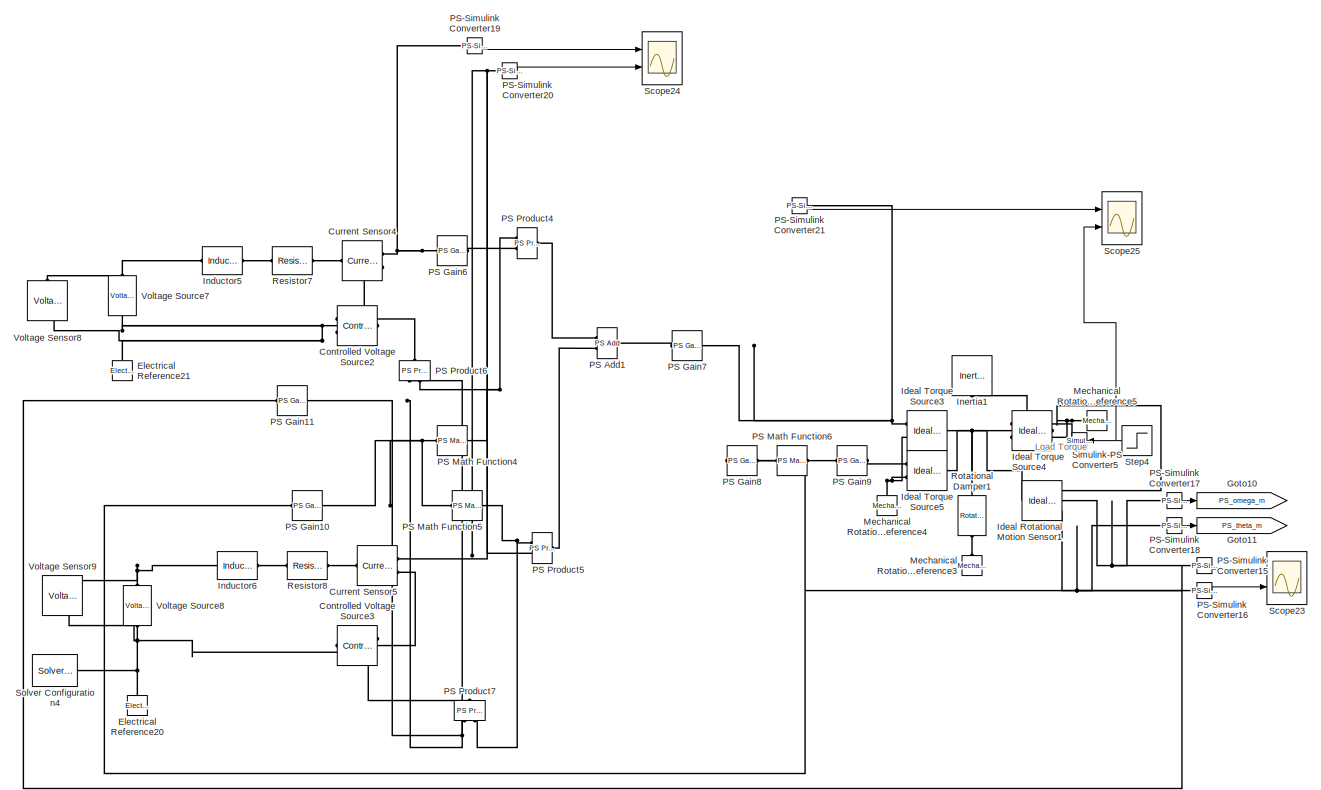
[diagram: root canvas - part 1/36, top center region]
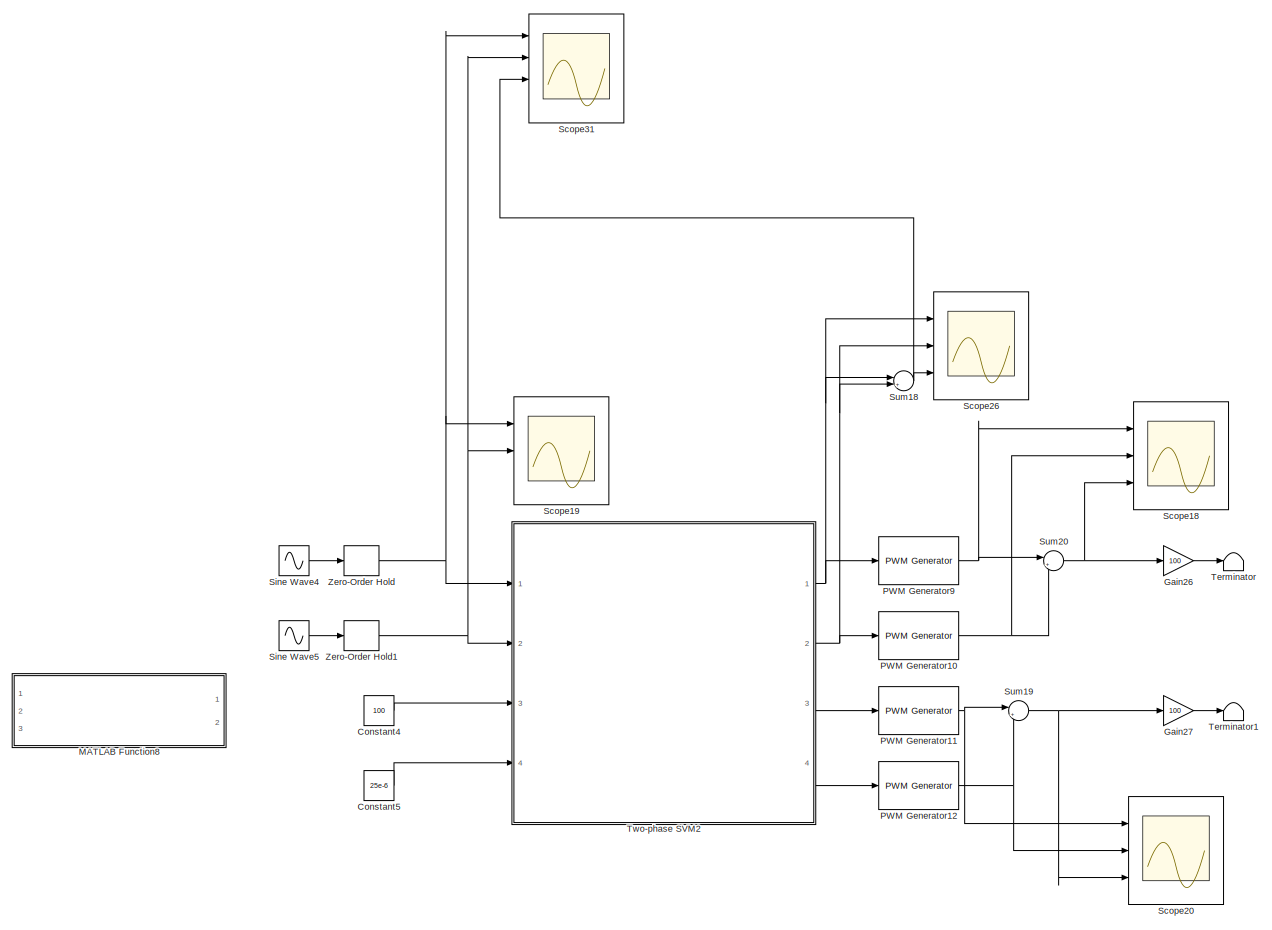
[diagram: root canvas - part 2/36, top center region]
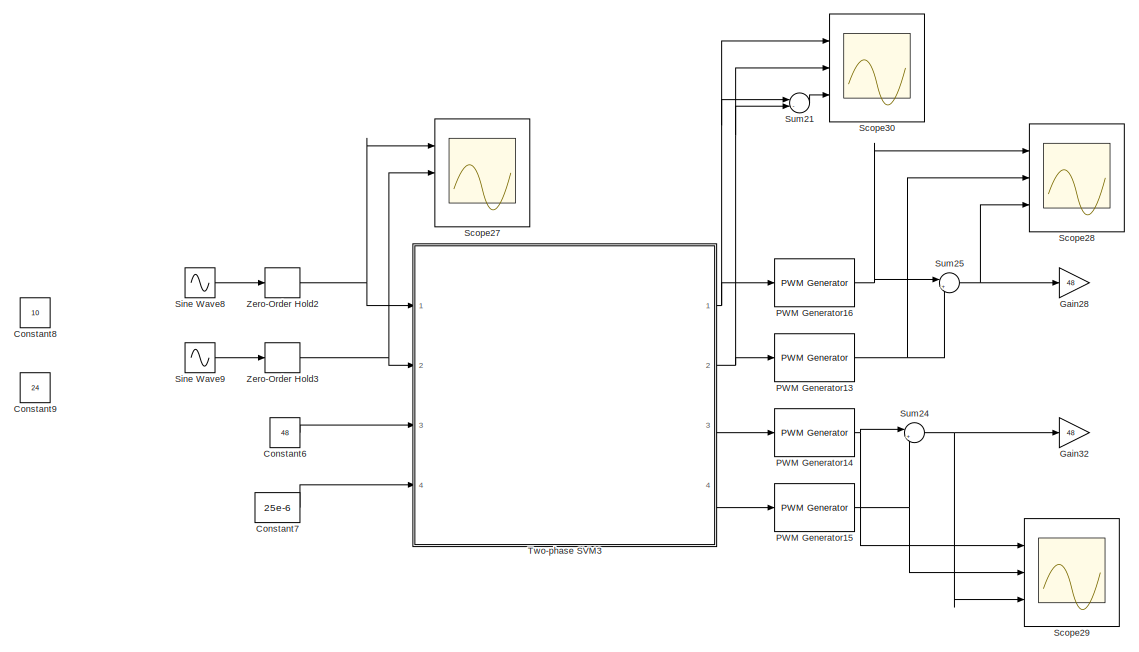
[diagram: root canvas - part 3/36, top left region]
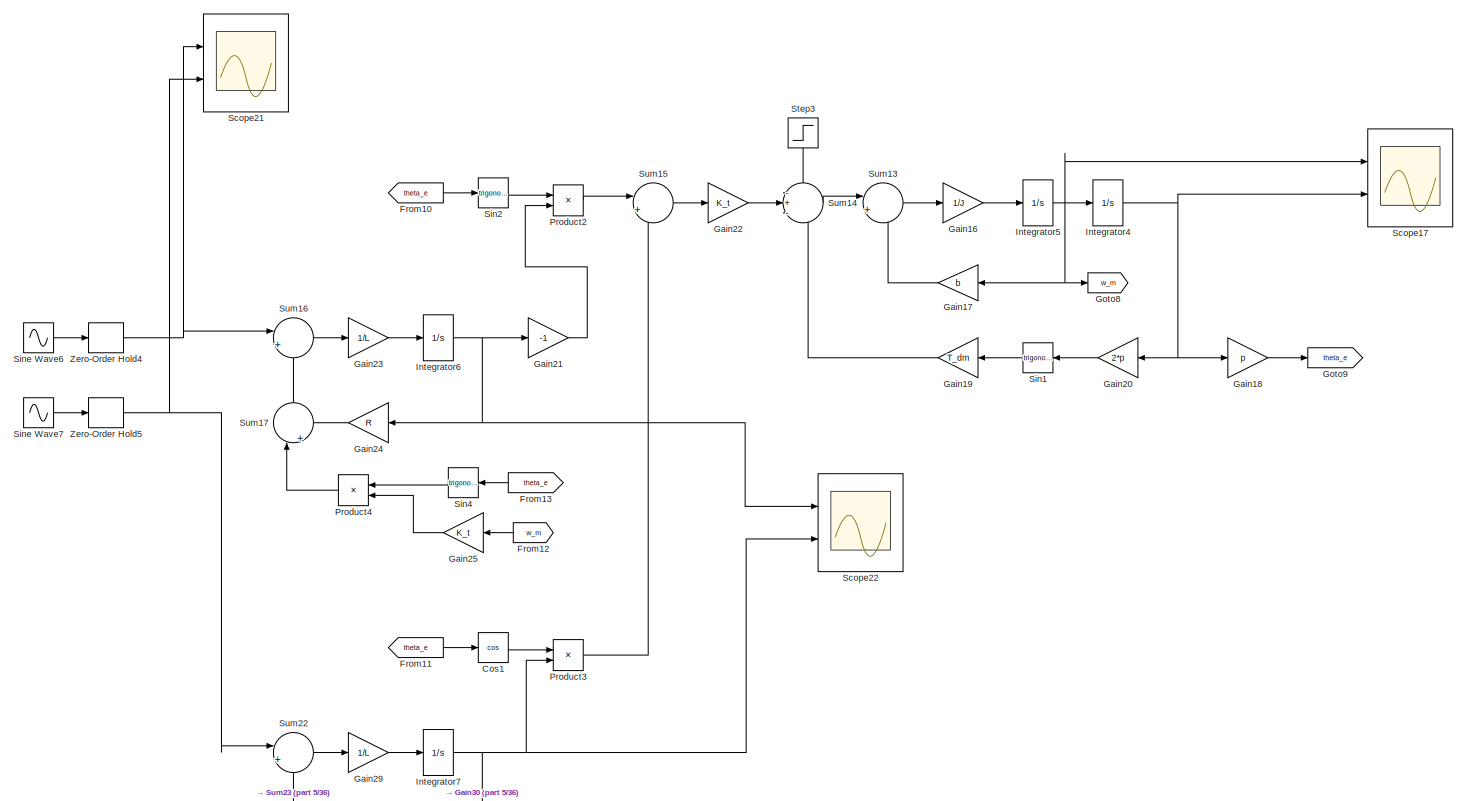
[diagram: root canvas - part 4/36, top center region]
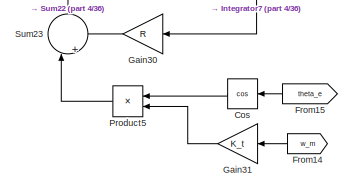
[diagram: root canvas - part 5/36, top center region]
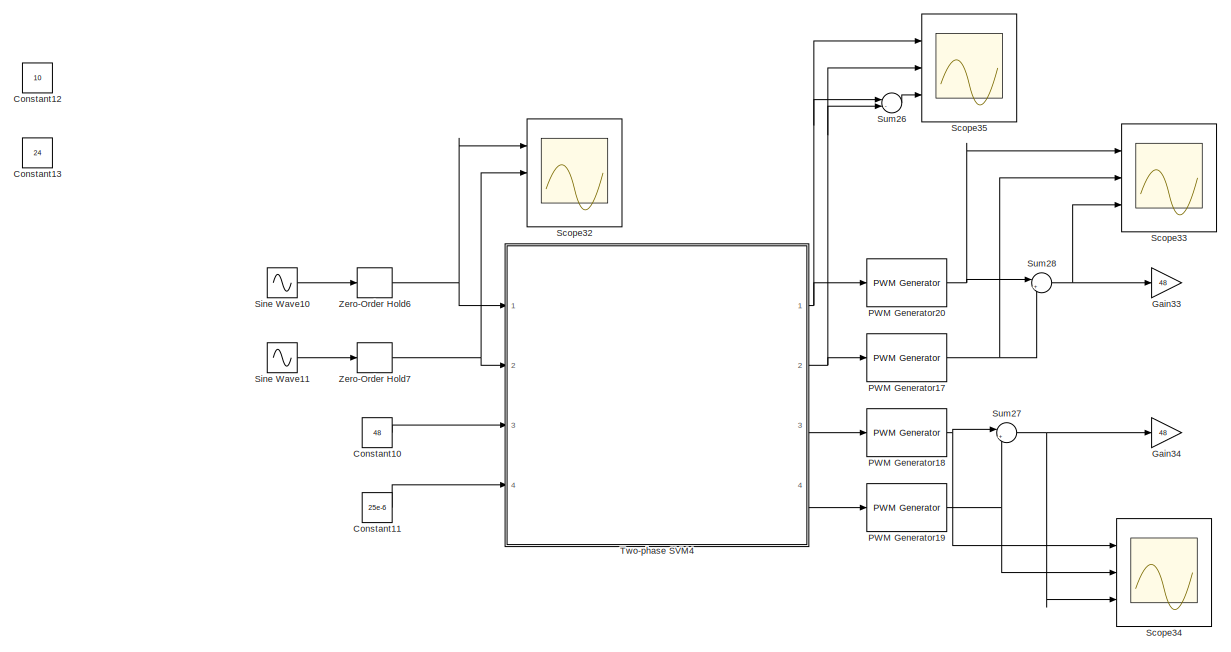
[diagram: root canvas - part 6/36, top center region]
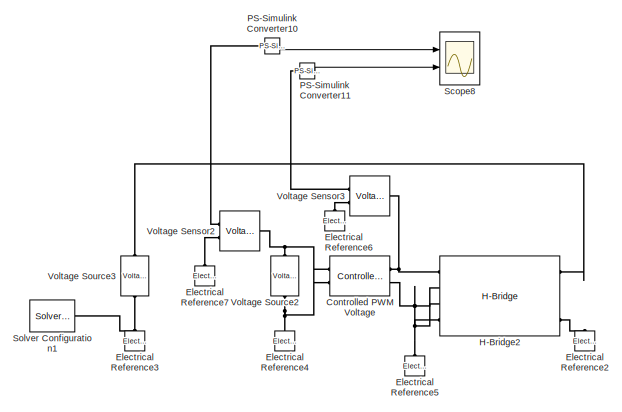
[diagram: root canvas - part 7/36, top left region]
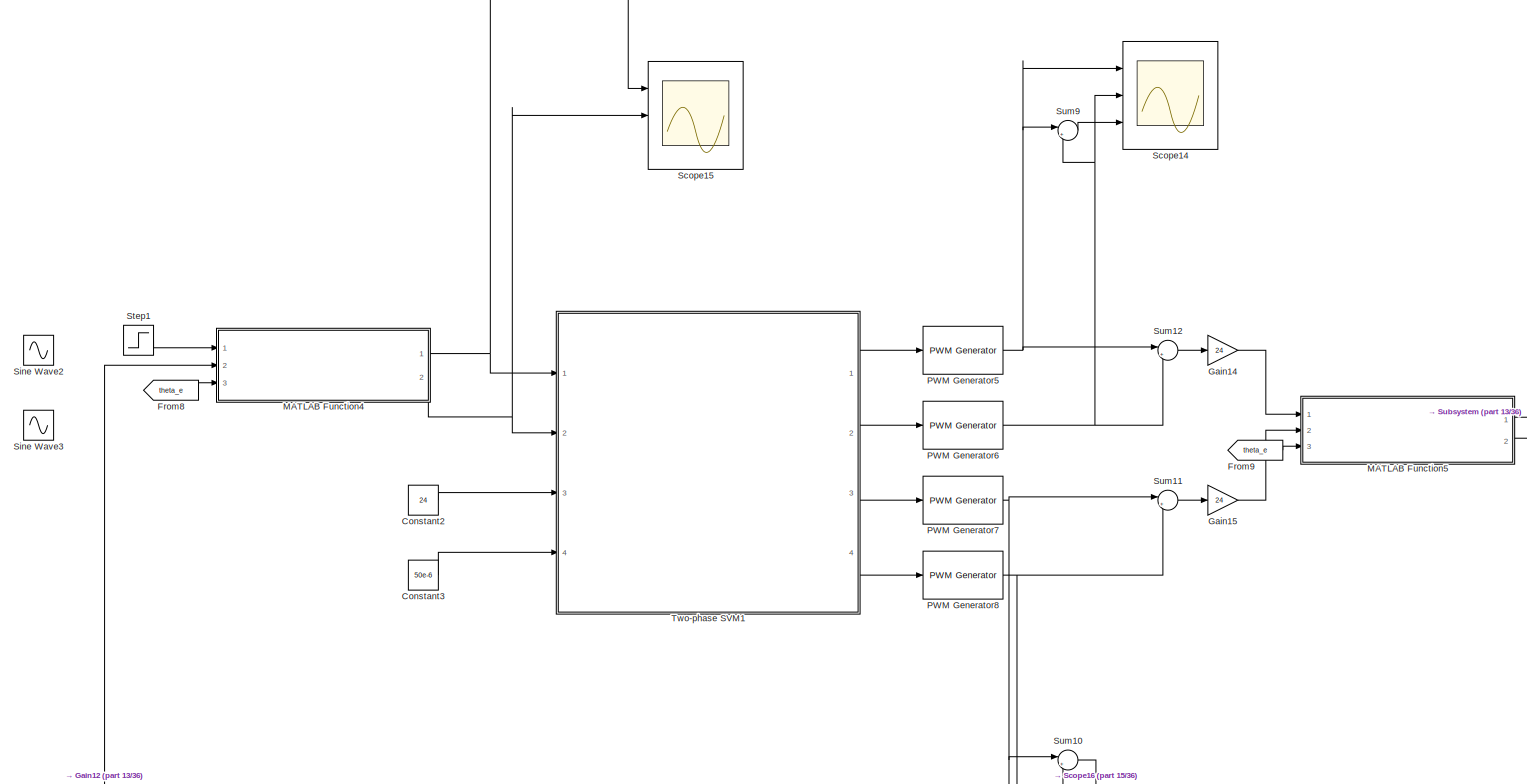
[diagram: root canvas - part 8/36, central region]
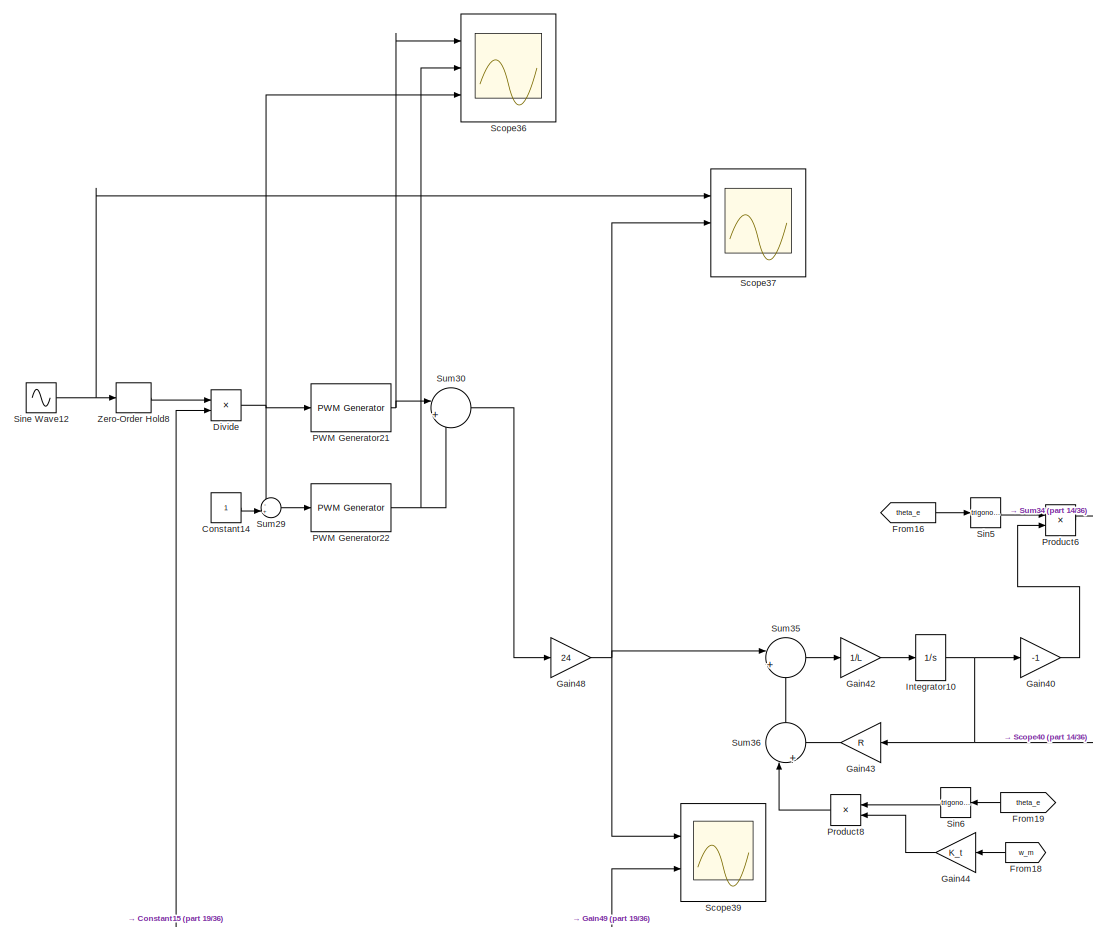
[diagram: root canvas - part 9/36, middle right region]
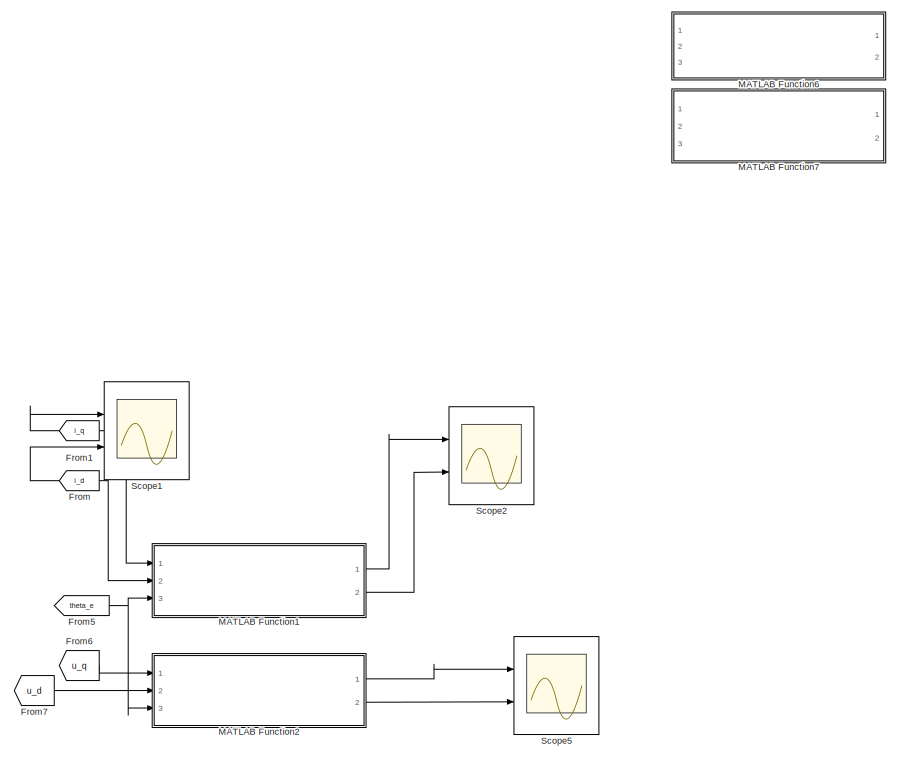
[diagram: root canvas - part 10/36, central region]
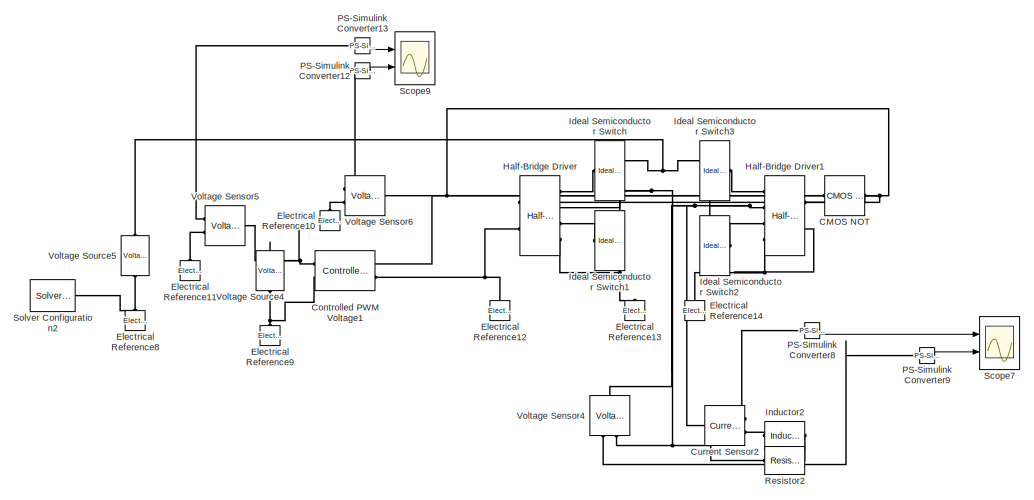
[diagram: root canvas - part 11/36, middle left region]
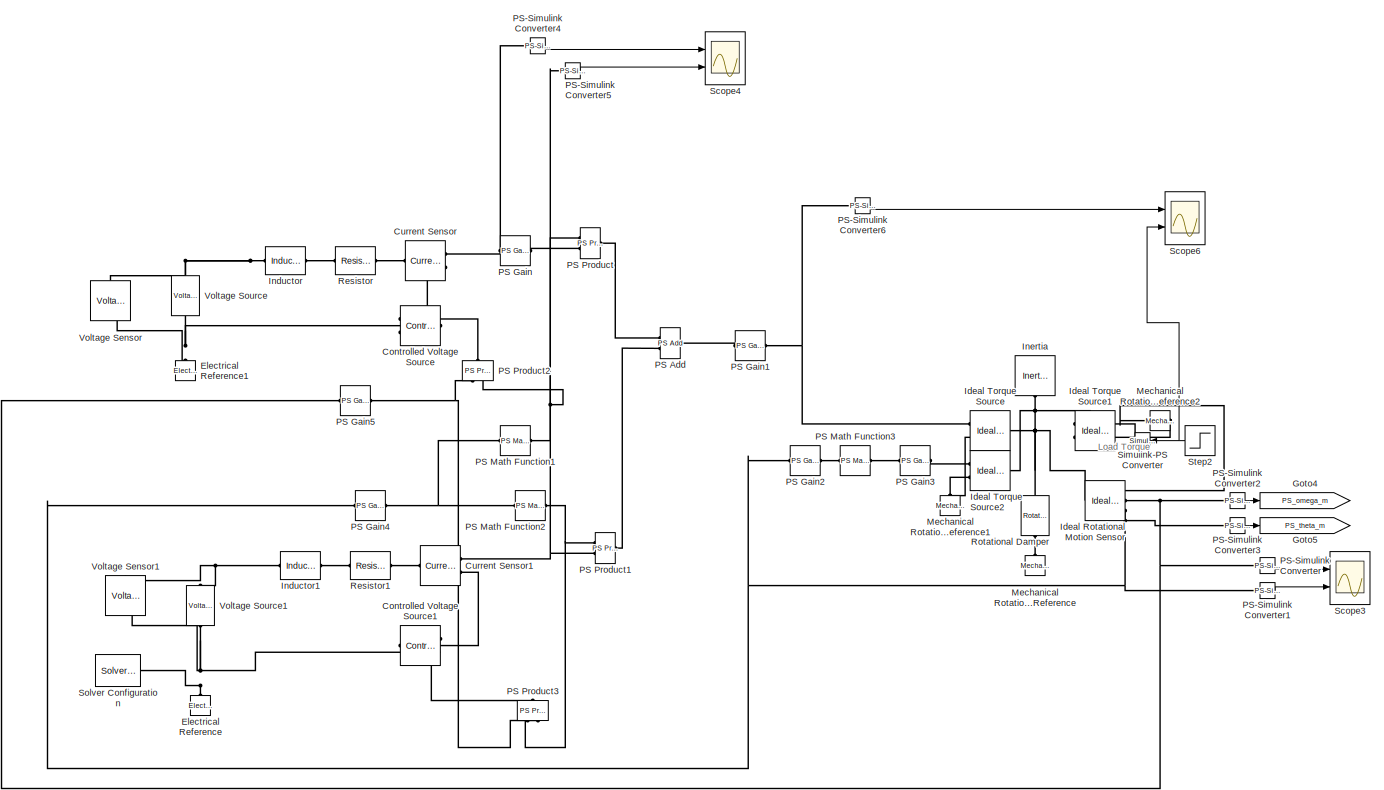
[diagram: root canvas - part 12/36, middle left region]
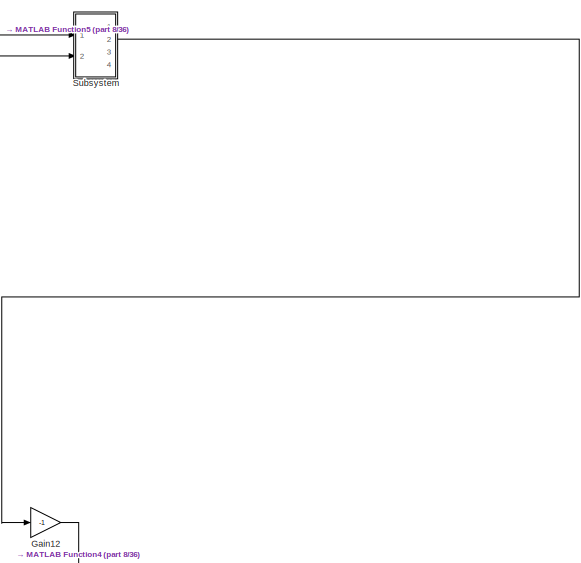
[diagram: root canvas - part 13/36, central region]
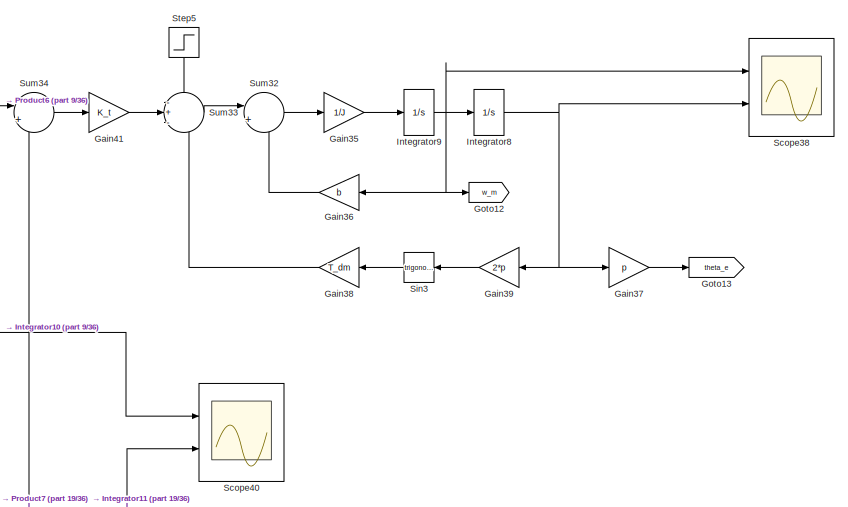
[diagram: root canvas - part 14/36, middle right region]
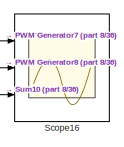
[diagram: root canvas - part 15/36, central region]
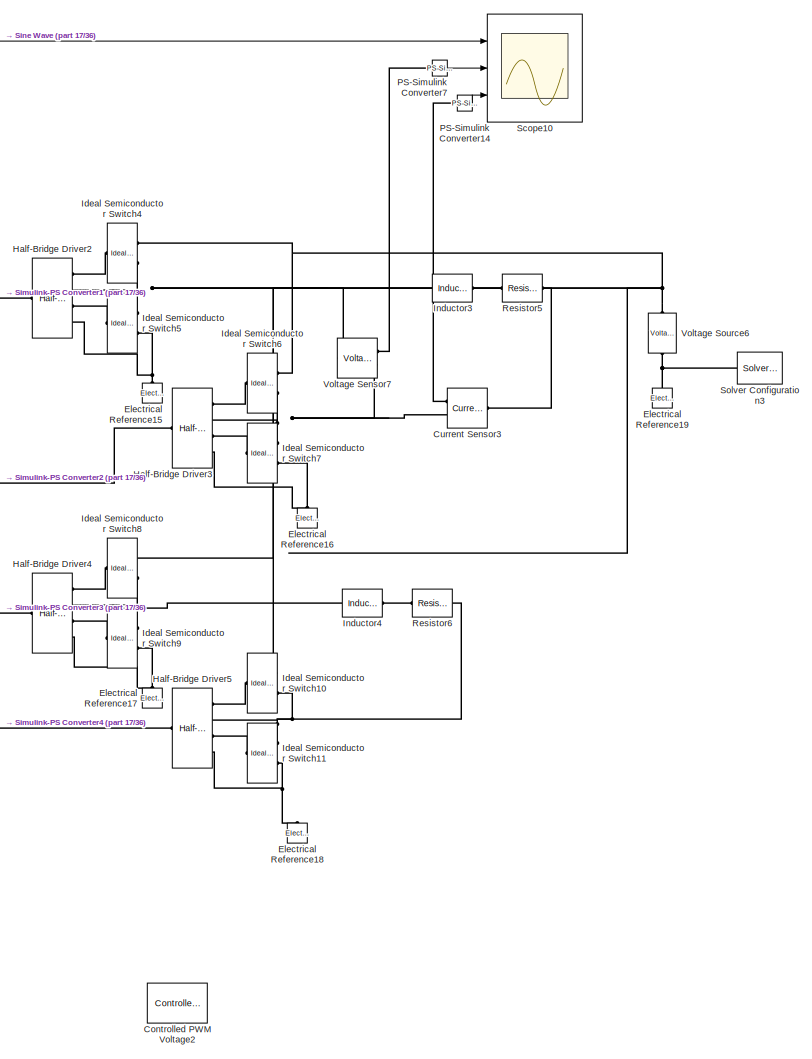
[diagram: root canvas - part 16/36, middle left region]
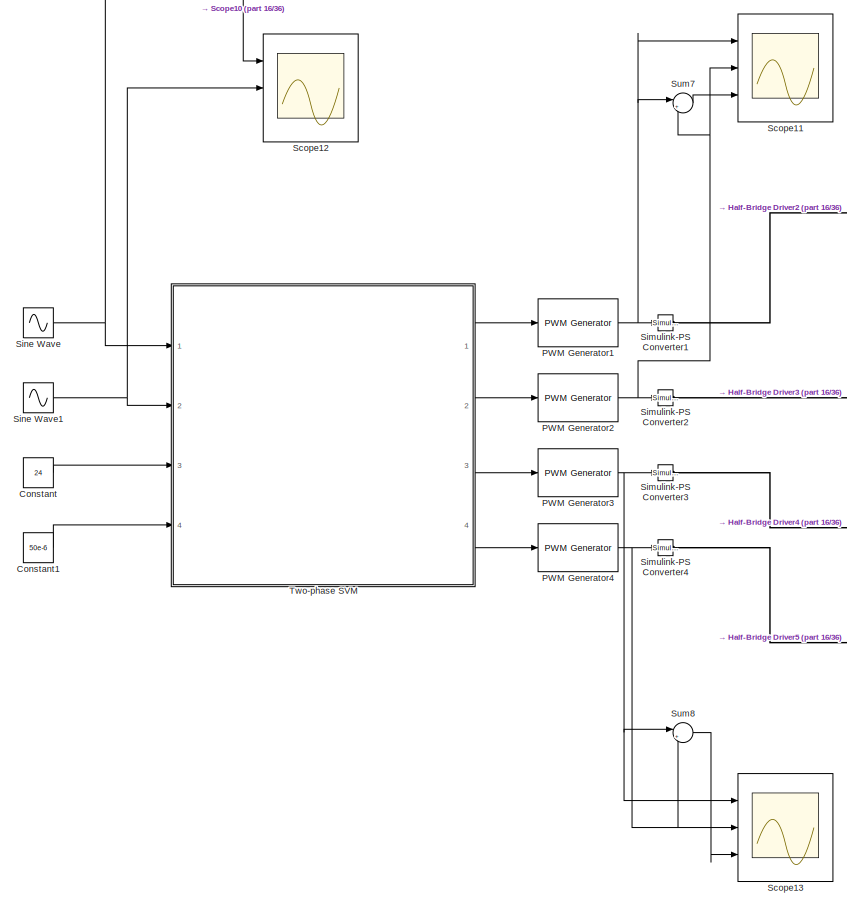
[diagram: root canvas - part 17/36, middle left region]
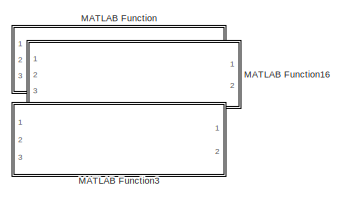
[diagram: root canvas - part 18/36, central region]
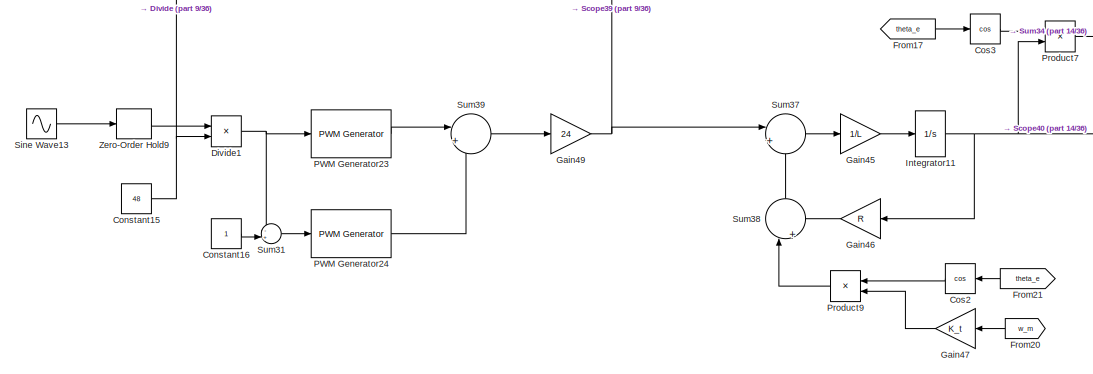
[diagram: root canvas - part 19/36, middle right region]
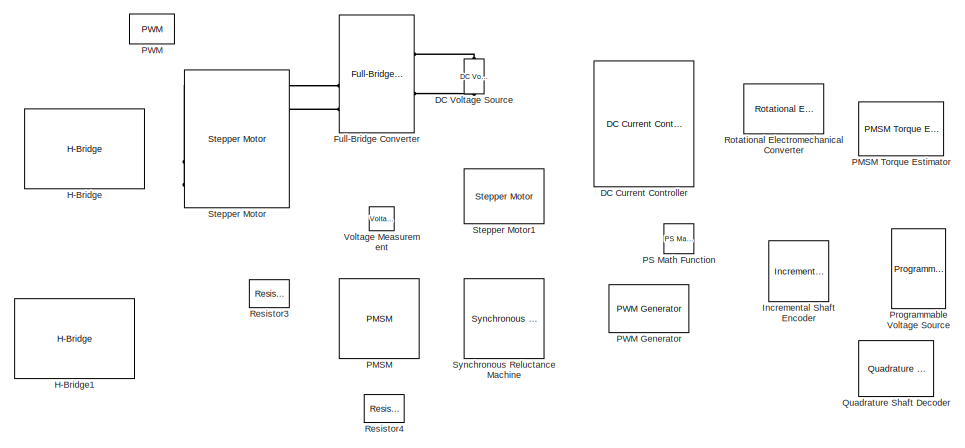
[diagram: root canvas - part 20/36, middle left region]
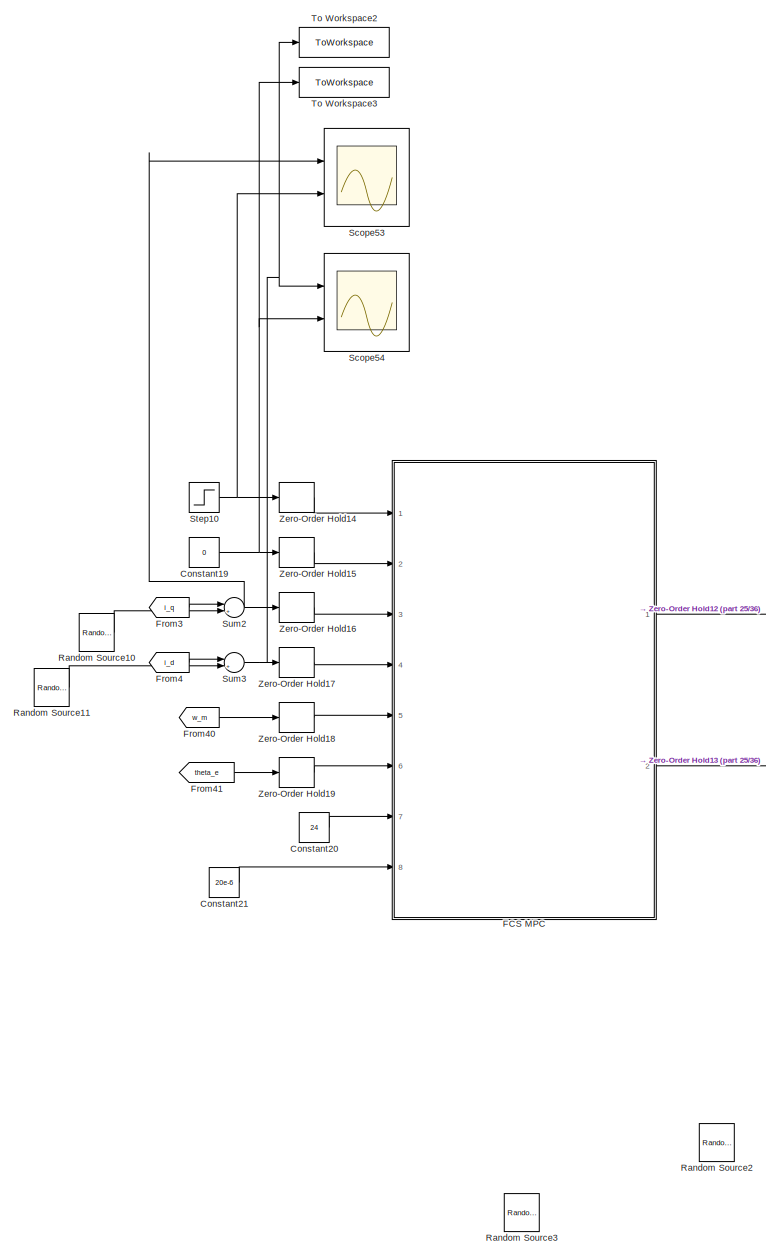
[diagram: root canvas - part 21/36, bottom right region]
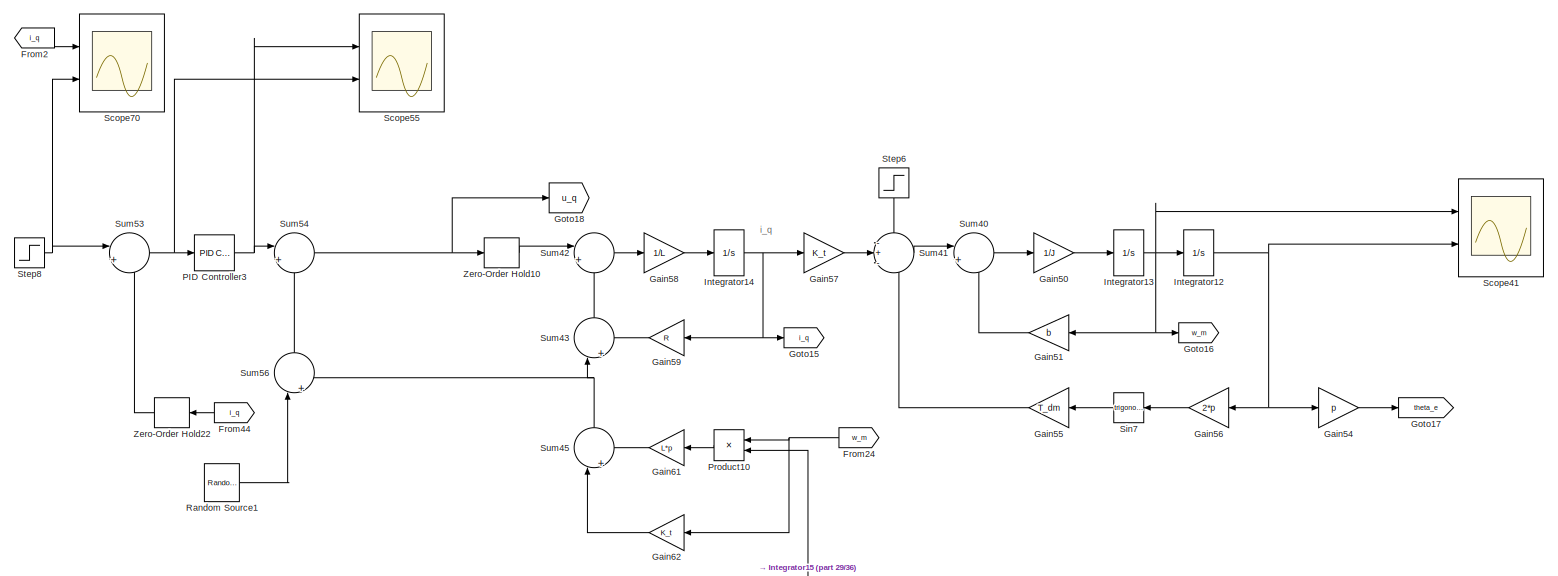
[diagram: root canvas - part 22/36, central region]
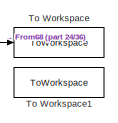
[diagram: root canvas - part 23/36, middle right region]
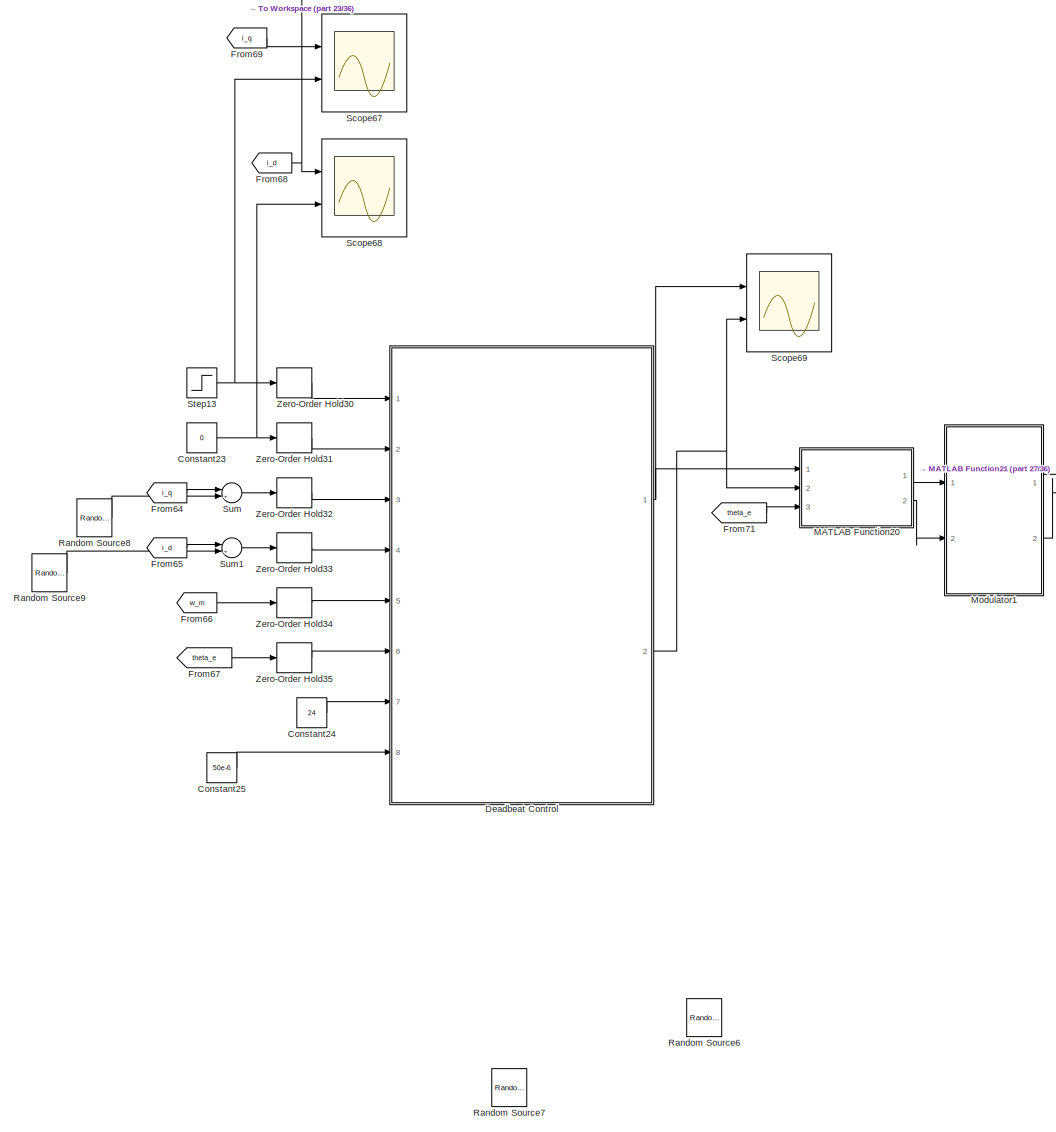
[diagram: root canvas - part 24/36, bottom right region]
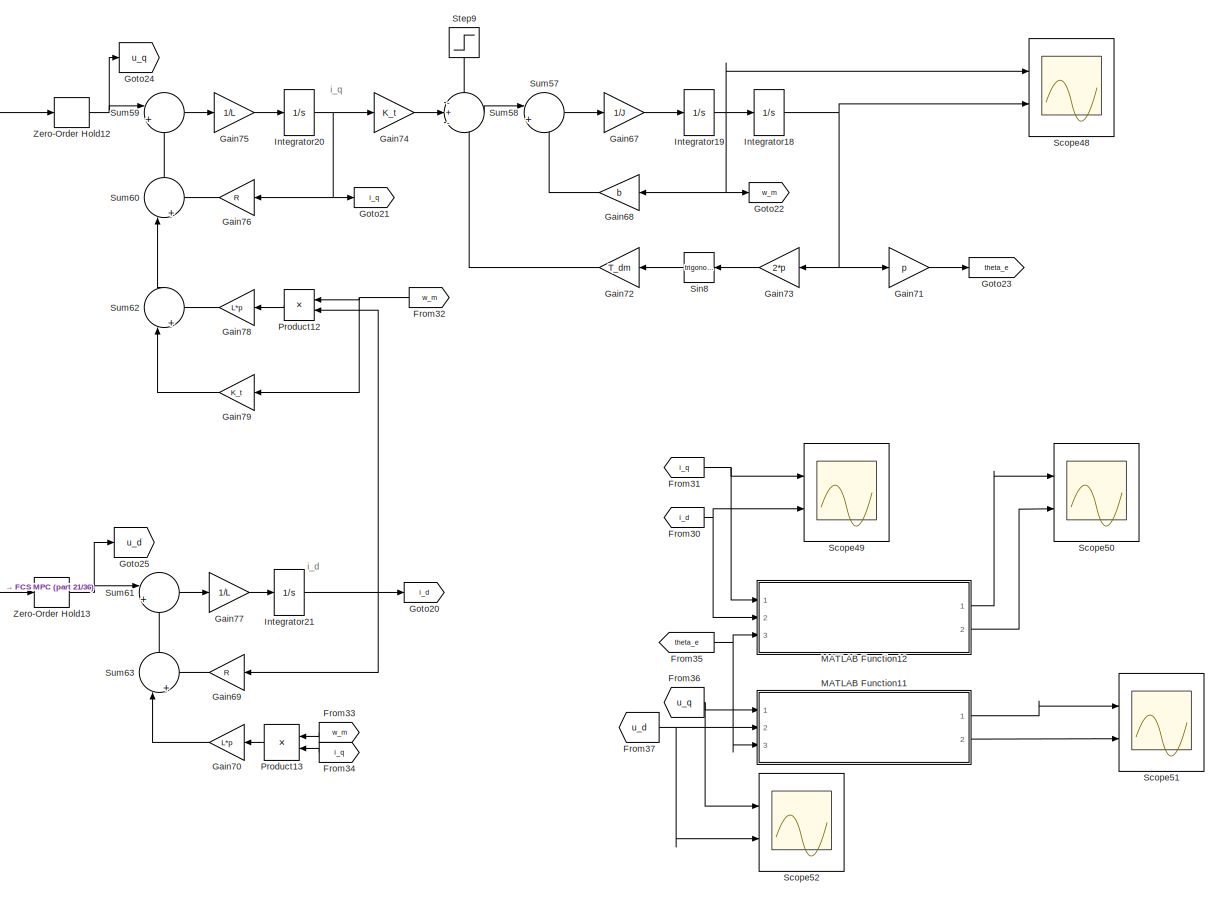
[diagram: root canvas - part 25/36, bottom right region]
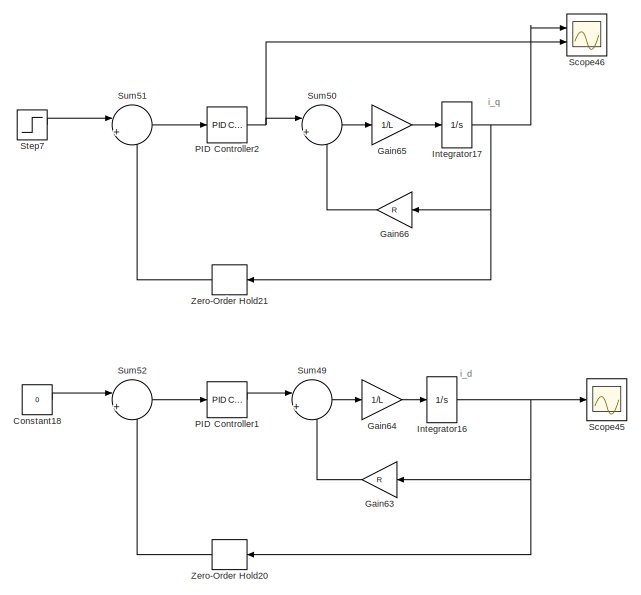
[diagram: root canvas - part 26/36, bottom center region]
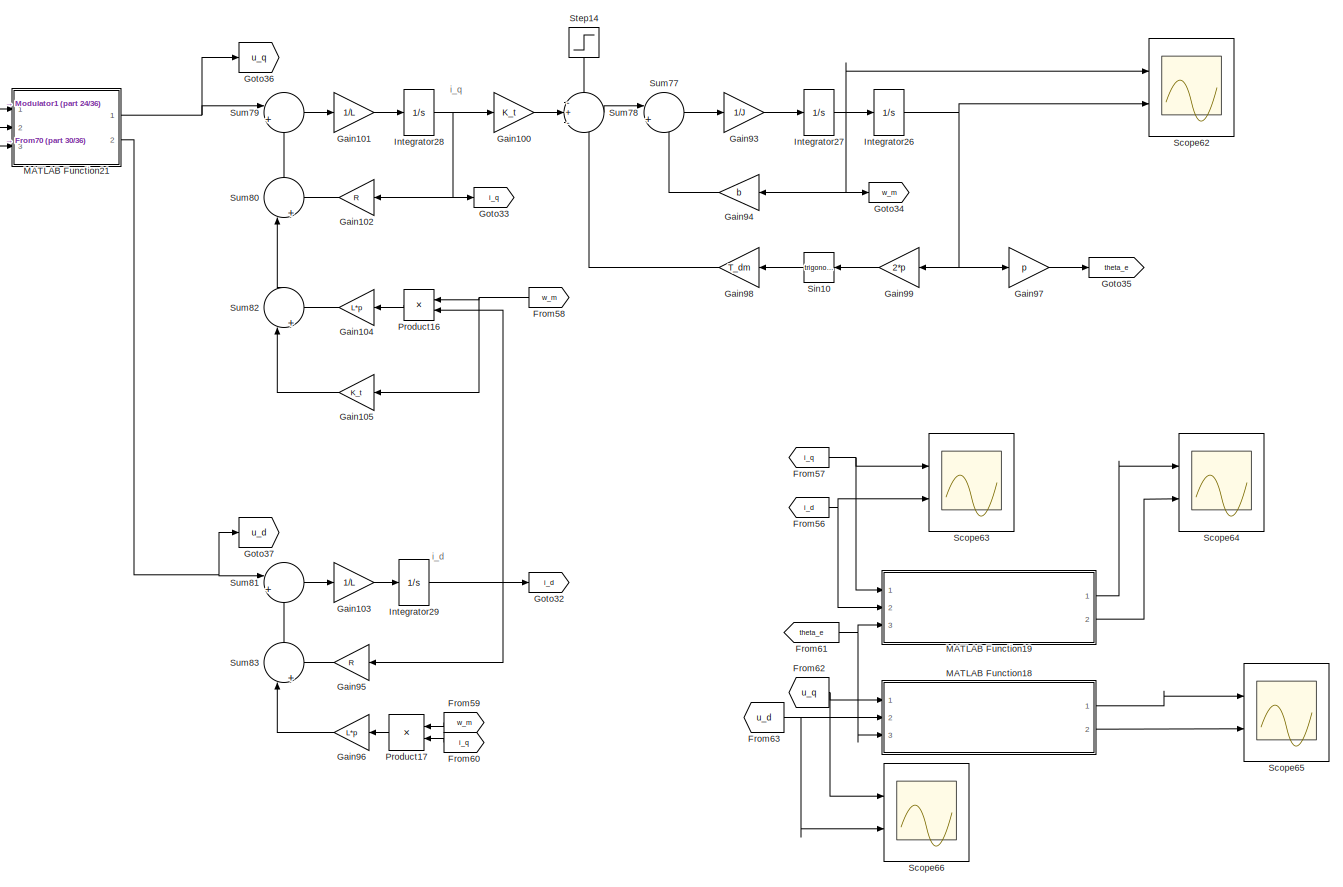
[diagram: root canvas - part 27/36, bottom right region]
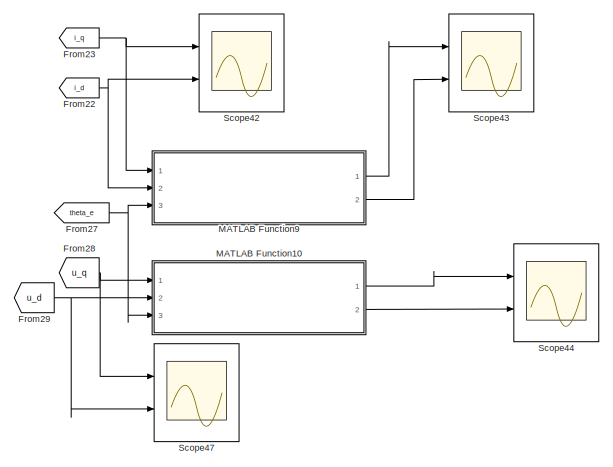
[diagram: root canvas - part 28/36, bottom center region]
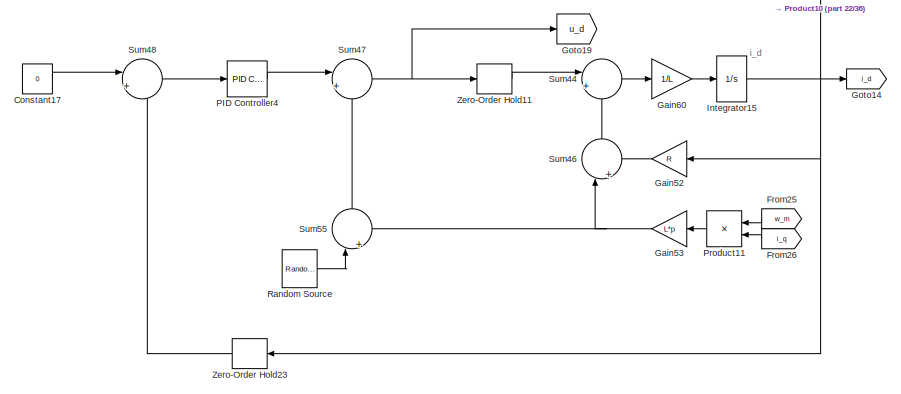
[diagram: root canvas - part 29/36, bottom center region]
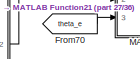
[diagram: root canvas - part 30/36, bottom right region]
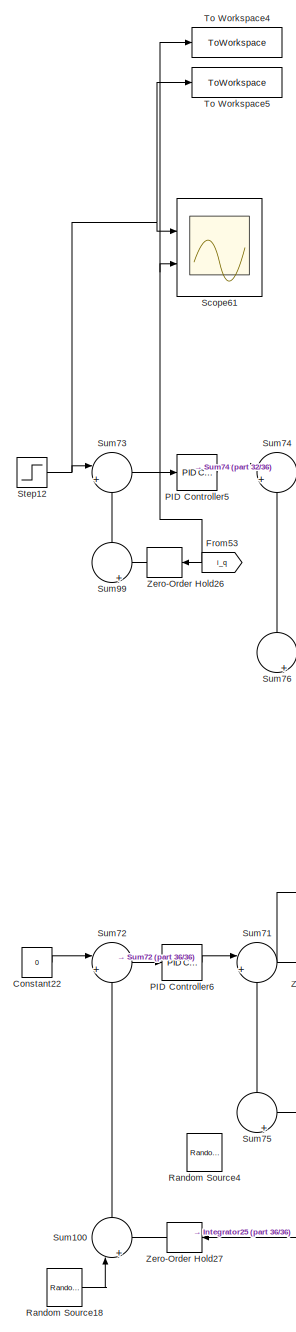
[diagram: root canvas - part 31/36, bottom center region]
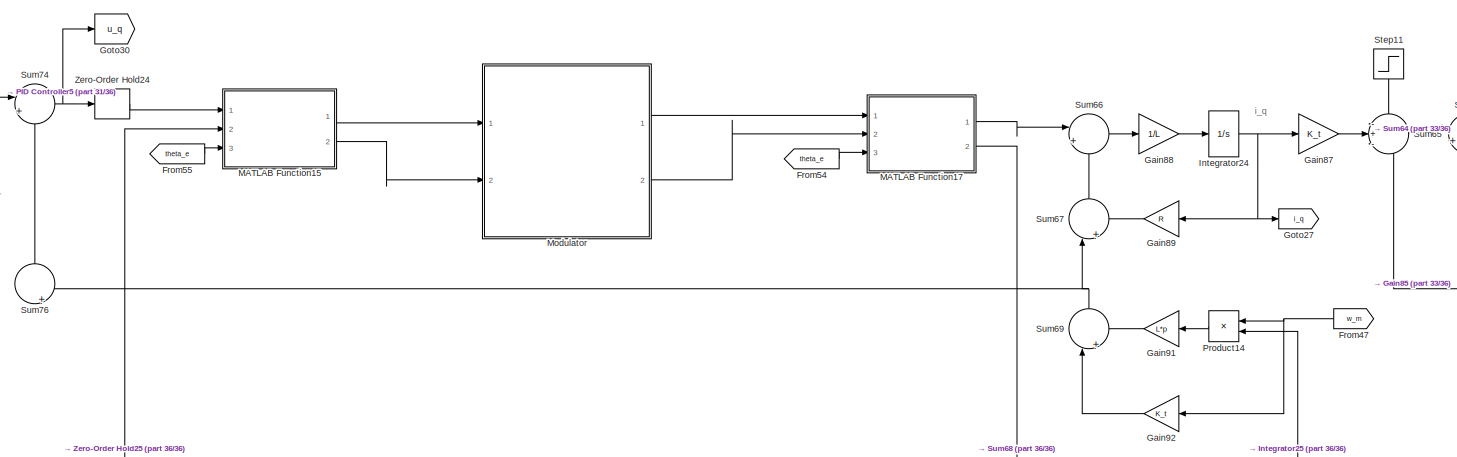
[diagram: root canvas - part 32/36, bottom center region]
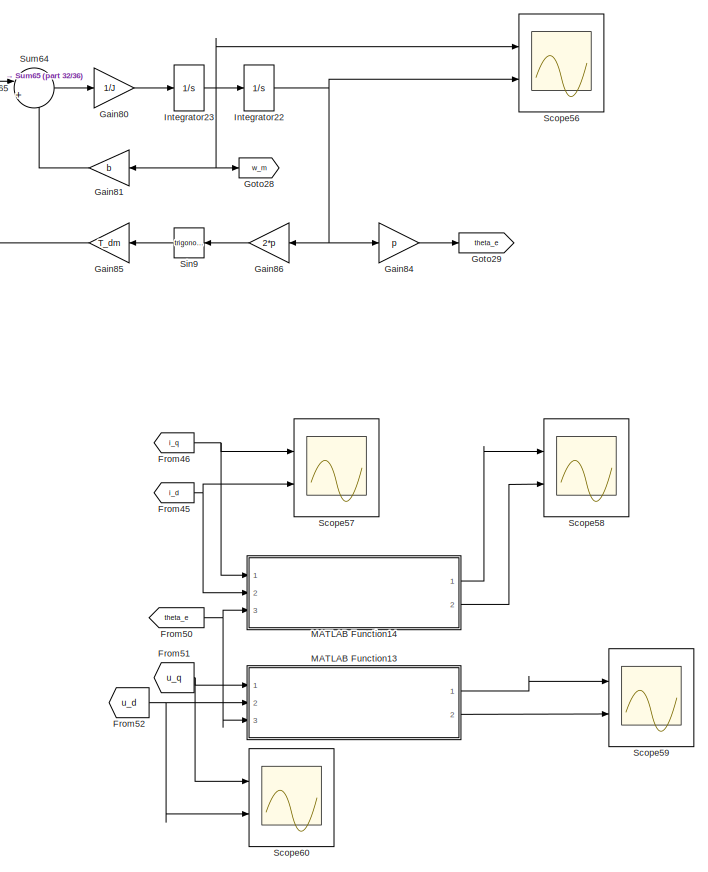
[diagram: root canvas - part 33/36, bottom center region]
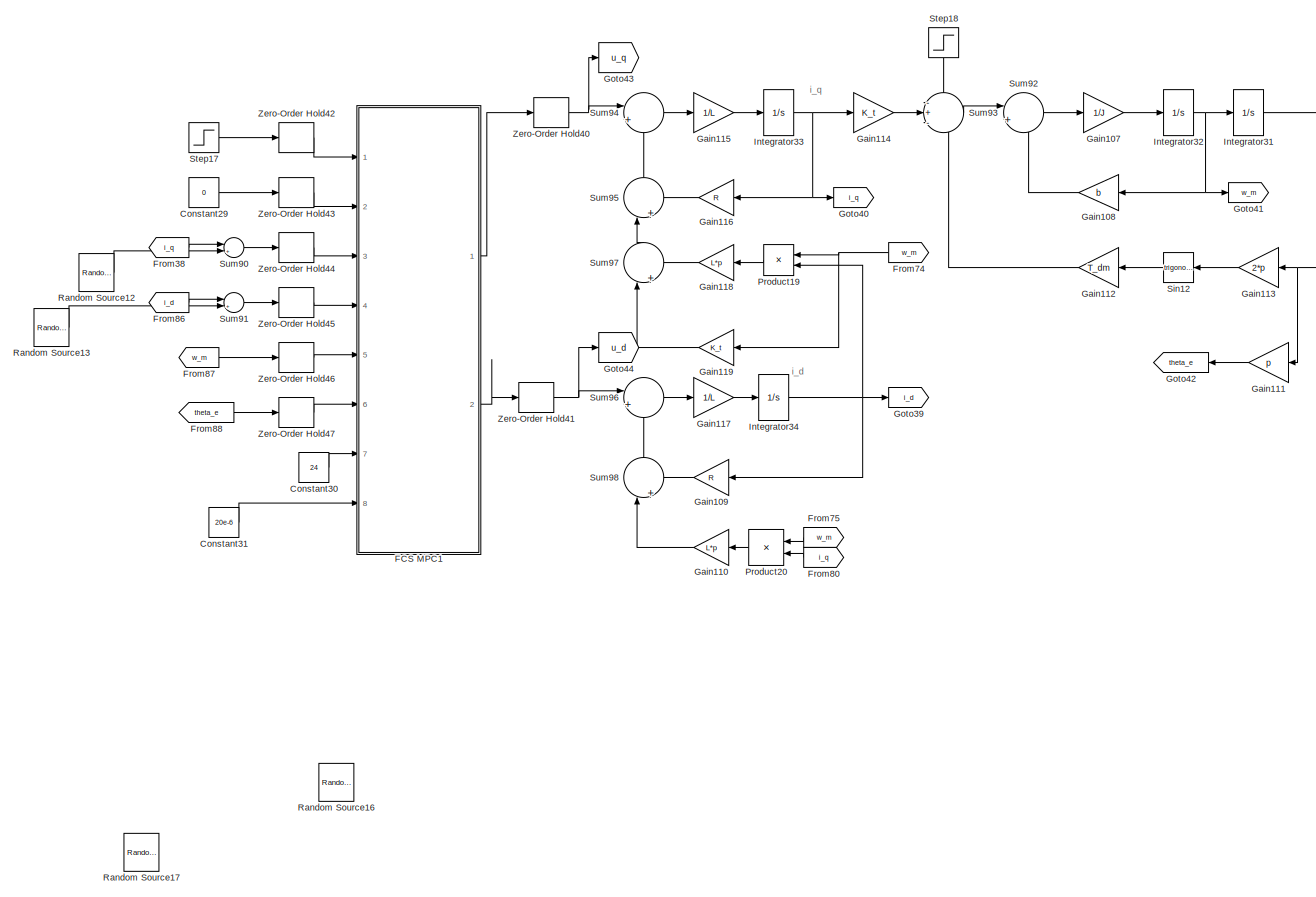
[diagram: root canvas - part 34/36, bottom right region]
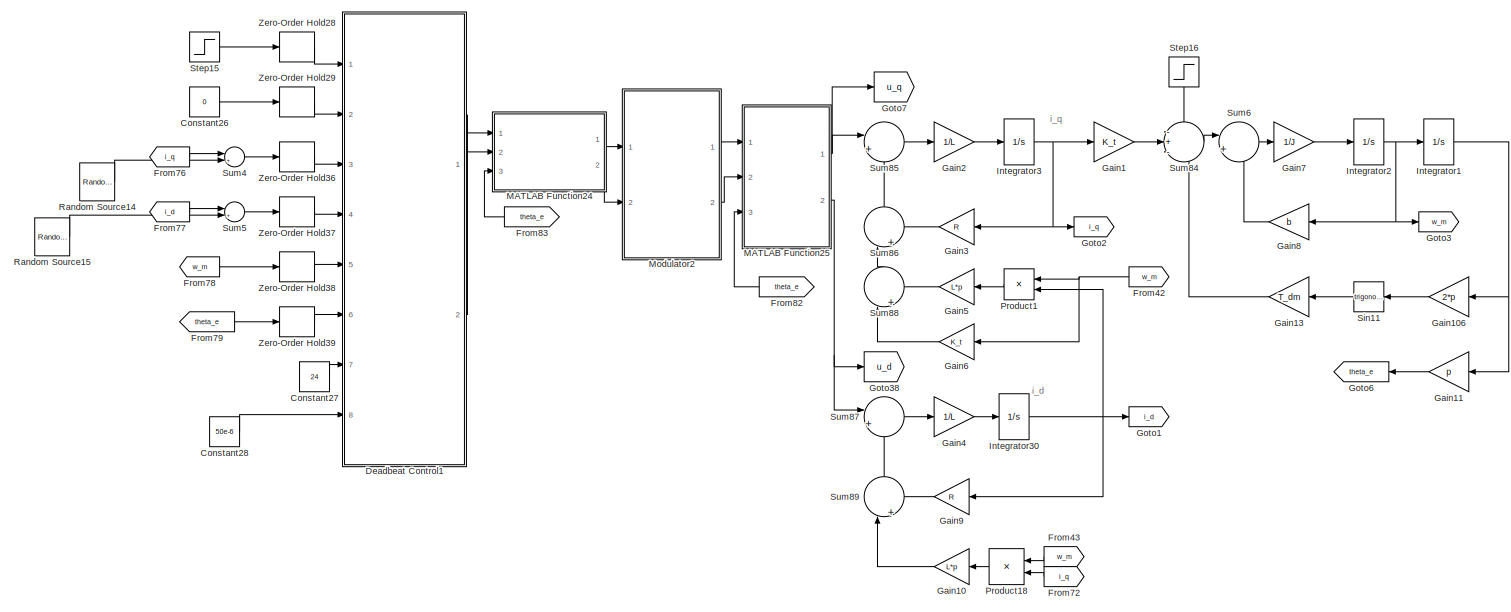
[diagram: root canvas - part 35/36, bottom right region]
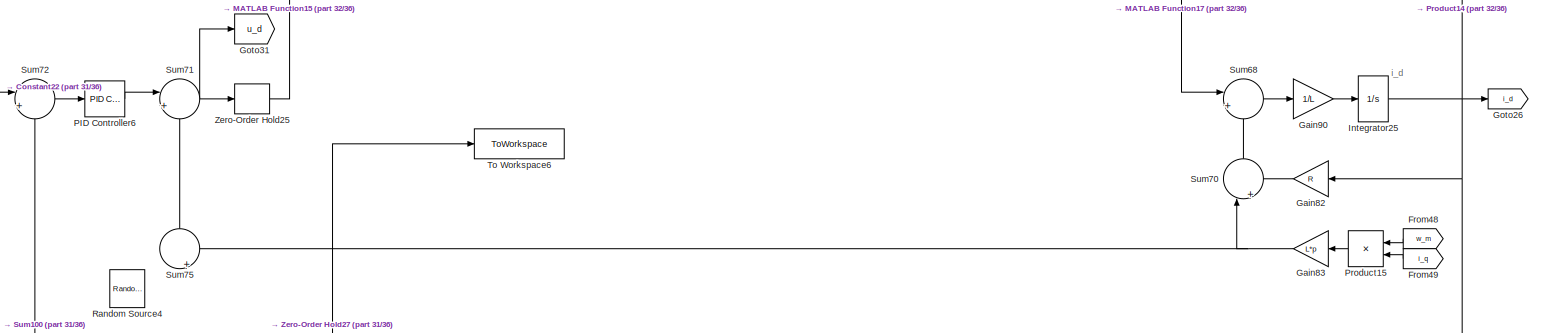
[diagram: root canvas - part 36/36, bottom center region]
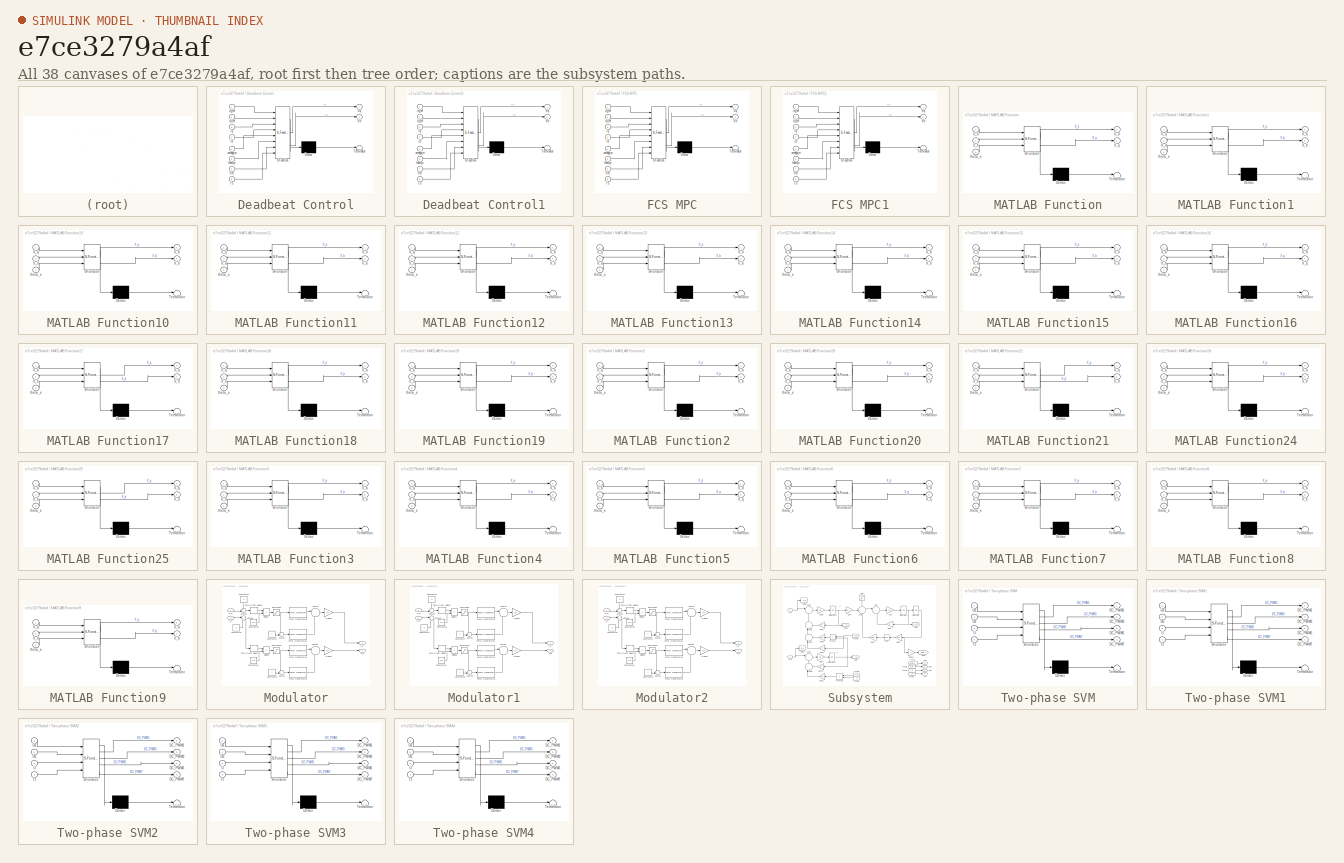
[diagram: thumbnail index - all 38 canvases of the model, root first then tree order]
MODEL slx_e7ce3279a4af
KIND model
CONFIG AbsTol = auto
CONFIG EnableMultiTasking = off
CONFIG FixedStep = 0.0001
CONFIG MaxStep = 0.000005
CONFIG MinStep = auto
CONFIG RelTol = 1e-3
CONFIG SampleTimeConstraint = Unconstrained
CONFIG SolverName = VariableStepAuto
CONFIG StartTime = 0.0
CONFIG StopTime = 1
BLOCK [Reference] CMOS NOT  REF=ee_lib/Integrated Circuits/Logic/CMOS NOT
  Commented = on
  NameLocation = top
  Ports = [0, 0, 0, 0, 0, 1, 1]
  SourceBlock = ee_lib/Integrated Circuits/Logic/CMOS NOT
  SourceProductBaseCode = PS
  SourceType = CMOS NOT
BLOCK [Constant] Constant
  Commented = on
  Value = 24
BLOCK [Constant] Constant1
  Commented = on
  Value = 50e-6
BLOCK [Constant] Constant10
  Commented = on
  Value = 48
BLOCK [Constant] Constant11
  Commented = on
  Value = 25e-6
BLOCK [Constant] Constant12
  Commented = on
  Value = 10
BLOCK [Constant] Constant13
  Commented = on
  Value = 24
BLOCK [Constant] Constant14
  Commented = on
BLOCK [Constant] Constant15
  Commented = on
  Value = 48
BLOCK [Constant] Constant16
  Commented = on
BLOCK [Constant] Constant17
  Commented = on
  Value = 0
BLOCK [Constant] Constant18
  Value = 0
BLOCK [Constant] Constant19
  Commented = on
  Value = 0
BLOCK [Constant] Constant2
  Commented = on
  Value = 24
BLOCK [Constant] Constant20
  Commented = on
  Value = 24
BLOCK [Constant] Constant21
  Commented = on
  Value = 20e-6
BLOCK [Constant] Constant22
  Commented = on
  Value = 0
BLOCK [Constant] Constant23
  Value = 0
BLOCK [Constant] Constant24
  Value = 24
BLOCK [Constant] Constant25
  Value = 50e-6
BLOCK [Constant] Constant26
  Commented = on
  Value = 0
BLOCK [Constant] Constant27
  Commented = on
  Value = 24
BLOCK [Constant] Constant28
  Commented = on
  Value = 50e-6
BLOCK [Constant] Constant29
  Commented = on
  Value = 0
BLOCK [Constant] Constant3
  Commented = on
  Value = 50e-6
BLOCK [Constant] Constant30
  Commented = on
  Value = 24
BLOCK [Constant] Constant31
  Commented = on
  Value = 20e-6
BLOCK [Constant] Constant4
  Commented = on
  Value = 100
BLOCK [Constant] Constant5
  Commented = on
  Value = 25e-6
BLOCK [Constant] Constant6
  Commented = on
  Value = 48
BLOCK [Constant] Constant7
  Commented = on
  Value = 25e-6
BLOCK [Constant] Constant8
  Commented = on
  Value = 10
BLOCK [Constant] Constant9
  Commented = on
  Value = 24
BLOCK [Reference] Controlled PWM Voltage  REF=ee_lib/Integrated Circuits/Controlled PWM
Voltage
  Commented = on
  Ports = [0, 0, 0, 0, 0, 2, 2]
  SourceBlock = ee_lib/Integrated Circuits/Controlled PWM\nVoltage
  SourceProductBaseCode = PS
  SourceType = Controlled PWM\nVoltage
BLOCK [Reference] Controlled PWM Voltage1  REF=ee_lib/Integrated Circuits/Controlled PWM
Voltage
  Commented = on
  Ports = [0, 0, 0, 0, 0, 2, 2]
  SourceBlock = ee_lib/Integrated Circuits/Controlled PWM\nVoltage
  SourceProductBaseCode = PS
  SourceType = Controlled PWM\nVoltage
BLOCK [Reference] Controlled PWM Voltage2  REF=ee_lib/Integrated Circuits/Controlled PWM
Voltage
  Commented = on
  Ports = [0, 0, 0, 0, 0, 2, 2]
  SourceBlock = ee_lib/Integrated Circuits/Controlled PWM\nVoltage
  SourceProductBaseCode = PS
  SourceType = Controlled PWM\nVoltage
BLOCK [Reference] Controlled Voltage Source  REF=fl_lib/Electrical/Electrical Sources/Controlled Voltage
Source
  Commented = on
  NameLocation = top
  Ports = [0, 0, 0, 0, 0, 1, 2]
  SourceBlock = fl_lib/Electrical/Electrical Sources/Controlled Voltage\nSource
  SourceProductBaseCode = SS
  SourceType = Controlled Voltage\nSource
BLOCK [Reference] Controlled Voltage Source1  REF=fl_lib/Electrical/Electrical Sources/Controlled Voltage
Source
  Commented = on
  Ports = [0, 0, 0, 0, 0, 1, 2]
  SourceBlock = fl_lib/Electrical/Electrical Sources/Controlled Voltage\nSource
  SourceProductBaseCode = SS
  SourceType = Controlled Voltage\nSource
BLOCK [Reference] Controlled Voltage Source2  REF=fl_lib/Electrical/Electrical Sources/Controlled Voltage
Source
  Commented = on
  NameLocation = top
  Ports = [0, 0, 0, 0, 0, 1, 2]
  SourceBlock = fl_lib/Electrical/Electrical Sources/Controlled Voltage\nSource
  SourceProductBaseCode = SS
  SourceType = Controlled Voltage\nSource
BLOCK [Reference] Controlled Voltage Source3  REF=fl_lib/Electrical/Electrical Sources/Controlled Voltage
Source
  Commented = on
  Ports = [0, 0, 0, 0, 0, 1, 2]
  SourceBlock = fl_lib/Electrical/Electrical Sources/Controlled Voltage\nSource
  SourceProductBaseCode = SS
  SourceType = Controlled Voltage\nSource
BLOCK [Trigonometry] Cos
  Commented = on
  NameLocation = top
  Operator = cos
  Ports = [1, 1]
BLOCK [Trigonometry] Cos1
  Commented = on
  Operator = cos
  Ports = [1, 1]
BLOCK [Trigonometry] Cos2
  Commented = on
  NameLocation = top
  Operator = cos
  Ports = [1, 1]
BLOCK [Trigonometry] Cos3
  Commented = on
  Operator = cos
  Ports = [1, 1]
BLOCK [Reference] Current Sensor  REF=fl_lib/Electrical/Electrical Sensors/Current Sensor
  Commented = on
  Ports = [0, 0, 0, 0, 0, 1, 2]
  SourceBlock = fl_lib/Electrical/Electrical Sensors/Current Sensor
  SourceProductBaseCode = SS
  SourceType = Current Sensor
BLOCK [Reference] Current Sensor1  REF=fl_lib/Electrical/Electrical Sensors/Current Sensor
  Commented = on
  Ports = [0, 0, 0, 0, 0, 1, 2]
  SourceBlock = fl_lib/Electrical/Electrical Sensors/Current Sensor
  SourceProductBaseCode = SS
  SourceType = Current Sensor
BLOCK [Reference] Current Sensor2  REF=fl_lib/Electrical/Electrical Sensors/Current Sensor
  Commented = on
  Ports = [0, 0, 0, 0, 0, 1, 2]
  SourceBlock = fl_lib/Electrical/Electrical Sensors/Current Sensor
  SourceProductBaseCode = SS
  SourceType = Current Sensor
BLOCK [Reference] Current Sensor3  REF=fl_lib/Electrical/Electrical Sensors/Current Sensor
  Commented = on
  NameLocation = top
  Ports = [0, 0, 0, 0, 0, 1, 2]
  SourceBlock = fl_lib/Electrical/Electrical Sensors/Current Sensor
  SourceProductBaseCode = SS
  SourceType = Current Sensor
BLOCK [Reference] Current Sensor4  REF=fl_lib/Electrical/Electrical Sensors/Current Sensor
  Commented = on
  Ports = [0, 0, 0, 0, 0, 1, 2]
  SourceBlock = fl_lib/Electrical/Electrical Sensors/Current Sensor
  SourceProductBaseCode = SS
  SourceType = Current Sensor
BLOCK [Reference] Current Sensor5  REF=fl_lib/Electrical/Electrical Sensors/Current Sensor
  Commented = on
  Ports = [0, 0, 0, 0, 0, 1, 2]
  SourceBlock = fl_lib/Electrical/Electrical Sensors/Current Sensor
  SourceProductBaseCode = SS
  SourceType = Current Sensor
BLOCK [Reference] DC Current Controller  REF=eeDcCurrentController/DC Current Controller
  Commented = on
  Ports = [4, 1]
  SourceBlock = eeDcCurrentController/DC Current Controller
  SourceProductBaseCode = PS
  SourceType = DC Current Controller
BLOCK [Reference] DC Voltage Source  REF=powerlib/Electrical
Sources/DC Voltage Source
  Commented = on
  NameLocation = right
  Ports = [0, 0, 0, 0, 0, 1, 1]
  SourceBlock = powerlib/Electrical\nSources/DC Voltage Source
  SourceProductBaseCode = PS
  SourceType = DC Voltage Source
BLOCK [SubSystem] Deadbeat Control
  ErrorFcn = Stateflow.Translate.translate
  PermitHierarchicalResolution = ExplicitOnly
  Ports = [8, 2]
  RequestExecContextInheritance = off
  SFBlockType = MATLAB Function
  TreatAsAtomicUnit = on
BLOCK [Demux] Deadbeat Control/ Demux 
  Outputs = 1
  Ports = [1, 1]
BLOCK [S-Function] Deadbeat Control/ SFunction 
  EnableBusSupport = on
  FunctionName = sf_sfun
  Parameters = K_t,L,R,p
  PortCounts = [8 3]
  Ports = [8, 3]
  SFcnIsStateOwnerBlock = off
  SFunctionDeploymentMode = off
  Tag = Stateflow S-Function 25
BLOCK [Terminator] Deadbeat Control/ Terminator 
BLOCK [Inport] Deadbeat Control/Ts
  Port = 8
BLOCK [Inport] Deadbeat Control/Vcc
  Port = 7
BLOCK [Outport] Deadbeat Control/Vd
  Port = 2
BLOCK [Outport] Deadbeat Control/Vq
BLOCK [Inport] Deadbeat Control/id
  Port = 4
BLOCK [Inport] Deadbeat Control/id_ref
  Port = 2
BLOCK [Inport] Deadbeat Control/iq
  Port = 3
BLOCK [Inport] Deadbeat Control/iq_ref
BLOCK [Inport] Deadbeat Control/omega_m
  Port = 5
BLOCK [Inport] Deadbeat Control/theta_e
  Port = 6
BLOCK [SubSystem] Deadbeat Control1
  Commented = on
  ErrorFcn = Stateflow.Translate.translate
  PermitHierarchicalResolution = ExplicitOnly
  Ports = [8, 2]
  RequestExecContextInheritance = off
  SFBlockType = MATLAB Function
  TreatAsAtomicUnit = on
BLOCK [Demux] Deadbeat Control1/ Demux 
  Outputs = 1
  Ports = [1, 1]
BLOCK [S-Function] Deadbeat Control1/ SFunction 
  EnableBusSupport = on
  FunctionName = sf_sfun
  Parameters = K_t,L,R,p
  PortCounts = [8 3]
  Ports = [8, 3]
  SFcnIsStateOwnerBlock = off
  SFunctionDeploymentMode = off
  Tag = Stateflow S-Function 30
BLOCK [Terminator] Deadbeat Control1/ Terminator 
BLOCK [Inport] Deadbeat Control1/Ts
  Port = 8
BLOCK [Inport] Deadbeat Control1/Vcc
  Port = 7
BLOCK [Outport] Deadbeat Control1/Vd
  Port = 2
BLOCK [Outport] Deadbeat Control1/Vq
BLOCK [Inport] Deadbeat Control1/id
  Port = 4
BLOCK [Inport] Deadbeat Control1/id_ref
  Port = 2
BLOCK [Inport] Deadbeat Control1/iq
  Port = 3
BLOCK [Inport] Deadbeat Control1/iq_ref
BLOCK [Inport] Deadbeat Control1/omega_m
  Port = 5
BLOCK [Inport] Deadbeat Control1/theta_e
  Port = 6
BLOCK [Product] Divide
  Commented = on
  Inputs = */
  Ports = [2, 1]
BLOCK [Product] Divide1
  Commented = on
  Inputs = */
  Ports = [2, 1]
BLOCK [Reference] Electrical Reference  REF=fl_lib/Electrical/Electrical Elements/Electrical Reference
  Commented = on
  NameLocation = right
  Ports = [0, 0, 0, 0, 0, 1]
  SourceBlock = fl_lib/Electrical/Electrical Elements/Electrical Reference
  SourceProductBaseCode = SS
  SourceType = Electrical Reference
BLOCK [Reference] Electrical Reference1  REF=fl_lib/Electrical/Electrical Elements/Electrical Reference
  Commented = on
  NameLocation = right
  Ports = [0, 0, 0, 0, 0, 1]
  SourceBlock = fl_lib/Electrical/Electrical Elements/Electrical Reference
  SourceProductBaseCode = SS
  SourceType = Electrical Reference
BLOCK [Reference] Electrical Reference10  REF=fl_lib/Electrical/Electrical Elements/Electrical Reference
  Commented = on
  NameLocation = right
  Ports = [0, 0, 0, 0, 0, 1]
  SourceBlock = fl_lib/Electrical/Electrical Elements/Electrical Reference
  SourceProductBaseCode = SS
  SourceType = Electrical Reference
BLOCK [Reference] Electrical Reference11  REF=fl_lib/Electrical/Electrical Elements/Electrical Reference
  Commented = on
  NameLocation = right
  Ports = [0, 0, 0, 0, 0, 1]
  SourceBlock = fl_lib/Electrical/Electrical Elements/Electrical Reference
  SourceProductBaseCode = SS
  SourceType = Electrical Reference
BLOCK [Reference] Electrical Reference12  REF=fl_lib/Electrical/Electrical Elements/Electrical Reference
  Commented = on
  NameLocation = right
  Ports = [0, 0, 0, 0, 0, 1]
  SourceBlock = fl_lib/Electrical/Electrical Elements/Electrical Reference
  SourceProductBaseCode = SS
  SourceType = Electrical Reference
BLOCK [Reference] Electrical Reference13  REF=fl_lib/Electrical/Electrical Elements/Electrical Reference
  Commented = on
  NameLocation = right
  Ports = [0, 0, 0, 0, 0, 1]
  SourceBlock = fl_lib/Electrical/Electrical Elements/Electrical Reference
  SourceProductBaseCode = SS
  SourceType = Electrical Reference
BLOCK [Reference] Electrical Reference14  REF=fl_lib/Electrical/Electrical Elements/Electrical Reference
  Commented = on
  NameLocation = right
  Ports = [0, 0, 0, 0, 0, 1]
  SourceBlock = fl_lib/Electrical/Electrical Elements/Electrical Reference
  SourceProductBaseCode = SS
  SourceType = Electrical Reference
BLOCK [Reference] Electrical Reference15  REF=fl_lib/Electrical/Electrical Elements/Electrical Reference
  Commented = on
  NameLocation = right
  Ports = [0, 0, 0, 0, 0, 1]
  SourceBlock = fl_lib/Electrical/Electrical Elements/Electrical Reference
  SourceProductBaseCode = SS
  SourceType = Electrical Reference
BLOCK [Reference] Electrical Reference16  REF=fl_lib/Electrical/Electrical Elements/Electrical Reference
  Commented = on
  NameLocation = right
  Ports = [0, 0, 0, 0, 0, 1]
  SourceBlock = fl_lib/Electrical/Electrical Elements/Electrical Reference
  SourceProductBaseCode = SS
  SourceType = Electrical Reference
BLOCK [Reference] Electrical Reference17  REF=fl_lib/Electrical/Electrical Elements/Electrical Reference
  Commented = on
  NameLocation = right
  Ports = [0, 0, 0, 0, 0, 1]
  SourceBlock = fl_lib/Electrical/Electrical Elements/Electrical Reference
  SourceProductBaseCode = SS
  SourceType = Electrical Reference
BLOCK [Reference] Electrical Reference18  REF=fl_lib/Electrical/Electrical Elements/Electrical Reference
  Commented = on
  NameLocation = right
  Ports = [0, 0, 0, 0, 0, 1]
  SourceBlock = fl_lib/Electrical/Electrical Elements/Electrical Reference
  SourceProductBaseCode = SS
  SourceType = Electrical Reference
BLOCK [Reference] Electrical Reference19  REF=fl_lib/Electrical/Electrical Elements/Electrical Reference
  Commented = on
  NameLocation = right
  Ports = [0, 0, 0, 0, 0, 1]
  SourceBlock = fl_lib/Electrical/Electrical Elements/Electrical Reference
  SourceProductBaseCode = SS
  SourceType = Electrical Reference
BLOCK [Reference] Electrical Reference2  REF=fl_lib/Electrical/Electrical Elements/Electrical Reference
  Commented = on
  NameLocation = right
  Ports = [0, 0, 0, 0, 0, 1]
  SourceBlock = fl_lib/Electrical/Electrical Elements/Electrical Reference
  SourceProductBaseCode = SS
  SourceType = Electrical Reference
BLOCK [Reference] Electrical Reference20  REF=fl_lib/Electrical/Electrical Elements/Electrical Reference
  Commented = on
  NameLocation = right
  Ports = [0, 0, 0, 0, 0, 1]
  SourceBlock = fl_lib/Electrical/Electrical Elements/Electrical Reference
  SourceProductBaseCode = SS
  SourceType = Electrical Reference
BLOCK [Reference] Electrical Reference21  REF=fl_lib/Electrical/Electrical Elements/Electrical Reference
  Commented = on
  NameLocation = right
  Ports = [0, 0, 0, 0, 0, 1]
  SourceBlock = fl_lib/Electrical/Electrical Elements/Electrical Reference
  SourceProductBaseCode = SS
  SourceType = Electrical Reference
BLOCK [Reference] Electrical Reference3  REF=fl_lib/Electrical/Electrical Elements/Electrical Reference
  Commented = on
  NameLocation = right
  Ports = [0, 0, 0, 0, 0, 1]
  SourceBlock = fl_lib/Electrical/Electrical Elements/Electrical Reference
  SourceProductBaseCode = SS
  SourceType = Electrical Reference
BLOCK [Reference] Electrical Reference4  REF=fl_lib/Electrical/Electrical Elements/Electrical Reference
  Commented = on
  NameLocation = right
  Ports = [0, 0, 0, 0, 0, 1]
  SourceBlock = fl_lib/Electrical/Electrical Elements/Electrical Reference
  SourceProductBaseCode = SS
  SourceType = Electrical Reference
BLOCK [Reference] Electrical Reference5  REF=fl_lib/Electrical/Electrical Elements/Electrical Reference
  Commented = on
  NameLocation = right
  Ports = [0, 0, 0, 0, 0, 1]
  SourceBlock = fl_lib/Electrical/Electrical Elements/Electrical Reference
  SourceProductBaseCode = SS
  SourceType = Electrical Reference
BLOCK [Reference] Electrical Reference6  REF=fl_lib/Electrical/Electrical Elements/Electrical Reference
  Commented = on
  NameLocation = right
  Ports = [0, 0, 0, 0, 0, 1]
  SourceBlock = fl_lib/Electrical/Electrical Elements/Electrical Reference
  SourceProductBaseCode = SS
  SourceType = Electrical Reference
BLOCK [Reference] Electrical Reference7  REF=fl_lib/Electrical/Electrical Elements/Electrical Reference
  Commented = on
  NameLocation = right
  Ports = [0, 0, 0, 0, 0, 1]
  SourceBlock = fl_lib/Electrical/Electrical Elements/Electrical Reference
  SourceProductBaseCode = SS
  SourceType = Electrical Reference
BLOCK [Reference] Electrical Reference8  REF=fl_lib/Electrical/Electrical Elements/Electrical Reference
  Commented = on
  NameLocation = right
  Ports = [0, 0, 0, 0, 0, 1]
  SourceBlock = fl_lib/Electrical/Electrical Elements/Electrical Reference
  SourceProductBaseCode = SS
  SourceType = Electrical Reference
BLOCK [Reference] Electrical Reference9  REF=fl_lib/Electrical/Electrical Elements/Electrical Reference
  Commented = on
  NameLocation = right
  Ports = [0, 0, 0, 0, 0, 1]
  SourceBlock = fl_lib/Electrical/Electrical Elements/Electrical Reference
  SourceProductBaseCode = SS
  SourceType = Electrical Reference
BLOCK [SubSystem] FCS MPC
  Commented = on
  ErrorFcn = Stateflow.Translate.translate
  PermitHierarchicalResolution = ExplicitOnly
  Ports = [8, 2]
  RequestExecContextInheritance = off
  SFBlockType = MATLAB Function
  TreatAsAtomicUnit = on
BLOCK [Demux] FCS MPC/ Demux 
  Outputs = 1
  Ports = [1, 1]
BLOCK [S-Function] FCS MPC/ SFunction 
  EnableBusSupport = on
  FunctionName = sf_sfun
  Parameters = K_t,L,R,p
  PortCounts = [8 3]
  Ports = [8, 3]
  SFcnIsStateOwnerBlock = off
  SFunctionDeploymentMode = off
  Tag = Stateflow S-Function 19
BLOCK [Terminator] FCS MPC/ Terminator 
BLOCK [Inport] FCS MPC/Ts
  Port = 8
BLOCK [Inport] FCS MPC/Vcc
  Port = 7
BLOCK [Outport] FCS MPC/Vd
  Port = 2
BLOCK [Outport] FCS MPC/Vq
BLOCK [Inport] FCS MPC/id
  Port = 4
BLOCK [Inport] FCS MPC/id_ref
  Port = 2
BLOCK [Inport] FCS MPC/iq
  Port = 3
BLOCK [Inport] FCS MPC/iq_ref
BLOCK [Inport] FCS MPC/omega_m
  Port = 5
BLOCK [Inport] FCS MPC/theta_e
  Port = 6
BLOCK [SubSystem] FCS MPC1
  Commented = on
  ErrorFcn = Stateflow.Translate.translate
  PermitHierarchicalResolution = ExplicitOnly
  Ports = [8, 2]
  RequestExecContextInheritance = off
  SFBlockType = MATLAB Function
  TreatAsAtomicUnit = on
BLOCK [Demux] FCS MPC1/ Demux 
  Outputs = 1
  Ports = [1, 1]
BLOCK [S-Function] FCS MPC1/ SFunction 
  EnableBusSupport = on
  FunctionName = sf_sfun
  Parameters = K_t,L,R,p
  PortCounts = [8 3]
  Ports = [8, 3]
  SFcnIsStateOwnerBlock = off
  SFunctionDeploymentMode = off
  Tag = Stateflow S-Function 31
BLOCK [Terminator] FCS MPC1/ Terminator 
BLOCK [Inport] FCS MPC1/Ts
  Port = 8
BLOCK [Inport] FCS MPC1/Vcc
  Port = 7
BLOCK [Outport] FCS MPC1/Vd
  Port = 2
BLOCK [Outport] FCS MPC1/Vq
BLOCK [Inport] FCS MPC1/id
  Port = 4
BLOCK [Inport] FCS MPC1/id_ref
  Port = 2
BLOCK [Inport] FCS MPC1/iq
  Port = 3
BLOCK [Inport] FCS MPC1/iq_ref
BLOCK [Inport] FCS MPC1/omega_m
  Port = 5
BLOCK [Inport] FCS MPC1/theta_e
  Port = 6
BLOCK [From] From
  Commented = on
  GotoTag = i_d
BLOCK [From] From1
  Commented = on
  GotoTag = i_q
BLOCK [From] From10
  Commented = on
  GotoTag = theta_e
BLOCK [From] From11
  Commented = on
  GotoTag = theta_e
BLOCK [From] From12
  Commented = on
  GotoTag = w_m
  NameLocation = top
BLOCK [From] From13
  Commented = on
  GotoTag = theta_e
  NameLocation = top
BLOCK [From] From14
  Commented = on
  GotoTag = w_m
  NameLocation = top
BLOCK [From] From15
  Commented = on
  GotoTag = theta_e
  NameLocation = top
BLOCK [From] From16
  Commented = on
  GotoTag = theta_e
BLOCK [From] From17
  Commented = on
  GotoTag = theta_e
BLOCK [From] From18
  Commented = on
  GotoTag = w_m
  NameLocation = top
BLOCK [From] From19
  Commented = on
  GotoTag = theta_e
  NameLocation = top
BLOCK [From] From2
  Commented = on
  GotoTag = i_q
BLOCK [From] From20
  Commented = on
  GotoTag = w_m
  NameLocation = top
BLOCK [From] From21
  Commented = on
  GotoTag = theta_e
  NameLocation = top
BLOCK [From] From22
  Commented = on
  GotoTag = i_d
BLOCK [From] From23
  Commented = on
  GotoTag = i_q
BLOCK [From] From24
  Commented = on
  GotoTag = w_m
  NameLocation = top
BLOCK [From] From25
  Commented = on
  GotoTag = w_m
  NameLocation = top
BLOCK [From] From26
  Commented = on
  GotoTag = i_q
  NameLocation = top
BLOCK [From] From27
  Commented = on
  GotoTag = theta_e
BLOCK [From] From28
  Commented = on
  GotoTag = u_q
BLOCK [From] From29
  Commented = on
  GotoTag = u_d
BLOCK [From] From3
  Commented = on
  GotoTag = i_q
BLOCK [From] From30
  Commented = on
  GotoTag = i_d
BLOCK [From] From31
  Commented = on
  GotoTag = i_q
BLOCK [From] From32
  Commented = on
  GotoTag = w_m
  NameLocation = top
BLOCK [From] From33
  Commented = on
  GotoTag = w_m
  NameLocation = top
BLOCK [From] From34
  Commented = on
  GotoTag = i_q
  NameLocation = top
BLOCK [From] From35
  Commented = on
  GotoTag = theta_e
BLOCK [From] From36
  Commented = on
  GotoTag = u_q
BLOCK [From] From37
  Commented = on
  GotoTag = u_d
BLOCK [From] From38
  Commented = on
  GotoTag = i_q
BLOCK [From] From4
  Commented = on
  GotoTag = i_d
BLOCK [From] From40
  Commented = on
  GotoTag = w_m
BLOCK [From] From41
  Commented = on
  GotoTag = theta_e
BLOCK [From] From42
  Commented = on
  GotoTag = w_m
  NameLocation = top
BLOCK [From] From43
  Commented = on
  GotoTag = w_m
  NameLocation = top
BLOCK [From] From44
  Commented = on
  GotoTag = i_q
  NameLocation = top
BLOCK [From] From45
  Commented = on
  GotoTag = i_d
BLOCK [From] From46
  Commented = on
  GotoTag = i_q
BLOCK [From] From47
  Commented = on
  GotoTag = w_m
  NameLocation = top
BLOCK [From] From48
  Commented = on
  GotoTag = w_m
  NameLocation = top
BLOCK [From] From49
  Commented = on
  GotoTag = i_q
  NameLocation = top
BLOCK [From] From5
  Commented = on
  GotoTag = theta_e
BLOCK [From] From50
  Commented = on
  GotoTag = theta_e
BLOCK [From] From51
  Commented = on
  GotoTag = u_q
BLOCK [From] From52
  Commented = on
  GotoTag = u_d
BLOCK [From] From53
  Commented = on
  GotoTag = i_q
  NameLocation = top
BLOCK [From] From54
  Commented = on
  GotoTag = theta_e
BLOCK [From] From55
  Commented = on
  GotoTag = theta_e
BLOCK [From] From56
  GotoTag = i_d
BLOCK [From] From57
  GotoTag = i_q
BLOCK [From] From58
  GotoTag = w_m
  NameLocation = top
BLOCK [From] From59
  GotoTag = w_m
  NameLocation = top
BLOCK [From] From6
  Commented = on
  GotoTag = u_q
BLOCK [From] From60
  GotoTag = i_q
  NameLocation = top
BLOCK [From] From61
  GotoTag = theta_e
BLOCK [From] From62
  GotoTag = u_q
BLOCK [From] From63
  GotoTag = u_d
BLOCK [From] From64
  GotoTag = i_q
BLOCK [From] From65
  GotoTag = i_d
BLOCK [From] From66
  GotoTag = w_m
BLOCK [From] From67
  GotoTag = theta_e
BLOCK [From] From68
  GotoTag = i_d
BLOCK [From] From69
  GotoTag = i_q
BLOCK [From] From7
  Commented = on
  GotoTag = u_d
BLOCK [From] From70
  GotoTag = theta_e
BLOCK [From] From71
  GotoTag = theta_e
BLOCK [From] From72
  Commented = on
  GotoTag = i_q
  NameLocation = top
BLOCK [From] From74
  Commented = on
  GotoTag = w_m
  NameLocation = top
BLOCK [From] From75
  Commented = on
  GotoTag = w_m
  NameLocation = top
BLOCK [From] From76
  Commented = on
  GotoTag = i_q
BLOCK [From] From77
  Commented = on
  GotoTag = i_d
BLOCK [From] From78
  Commented = on
  GotoTag = w_m
BLOCK [From] From79
  Commented = on
  GotoTag = theta_e
BLOCK [From] From8
  Commented = on
  GotoTag = theta_e
BLOCK [From] From80
  Commented = on
  GotoTag = i_q
  NameLocation = top
BLOCK [From] From82
  Commented = on
  GotoTag = theta_e
  NameLocation = top
BLOCK [From] From83
  Commented = on
  GotoTag = theta_e
  NameLocation = top
BLOCK [From] From86
  Commented = on
  GotoTag = i_d
BLOCK [From] From87
  Commented = on
  GotoTag = w_m
BLOCK [From] From88
  Commented = on
  GotoTag = theta_e
BLOCK [From] From9
  Commented = on
  GotoTag = theta_e
BLOCK [Reference] Full-Bridge Converter  REF=powerlib/Power
Electronics/Full-Bridge Converter
  Commented = on
  Ports = [2, 0, 0, 0, 0, 2, 2]
  SourceBlock = powerlib/Power\nElectronics/Full-Bridge Converter
  SourceProductBaseCode = PS
  SourceType = Full-Bridge Converter
BLOCK [Gain] Gain1
  Commented = on
  Gain = K_t
BLOCK [Gain] Gain10
  Commented = on
  Gain = L*p
  NameLocation = top
BLOCK [Gain] Gain100
  Gain = K_t
BLOCK [Gain] Gain101
  Gain = 1/L
BLOCK [Gain] Gain102
  Gain = R
  NameLocation = top
BLOCK [Gain] Gain103
  Gain = 1/L
BLOCK [Gain] Gain104
  Gain = L*p
  NameLocation = top
BLOCK [Gain] Gain105
  Gain = K_t
  NameLocation = top
BLOCK [Gain] Gain106
  Commented = on
  Gain = 2*p
  NameLocation = top
BLOCK [Gain] Gain107
  Commented = on
  Gain = 1/J
BLOCK [Gain] Gain108
  Commented = on
  Gain = b
  NameLocation = top
BLOCK [Gain] Gain109
  Commented = on
  Gain = R
  NameLocation = top
BLOCK [Gain] Gain11
  Commented = on
  Gain = p
  NameLocation = top
BLOCK [Gain] Gain110
  Commented = on
  Gain = L*p
  NameLocation = top
BLOCK [Gain] Gain111
  Commented = on
  Gain = p
  NameLocation = top
BLOCK [Gain] Gain112
  Commented = on
  Gain = T_dm
  NameLocation = top
BLOCK [Gain] Gain113
  Commented = on
  Gain = 2*p
  NameLocation = top
BLOCK [Gain] Gain114
  Commented = on
  Gain = K_t
BLOCK [Gain] Gain115
  Commented = on
  Gain = 1/L
BLOCK [Gain] Gain116
  Commented = on
  Gain = R
  NameLocation = top
BLOCK [Gain] Gain117
  Commented = on
  Gain = 1/L
BLOCK [Gain] Gain118
  Commented = on
  Gain = L*p
  NameLocation = top
BLOCK [Gain] Gain119
  Commented = on
  Gain = K_t
  NameLocation = top
BLOCK [Gain] Gain12
  Commented = on
  Gain = -1
BLOCK [Gain] Gain13
  Commented = on
  Gain = T_dm
  NameLocation = top
BLOCK [Gain] Gain14
  Commented = on
  Gain = 24
BLOCK [Gain] Gain15
  Commented = on
  Gain = 24
BLOCK [Gain] Gain16
  Commented = on
  Gain = 1/J
BLOCK [Gain] Gain17
  Commented = on
  Gain = b
  NameLocation = top
BLOCK [Gain] Gain18
  Commented = on
  Gain = p
BLOCK [Gain] Gain19
  Commented = on
  Gain = T_dm
  NameLocation = top
BLOCK [Gain] Gain2
  Commented = on
  Gain = 1/L
BLOCK [Gain] Gain20
  Commented = on
  Gain = 2*p
  NameLocation = top
BLOCK [Gain] Gain21
  Commented = on
  Gain = -1
BLOCK [Gain] Gain22
  Commented = on
  Gain = K_t
BLOCK [Gain] Gain23
  Commented = on
  Gain = 1/L
BLOCK [Gain] Gain24
  Commented = on
  Gain = R
  NameLocation = top
BLOCK [Gain] Gain25
  Commented = on
  Gain = K_t
  NameLocation = top
BLOCK [Gain] Gain26
  Commented = on
  Gain = 100
BLOCK [Gain] Gain27
  Commented = on
  Gain = 100
BLOCK [Gain] Gain28
  Commented = on
  Gain = 48
BLOCK [Gain] Gain29
  Commented = on
  Gain = 1/L
BLOCK [Gain] Gain3
  Commented = on
  Gain = R
  NameLocation = top
BLOCK [Gain] Gain30
  Commented = on
  Gain = R
  NameLocation = top
BLOCK [Gain] Gain31
  Commented = on
  Gain = K_t
  NameLocation = top
BLOCK [Gain] Gain32
  Commented = on
  Gain = 48
BLOCK [Gain] Gain33
  Commented = on
  Gain = 48
BLOCK [Gain] Gain34
  Commented = on
  Gain = 48
BLOCK [Gain] Gain35
  Commented = on
  Gain = 1/J
BLOCK [Gain] Gain36
  Commented = on
  Gain = b
  NameLocation = top
BLOCK [Gain] Gain37
  Commented = on
  Gain = p
BLOCK [Gain] Gain38
  Commented = on
  Gain = T_dm
  NameLocation = top
BLOCK [Gain] Gain39
  Commented = on
  Gain = 2*p
  NameLocation = top
BLOCK [Gain] Gain4
  Commented = on
  Gain = 1/L
BLOCK [Gain] Gain40
  Commented = on
  Gain = -1
BLOCK [Gain] Gain41
  Commented = on
  Gain = K_t
BLOCK [Gain] Gain42
  Commented = on
  Gain = 1/L
BLOCK [Gain] Gain43
  Commented = on
  Gain = R
  NameLocation = top
BLOCK [Gain] Gain44
  Commented = on
  Gain = K_t
  NameLocation = top
BLOCK [Gain] Gain45
  Commented = on
  Gain = 1/L
BLOCK [Gain] Gain46
  Commented = on
  Gain = R
  NameLocation = top
BLOCK [Gain] Gain47
  Commented = on
  Gain = K_t
  NameLocation = top
BLOCK [Gain] Gain48
  Commented = on
  Gain = 24
BLOCK [Gain] Gain49
  Commented = on
  Gain = 24
BLOCK [Gain] Gain5
  Commented = on
  Gain = L*p
  NameLocation = top
BLOCK [Gain] Gain50
  Commented = on
  Gain = 1/J
BLOCK [Gain] Gain51
  Commented = on
  Gain = b
  NameLocation = top
BLOCK [Gain] Gain52
  Commented = on
  Gain = R
  NameLocation = top
BLOCK [Gain] Gain53
  Commented = on
  Gain = L*p
  NameLocation = top
BLOCK [Gain] Gain54
  Commented = on
  Gain = p
BLOCK [Gain] Gain55
  Commented = on
  Gain = T_dm
  NameLocation = top
BLOCK [Gain] Gain56
  Commented = on
  Gain = 2*p
  NameLocation = top
BLOCK [Gain] Gain57
  Commented = on
  Gain = K_t
BLOCK [Gain] Gain58
  Commented = on
  Gain = 1/L
BLOCK [Gain] Gain59
  Commented = on
  Gain = R
  NameLocation = top
BLOCK [Gain] Gain6
  Commented = on
  Gain = K_t
  NameLocation = top
BLOCK [Gain] Gain60
  Commented = on
  Gain = 1/L
BLOCK [Gain] Gain61
  Commented = on
  Gain = L*p
  NameLocation = top
BLOCK [Gain] Gain62
  Commented = on
  Gain = K_t
  NameLocation = top
BLOCK [Gain] Gain63
  Gain = R
  NameLocation = top
BLOCK [Gain] Gain64
  Gain = 1/L
BLOCK [Gain] Gain65
  Gain = 1/L
BLOCK [Gain] Gain66
  Gain = R
  NameLocation = top
BLOCK [Gain] Gain67
  Commented = on
  Gain = 1/J
BLOCK [Gain] Gain68
  Commented = on
  Gain = b
  NameLocation = top
BLOCK [Gain] Gain69
  Commented = on
  Gain = R
  NameLocation = top
BLOCK [Gain] Gain7
  Commented = on
  Gain = 1/J
BLOCK [Gain] Gain70
  Commented = on
  Gain = L*p
  NameLocation = top
BLOCK [Gain] Gain71
  Commented = on
  Gain = p
BLOCK [Gain] Gain72
  Commented = on
  Gain = T_dm
  NameLocation = top
BLOCK [Gain] Gain73
  Commented = on
  Gain = 2*p
  NameLocation = top
BLOCK [Gain] Gain74
  Commented = on
  Gain = K_t
BLOCK [Gain] Gain75
  Commented = on
  Gain = 1/L
BLOCK [Gain] Gain76
  Commented = on
  Gain = R
  NameLocation = top
BLOCK [Gain] Gain77
  Commented = on
  Gain = 1/L
BLOCK [Gain] Gain78
  Commented = on
  Gain = L*p
  NameLocation = top
BLOCK [Gain] Gain79
  Commented = on
  Gain = K_t
  NameLocation = top
BLOCK [Gain] Gain8
  Commented = on
  Gain = b
  NameLocation = top
BLOCK [Gain] Gain80
  Commented = on
  Gain = 1/J
BLOCK [Gain] Gain81
  Commented = on
  Gain = b
  NameLocation = top
BLOCK [Gain] Gain82
  Commented = on
  Gain = R
  NameLocation = top
BLOCK [Gain] Gain83
  Commented = on
  Gain = L*p
  NameLocation = top
BLOCK [Gain] Gain84
  Commented = on
  Gain = p
BLOCK [Gain] Gain85
  Commented = on
  Gain = T_dm
  NameLocation = top
BLOCK [Gain] Gain86
  Commented = on
  Gain = 2*p
  NameLocation = top
BLOCK [Gain] Gain87
  Commented = on
  Gain = K_t
BLOCK [Gain] Gain88
  Commented = on
  Gain = 1/L
BLOCK [Gain] Gain89
  Commented = on
  Gain = R
  NameLocation = top
BLOCK [Gain] Gain9
  Commented = on
  Gain = R
  NameLocation = top
BLOCK [Gain] Gain90
  Commented = on
  Gain = 1/L
BLOCK [Gain] Gain91
  Commented = on
  Gain = L*p
  NameLocation = top
BLOCK [Gain] Gain92
  Commented = on
  Gain = K_t
  NameLocation = top
BLOCK [Gain] Gain93
  Gain = 1/J
BLOCK [Gain] Gain94
  Gain = b
  NameLocation = top
BLOCK [Gain] Gain95
  Gain = R
  NameLocation = top
BLOCK [Gain] Gain96
  Gain = L*p
  NameLocation = top
BLOCK [Gain] Gain97
  Gain = p
BLOCK [Gain] Gain98
  Gain = T_dm
  NameLocation = top
BLOCK [Gain] Gain99
  Gain = 2*p
  NameLocation = top
BLOCK [Goto] Goto1
  Commented = on
  GotoTag = i_d
  NameLocation = top
BLOCK [Goto] Goto10
  Commented = on
  GotoTag = PS_omega_m
BLOCK [Goto] Goto11
  Commented = on
  GotoTag = PS_theta_m
BLOCK [Goto] Goto12
  Commented = on
  GotoTag = w_m
BLOCK [Goto] Goto13
  Commented = on
  GotoTag = theta_e
BLOCK [Goto] Goto14
  Commented = on
  GotoTag = i_d
  NameLocation = top
BLOCK [Goto] Goto15
  Commented = on
  GotoTag = i_q
BLOCK [Goto] Goto16
  Commented = on
  GotoTag = w_m
BLOCK [Goto] Goto17
  Commented = on
  GotoTag = theta_e
BLOCK [Goto] Goto18
  Commented = on
  GotoTag = u_q
BLOCK [Goto] Goto19
  Commented = on
  GotoTag = u_d
BLOCK [Goto] Goto2
  Commented = on
  GotoTag = i_q
BLOCK [Goto] Goto20
  Commented = on
  GotoTag = i_d
  NameLocation = top
BLOCK [Goto] Goto21
  Commented = on
  GotoTag = i_q
BLOCK [Goto] Goto22
  Commented = on
  GotoTag = w_m
BLOCK [Goto] Goto23
  Commented = on
  GotoTag = theta_e
BLOCK [Goto] Goto24
  Commented = on
  GotoTag = u_q
BLOCK [Goto] Goto25
  Commented = on
  GotoTag = u_d
BLOCK [Goto] Goto26
  Commented = on
  GotoTag = i_d
  NameLocation = top
BLOCK [Goto] Goto27
  Commented = on
  GotoTag = i_q
BLOCK [Goto] Goto28
  Commented = on
  GotoTag = w_m
BLOCK [Goto] Goto29
  Commented = on
  GotoTag = theta_e
BLOCK [Goto] Goto3
  Commented = on
  GotoTag = w_m
BLOCK [Goto] Goto30
  Commented = on
  GotoTag = u_q
BLOCK [Goto] Goto31
  Commented = on
  GotoTag = u_d
BLOCK [Goto] Goto32
  GotoTag = i_d
  NameLocation = top
BLOCK [Goto] Goto33
  GotoTag = i_q
BLOCK [Goto] Goto34
  GotoTag = w_m
BLOCK [Goto] Goto35
  GotoTag = theta_e
BLOCK [Goto] Goto36
  GotoTag = u_q
BLOCK [Goto] Goto37
  GotoTag = u_d
BLOCK [Goto] Goto38
  Commented = on
  GotoTag = u_d
BLOCK [Goto] Goto39
  Commented = on
  GotoTag = i_d
  NameLocation = top
BLOCK [Goto] Goto4
  Commented = on
  GotoTag = PS_omega_m
BLOCK [Goto] Goto40
  Commented = on
  GotoTag = i_q
BLOCK [Goto] Goto41
  Commented = on
  GotoTag = w_m
BLOCK [Goto] Goto42
  Commented = on
  GotoTag = theta_e
  NameLocation = top
BLOCK [Goto] Goto43
  Commented = on
  GotoTag = u_q
BLOCK [Goto] Goto44
  Commented = on
  GotoTag = u_d
BLOCK [Goto] Goto5
  Commented = on
  GotoTag = PS_theta_m
BLOCK [Goto] Goto6
  Commented = on
  GotoTag = theta_e
  NameLocation = top
BLOCK [Goto] Goto7
  Commented = on
  GotoTag = u_q
BLOCK [Goto] Goto8
  Commented = on
  GotoTag = w_m
BLOCK [Goto] Goto9
  Commented = on
  GotoTag = theta_e
BLOCK [Reference] H-Bridge  REF=ee_lib/Semiconductors &
Converters/Converters/H-Bridge
  Commented = on
  Ports = [0, 0, 0, 0, 0, 4, 2]
  SourceBlock = ee_lib/Semiconductors &\nConverters/Converters/H-Bridge
  SourceProductBaseCode = PS
  SourceType = H-Bridge
BLOCK [Reference] H-Bridge1  REF=ee_lib/Semiconductors &
Converters/Converters/H-Bridge
  Commented = on
  Ports = [0, 0, 0, 0, 0, 4, 2]
  SourceBlock = ee_lib/Semiconductors &\nConverters/Converters/H-Bridge
  SourceProductBaseCode = PS
  SourceType = H-Bridge
BLOCK [Reference] H-Bridge2  REF=ee_lib/Semiconductors &
Converters/Converters/H-Bridge
  Commented = on
  Ports = [0, 0, 0, 0, 0, 4, 4]
  SourceBlock = ee_lib/Semiconductors &\nConverters/Converters/H-Bridge
  SourceProductBaseCode = PS
  SourceType = H-Bridge
BLOCK [Reference] Half-Bridge Driver  REF=ee_lib/Semiconductors &
Converters/Half-Bridge Driver
  Commented = on
  Ports = [0, 0, 0, 0, 0, 2, 4]
  SourceBlock = ee_lib/Semiconductors &\nConverters/Half-Bridge Driver
  SourceProductBaseCode = PS
  SourceType = Half-Bridge Driver
BLOCK [Reference] Half-Bridge Driver1  REF=ee_lib/Semiconductors &
Converters/Half-Bridge Driver
  Commented = on
  Ports = [0, 0, 0, 0, 0, 2, 4]
  SourceBlock = ee_lib/Semiconductors &\nConverters/Half-Bridge Driver
  SourceProductBaseCode = PS
  SourceType = Half-Bridge Driver
BLOCK [Reference] Half-Bridge Driver2  REF=ee_lib/Semiconductors &
Converters/Half-Bridge Driver
  Commented = on
  Ports = [0, 0, 0, 0, 0, 1, 4]
  SourceBlock = ee_lib/Semiconductors &\nConverters/Half-Bridge Driver
  SourceProductBaseCode = PS
  SourceType = Half-Bridge Driver
BLOCK [Reference] Half-Bridge Driver3  REF=ee_lib/Semiconductors &
Converters/Half-Bridge Driver
  Commented = on
  Ports = [0, 0, 0, 0, 0, 1, 4]
  SourceBlock = ee_lib/Semiconductors &\nConverters/Half-Bridge Driver
  SourceProductBaseCode = PS
  SourceType = Half-Bridge Driver
BLOCK [Reference] Half-Bridge Driver4  REF=ee_lib/Semiconductors &
Converters/Half-Bridge Driver
  Commented = on
  Ports = [0, 0, 0, 0, 0, 1, 4]
  SourceBlock = ee_lib/Semiconductors &\nConverters/Half-Bridge Driver
  SourceProductBaseCode = PS
  SourceType = Half-Bridge Driver
BLOCK [Reference] Half-Bridge Driver5  REF=ee_lib/Semiconductors &
Converters/Half-Bridge Driver
  Commented = on
  Ports = [0, 0, 0, 0, 0, 1, 4]
  SourceBlock = ee_lib/Semiconductors &\nConverters/Half-Bridge Driver
  SourceProductBaseCode = PS
  SourceType = Half-Bridge Driver
BLOCK [Reference] Ideal Rotational Motion Sensor  REF=fl_lib/Mechanical/Mechanical Sensors/Ideal Rotational
Motion Sensor
  Commented = on
  Ports = [0, 0, 0, 0, 0, 1, 3]
  SourceBlock = fl_lib/Mechanical/Mechanical Sensors/Ideal Rotational\nMotion Sensor
  SourceProductBaseCode = SS
  SourceType = Ideal Rotational\nMotion Sensor
BLOCK [Reference] Ideal Rotational Motion Sensor1  REF=fl_lib/Mechanical/Mechanical Sensors/Ideal Rotational
Motion Sensor
  Commented = on
  Ports = [0, 0, 0, 0, 0, 1, 3]
  SourceBlock = fl_lib/Mechanical/Mechanical Sensors/Ideal Rotational\nMotion Sensor
  SourceProductBaseCode = SS
  SourceType = Ideal Rotational\nMotion Sensor
BLOCK [Reference] Ideal Semiconductor Switch  REF=ee_lib/Semiconductors &
Converters/Ideal Semiconductor
Switch
  Commented = on
  Ports = [0, 0, 0, 0, 0, 1, 2]
  SourceBlock = ee_lib/Semiconductors &\nConverters/Ideal Semiconductor\nSwitch
  SourceProductBaseCode = PS
  SourceType = Ideal Semiconductor\nSwitch
BLOCK [Reference] Ideal Semiconductor Switch1  REF=ee_lib/Semiconductors &
Converters/Ideal Semiconductor
Switch
  Commented = on
  Ports = [0, 0, 0, 0, 0, 1, 2]
  SourceBlock = ee_lib/Semiconductors &\nConverters/Ideal Semiconductor\nSwitch
  SourceProductBaseCode = PS
  SourceType = Ideal Semiconductor\nSwitch
BLOCK [Reference] Ideal Semiconductor Switch10  REF=ee_lib/Semiconductors &
Converters/Ideal Semiconductor
Switch
  Commented = on
  Ports = [0, 0, 0, 0, 0, 1, 2]
  SourceBlock = ee_lib/Semiconductors &\nConverters/Ideal Semiconductor\nSwitch
  SourceProductBaseCode = PS
  SourceType = Ideal Semiconductor\nSwitch
BLOCK [Reference] Ideal Semiconductor Switch11  REF=ee_lib/Semiconductors &
Converters/Ideal Semiconductor
Switch
  Commented = on
  Ports = [0, 0, 0, 0, 0, 1, 2]
  SourceBlock = ee_lib/Semiconductors &\nConverters/Ideal Semiconductor\nSwitch
  SourceProductBaseCode = PS
  SourceType = Ideal Semiconductor\nSwitch
BLOCK [Reference] Ideal Semiconductor Switch2  REF=ee_lib/Semiconductors &
Converters/Ideal Semiconductor
Switch
  Commented = on
  Ports = [0, 0, 0, 0, 0, 1, 2]
  SourceBlock = ee_lib/Semiconductors &\nConverters/Ideal Semiconductor\nSwitch
  SourceProductBaseCode = PS
  SourceType = Ideal Semiconductor\nSwitch
BLOCK [Reference] Ideal Semiconductor Switch3  REF=ee_lib/Semiconductors &
Converters/Ideal Semiconductor
Switch
  Commented = on
  Ports = [0, 0, 0, 0, 0, 1, 2]
  SourceBlock = ee_lib/Semiconductors &\nConverters/Ideal Semiconductor\nSwitch
  SourceProductBaseCode = PS
  SourceType = Ideal Semiconductor\nSwitch
BLOCK [Reference] Ideal Semiconductor Switch4  REF=ee_lib/Semiconductors &
Converters/Ideal Semiconductor
Switch
  Commented = on
  Ports = [0, 0, 0, 0, 0, 1, 2]
  SourceBlock = ee_lib/Semiconductors &\nConverters/Ideal Semiconductor\nSwitch
  SourceProductBaseCode = PS
  SourceType = Ideal Semiconductor\nSwitch
BLOCK [Reference] Ideal Semiconductor Switch5  REF=ee_lib/Semiconductors &
Converters/Ideal Semiconductor
Switch
  Commented = on
  Ports = [0, 0, 0, 0, 0, 1, 2]
  SourceBlock = ee_lib/Semiconductors &\nConverters/Ideal Semiconductor\nSwitch
  SourceProductBaseCode = PS
  SourceType = Ideal Semiconductor\nSwitch
BLOCK [Reference] Ideal Semiconductor Switch6  REF=ee_lib/Semiconductors &
Converters/Ideal Semiconductor
Switch
  Commented = on
  Ports = [0, 0, 0, 0, 0, 1, 2]
  SourceBlock = ee_lib/Semiconductors &\nConverters/Ideal Semiconductor\nSwitch
  SourceProductBaseCode = PS
  SourceType = Ideal Semiconductor\nSwitch
BLOCK [Reference] Ideal Semiconductor Switch7  REF=ee_lib/Semiconductors &
Converters/Ideal Semiconductor
Switch
  Commented = on
  Ports = [0, 0, 0, 0, 0, 1, 2]
  SourceBlock = ee_lib/Semiconductors &\nConverters/Ideal Semiconductor\nSwitch
  SourceProductBaseCode = PS
  SourceType = Ideal Semiconductor\nSwitch
BLOCK [Reference] Ideal Semiconductor Switch8  REF=ee_lib/Semiconductors &
Converters/Ideal Semiconductor
Switch
  Commented = on
  Ports = [0, 0, 0, 0, 0, 1, 2]
  SourceBlock = ee_lib/Semiconductors &\nConverters/Ideal Semiconductor\nSwitch
  SourceProductBaseCode = PS
  SourceType = Ideal Semiconductor\nSwitch
BLOCK [Reference] Ideal Semiconductor Switch9  REF=ee_lib/Semiconductors &
Converters/Ideal Semiconductor
Switch
  Commented = on
  Ports = [0, 0, 0, 0, 0, 1, 2]
  SourceBlock = ee_lib/Semiconductors &\nConverters/Ideal Semiconductor\nSwitch
  SourceProductBaseCode = PS
  SourceType = Ideal Semiconductor\nSwitch
BLOCK [Reference] Ideal Torque Source  REF=fl_lib/Mechanical/Mechanical Sources/Ideal Torque Source
  Commented = on
  Ports = [0, 0, 0, 0, 0, 1, 2]
  SourceBlock = fl_lib/Mechanical/Mechanical Sources/Ideal Torque Source
  SourceProductBaseCode = SS
  SourceType = Ideal Torque Source
BLOCK [Reference] Ideal Torque Source1  REF=fl_lib/Mechanical/Mechanical Sources/Ideal Torque Source
  Commented = on
  NameLocation = top
  Ports = [0, 0, 0, 0, 0, 1, 2]
  SourceBlock = fl_lib/Mechanical/Mechanical Sources/Ideal Torque Source
  SourceProductBaseCode = SS
  SourceType = Ideal Torque Source
BLOCK [Reference] Ideal Torque Source2  REF=fl_lib/Mechanical/Mechanical Sources/Ideal Torque Source
  Commented = on
  Ports = [0, 0, 0, 0, 0, 1, 2]
  SourceBlock = fl_lib/Mechanical/Mechanical Sources/Ideal Torque Source
  SourceProductBaseCode = SS
  SourceType = Ideal Torque Source
BLOCK [Reference] Ideal Torque Source3  REF=fl_lib/Mechanical/Mechanical Sources/Ideal Torque Source
  Commented = on
  Ports = [0, 0, 0, 0, 0, 1, 2]
  SourceBlock = fl_lib/Mechanical/Mechanical Sources/Ideal Torque Source
  SourceProductBaseCode = SS
  SourceType = Ideal Torque Source
BLOCK [Reference] Ideal Torque Source4  REF=fl_lib/Mechanical/Mechanical Sources/Ideal Torque Source
  Commented = on
  NameLocation = top
  Ports = [0, 0, 0, 0, 0, 1, 2]
  SourceBlock = fl_lib/Mechanical/Mechanical Sources/Ideal Torque Source
  SourceProductBaseCode = SS
  SourceType = Ideal Torque Source
BLOCK [Reference] Ideal Torque Source5  REF=fl_lib/Mechanical/Mechanical Sources/Ideal Torque Source
  Commented = on
  Ports = [0, 0, 0, 0, 0, 1, 2]
  SourceBlock = fl_lib/Mechanical/Mechanical Sources/Ideal Torque Source
  SourceProductBaseCode = SS
  SourceType = Ideal Torque Source
BLOCK [Reference] Incremental Shaft Encoder  REF=ee_lib/Sensors &
Transducers/Incremental Shaft
Encoder
  Commented = on
  Ports = [0, 0, 0, 0, 0, 2, 4]
  SourceBlock = ee_lib/Sensors &\nTransducers/Incremental Shaft\nEncoder
  SourceProductBaseCode = PS
  SourceType = Incremental Shaft\nEncoder
BLOCK [Reference] Inductor  REF=ee_lib/Passive/Inductor
  Commented = on
  Ports = [0, 0, 0, 0, 0, 1, 1]
  SourceBlock = ee_lib/Passive/Inductor
  SourceProductBaseCode = PS
  SourceType = Inductor
BLOCK [Reference] Inductor1  REF=ee_lib/Passive/Inductor
  Commented = on
  Ports = [0, 0, 0, 0, 0, 1, 1]
  SourceBlock = ee_lib/Passive/Inductor
  SourceProductBaseCode = PS
  SourceType = Inductor
BLOCK [Reference] Inductor2  REF=ee_lib/Passive/Inductor
  Commented = on
  Ports = [0, 0, 0, 0, 0, 1, 1]
  SourceBlock = ee_lib/Passive/Inductor
  SourceProductBaseCode = PS
  SourceType = Inductor
BLOCK [Reference] Inductor3  REF=ee_lib/Passive/Inductor
  Commented = on
  Ports = [0, 0, 0, 0, 0, 1, 1]
  SourceBlock = ee_lib/Passive/Inductor
  SourceProductBaseCode = PS
  SourceType = Inductor
BLOCK [Reference] Inductor4  REF=ee_lib/Passive/Inductor
  Commented = on
  Ports = [0, 0, 0, 0, 0, 1, 1]
  SourceBlock = ee_lib/Passive/Inductor
  SourceProductBaseCode = PS
  SourceType = Inductor
BLOCK [Reference] Inductor5  REF=ee_lib/Passive/Inductor
  Commented = on
  Ports = [0, 0, 0, 0, 0, 1, 1]
  SourceBlock = ee_lib/Passive/Inductor
  SourceProductBaseCode = PS
  SourceType = Inductor
BLOCK [Reference] Inductor6  REF=ee_lib/Passive/Inductor
  Commented = on
  Ports = [0, 0, 0, 0, 0, 1, 1]
  SourceBlock = ee_lib/Passive/Inductor
  SourceProductBaseCode = PS
  SourceType = Inductor
BLOCK [Reference] Inertia  REF=fl_lib/Mechanical/Rotational Elements/Inertia
  Commented = on
  NameLocation = left
  Ports = [0, 0, 0, 0, 0, 1]
  SourceBlock = fl_lib/Mechanical/Rotational Elements/Inertia
  SourceProductBaseCode = SS
  SourceType = Inertia
BLOCK [Reference] Inertia1  REF=fl_lib/Mechanical/Rotational Elements/Inertia
  Commented = on
  NameLocation = left
  Ports = [0, 0, 0, 0, 0, 1]
  SourceBlock = fl_lib/Mechanical/Rotational Elements/Inertia
  SourceProductBaseCode = SS
  SourceType = Inertia
BLOCK [Integrator] Integrator1
  Commented = on
  Ports = [1, 1]
BLOCK [Integrator] Integrator10
  Commented = on
  Ports = [1, 1]
BLOCK [Integrator] Integrator11
  Commented = on
  Ports = [1, 1]
BLOCK [Integrator] Integrator12
  Commented = on
  Ports = [1, 1]
BLOCK [Integrator] Integrator13
  Commented = on
  Ports = [1, 1]
BLOCK [Integrator] Integrator14
  Commented = on
  Ports = [1, 1]
BLOCK [Integrator] Integrator15
  Commented = on
  Ports = [1, 1]
BLOCK [Integrator] Integrator16
  InitialCondition = 0.25
  Ports = [1, 1]
BLOCK [Integrator] Integrator17
  Ports = [1, 1]
BLOCK [Integrator] Integrator18
  Commented = on
  Ports = [1, 1]
BLOCK [Integrator] Integrator19
  Commented = on
  Ports = [1, 1]
BLOCK [Integrator] Integrator2
  Commented = on
  Ports = [1, 1]
BLOCK [Integrator] Integrator20
  Commented = on
  Ports = [1, 1]
BLOCK [Integrator] Integrator21
  Commented = on
  Ports = [1, 1]
BLOCK [Integrator] Integrator22
  Commented = on
  Ports = [1, 1]
BLOCK [Integrator] Integrator23
  Commented = on
  Ports = [1, 1]
BLOCK [Integrator] Integrator24
  Commented = on
  Ports = [1, 1]
BLOCK [Integrator] Integrator25
  Commented = on
  Ports = [1, 1]
BLOCK [Integrator] Integrator26
  Ports = [1, 1]
BLOCK [Integrator] Integrator27
  Ports = [1, 1]
BLOCK [Integrator] Integrator28
  Ports = [1, 1]
BLOCK [Integrator] Integrator29
  Ports = [1, 1]
BLOCK [Integrator] Integrator3
  Commented = on
  Ports = [1, 1]
BLOCK [Integrator] Integrator30
  Commented = on
  Ports = [1, 1]
BLOCK [Integrator] Integrator31
  Commented = on
  Ports = [1, 1]
BLOCK [Integrator] Integrator32
  Commented = on
  Ports = [1, 1]
BLOCK [Integrator] Integrator33
  Commented = on
  Ports = [1, 1]
BLOCK [Integrator] Integrator34
  Commented = on
  Ports = [1, 1]
BLOCK [Integrator] Integrator4
  Commented = on
  Ports = [1, 1]
BLOCK [Integrator] Integrator5
  Commented = on
  Ports = [1, 1]
BLOCK [Integrator] Integrator6
  Commented = on
  Ports = [1, 1]
BLOCK [Integrator] Integrator7
  Commented = on
  Ports = [1, 1]
BLOCK [Integrator] Integrator8
  Commented = on
  Ports = [1, 1]
BLOCK [Integrator] Integrator9
  Commented = on
  Ports = [1, 1]
BLOCK [SubSystem] MATLAB Function
  Commented = on
  ErrorFcn = Stateflow.Translate.translate
  PermitHierarchicalResolution = ExplicitOnly
  Ports = [3, 2]
  RequestExecContextInheritance = off
  SFBlockType = MATLAB Function
  TreatAsAtomicUnit = on
BLOCK [Demux] MATLAB Function/ Demux 
  Outputs = 1
  Ports = [1, 1]
BLOCK [S-Function] MATLAB Function/ SFunction 
  EnableBusSupport = on
  FunctionName = sf_sfun
  PortCounts = [3 3]
  Ports = [3, 3]
  SFcnIsStateOwnerBlock = off
  SFunctionDeploymentMode = off
  Tag = Stateflow S-Function 2
BLOCK [Terminator] MATLAB Function/ Terminator 
BLOCK [Inport] MATLAB Function/X_a
BLOCK [Inport] MATLAB Function/X_b
  Port = 2
BLOCK [Outport] MATLAB Function/X_d
BLOCK [Outport] MATLAB Function/X_q
  Port = 2
BLOCK [Inport] MATLAB Function/theta_e
  Port = 3
BLOCK [SubSystem] MATLAB Function1
  Commented = on
  ErrorFcn = Stateflow.Translate.translate
  PermitHierarchicalResolution = ExplicitOnly
  Ports = [3, 2]
  RequestExecContextInheritance = off
  SFBlockType = MATLAB Function
  TreatAsAtomicUnit = on
BLOCK [Demux] MATLAB Function1/ Demux 
  Outputs = 1
  Ports = [1, 1]
BLOCK [S-Function] MATLAB Function1/ SFunction 
  EnableBusSupport = on
  FunctionName = sf_sfun
  PortCounts = [3 3]
  Ports = [3, 3]
  SFcnIsStateOwnerBlock = off
  SFunctionDeploymentMode = off
  Tag = Stateflow S-Function 1
BLOCK [Terminator] MATLAB Function1/ Terminator 
BLOCK [Outport] MATLAB Function1/X_a
BLOCK [Outport] MATLAB Function1/X_b
  Port = 2
BLOCK [Inport] MATLAB Function1/X_d
  Port = 2
BLOCK [Inport] MATLAB Function1/X_q
BLOCK [Inport] MATLAB Function1/theta_e
  Port = 3
BLOCK [SubSystem] MATLAB Function10
  Commented = on
  ErrorFcn = Stateflow.Translate.translate
  PermitHierarchicalResolution = ExplicitOnly
  Ports = [3, 2]
  RequestExecContextInheritance = off
  SFBlockType = MATLAB Function
  TreatAsAtomicUnit = on
BLOCK [Demux] MATLAB Function10/ Demux 
  Outputs = 1
  Ports = [1, 1]
BLOCK [S-Function] MATLAB Function10/ SFunction 
  EnableBusSupport = on
  FunctionName = sf_sfun
  PortCounts = [3 3]
  Ports = [3, 3]
  SFcnIsStateOwnerBlock = off
  SFunctionDeploymentMode = off
  Tag = Stateflow S-Function 15
BLOCK [Terminator] MATLAB Function10/ Terminator 
BLOCK [Outport] MATLAB Function10/X_a
BLOCK [Outport] MATLAB Function10/X_b
  Port = 2
BLOCK [Inport] MATLAB Function10/X_d
  Port = 2
BLOCK [Inport] MATLAB Function10/X_q
BLOCK [Inport] MATLAB Function10/theta_e
  Port = 3
BLOCK [SubSystem] MATLAB Function11
  Commented = on
  ErrorFcn = Stateflow.Translate.translate
  PermitHierarchicalResolution = ExplicitOnly
  Ports = [3, 2]
  RequestExecContextInheritance = off
  SFBlockType = MATLAB Function
  TreatAsAtomicUnit = on
BLOCK [Demux] MATLAB Function11/ Demux 
  Outputs = 1
  Ports = [1, 1]
BLOCK [S-Function] MATLAB Function11/ SFunction 
  EnableBusSupport = on
  FunctionName = sf_sfun
  PortCounts = [3 3]
  Ports = [3, 3]
  SFcnIsStateOwnerBlock = off
  SFunctionDeploymentMode = off
  Tag = Stateflow S-Function 17
BLOCK [Terminator] MATLAB Function11/ Terminator 
BLOCK [Outport] MATLAB Function11/X_a
BLOCK [Outport] MATLAB Function11/X_b
  Port = 2
BLOCK [Inport] MATLAB Function11/X_d
  Port = 2
BLOCK [Inport] MATLAB Function11/X_q
BLOCK [Inport] MATLAB Function11/theta_e
  Port = 3
BLOCK [SubSystem] MATLAB Function12
  Commented = on
  ErrorFcn = Stateflow.Translate.translate
  PermitHierarchicalResolution = ExplicitOnly
  Ports = [3, 2]
  RequestExecContextInheritance = off
  SFBlockType = MATLAB Function
  TreatAsAtomicUnit = on
BLOCK [Demux] MATLAB Function12/ Demux 
  Outputs = 1
  Ports = [1, 1]
BLOCK [S-Function] MATLAB Function12/ SFunction 
  EnableBusSupport = on
  FunctionName = sf_sfun
  PortCounts = [3 3]
  Ports = [3, 3]
  SFcnIsStateOwnerBlock = off
  SFunctionDeploymentMode = off
  Tag = Stateflow S-Function 18
BLOCK [Terminator] MATLAB Function12/ Terminator 
BLOCK [Outport] MATLAB Function12/X_a
BLOCK [Outport] MATLAB Function12/X_b
  Port = 2
BLOCK [Inport] MATLAB Function12/X_d
  Port = 2
BLOCK [Inport] MATLAB Function12/X_q
BLOCK [Inport] MATLAB Function12/theta_e
  Port = 3
BLOCK [SubSystem] MATLAB Function13
  Commented = on
  ErrorFcn = Stateflow.Translate.translate
  PermitHierarchicalResolution = ExplicitOnly
  Ports = [3, 2]
  RequestExecContextInheritance = off
  SFBlockType = MATLAB Function
  TreatAsAtomicUnit = on
BLOCK [Demux] MATLAB Function13/ Demux 
  Outputs = 1
  Ports = [1, 1]
BLOCK [S-Function] MATLAB Function13/ SFunction 
  EnableBusSupport = on
  FunctionName = sf_sfun
  PortCounts = [3 3]
  Ports = [3, 3]
  SFcnIsStateOwnerBlock = off
  SFunctionDeploymentMode = off
  Tag = Stateflow S-Function 20
BLOCK [Terminator] MATLAB Function13/ Terminator 
BLOCK [Outport] MATLAB Function13/X_a
BLOCK [Outport] MATLAB Function13/X_b
  Port = 2
BLOCK [Inport] MATLAB Function13/X_d
  Port = 2
BLOCK [Inport] MATLAB Function13/X_q
BLOCK [Inport] MATLAB Function13/theta_e
  Port = 3
BLOCK [SubSystem] MATLAB Function14
  Commented = on
  ErrorFcn = Stateflow.Translate.translate
  PermitHierarchicalResolution = ExplicitOnly
  Ports = [3, 2]
  RequestExecContextInheritance = off
  SFBlockType = MATLAB Function
  TreatAsAtomicUnit = on
BLOCK [Demux] MATLAB Function14/ Demux 
  Outputs = 1
  Ports = [1, 1]
BLOCK [S-Function] MATLAB Function14/ SFunction 
  EnableBusSupport = on
  FunctionName = sf_sfun
  PortCounts = [3 3]
  Ports = [3, 3]
  SFcnIsStateOwnerBlock = off
  SFunctionDeploymentMode = off
  Tag = Stateflow S-Function 21
BLOCK [Terminator] MATLAB Function14/ Terminator 
BLOCK [Outport] MATLAB Function14/X_a
BLOCK [Outport] MATLAB Function14/X_b
  Port = 2
BLOCK [Inport] MATLAB Function14/X_d
  Port = 2
BLOCK [Inport] MATLAB Function14/X_q
BLOCK [Inport] MATLAB Function14/theta_e
  Port = 3
BLOCK [SubSystem] MATLAB Function15
  Commented = on
  ErrorFcn = Stateflow.Translate.translate
  PermitHierarchicalResolution = ExplicitOnly
  Ports = [3, 2]
  RequestExecContextInheritance = off
  SFBlockType = MATLAB Function
  TreatAsAtomicUnit = on
BLOCK [Demux] MATLAB Function15/ Demux 
  Outputs = 1
  Ports = [1, 1]
BLOCK [S-Function] MATLAB Function15/ SFunction 
  EnableBusSupport = on
  FunctionName = sf_sfun
  PortCounts = [3 3]
  Ports = [3, 3]
  SFcnIsStateOwnerBlock = off
  SFunctionDeploymentMode = off
  Tag = Stateflow S-Function 22
BLOCK [Terminator] MATLAB Function15/ Terminator 
BLOCK [Outport] MATLAB Function15/X_a
BLOCK [Outport] MATLAB Function15/X_b
  Port = 2
BLOCK [Inport] MATLAB Function15/X_d
  Port = 2
BLOCK [Inport] MATLAB Function15/X_q
BLOCK [Inport] MATLAB Function15/theta_e
  Port = 3
BLOCK [SubSystem] MATLAB Function16
  Commented = on
  ErrorFcn = Stateflow.Translate.translate
  PermitHierarchicalResolution = ExplicitOnly
  Ports = [3, 2]
  RequestExecContextInheritance = off
  SFBlockType = MATLAB Function
  TreatAsAtomicUnit = on
BLOCK [Demux] MATLAB Function16/ Demux 
  Outputs = 1
  Ports = [1, 1]
BLOCK [S-Function] MATLAB Function16/ SFunction 
  EnableBusSupport = on
  FunctionName = sf_sfun
  PortCounts = [3 3]
  Ports = [3, 3]
  SFcnIsStateOwnerBlock = off
  SFunctionDeploymentMode = off
  Tag = Stateflow S-Function 23
BLOCK [Terminator] MATLAB Function16/ Terminator 
BLOCK [Inport] MATLAB Function16/X_a
BLOCK [Inport] MATLAB Function16/X_b
  Port = 2
BLOCK [Outport] MATLAB Function16/X_d
BLOCK [Outport] MATLAB Function16/X_q
  Port = 2
BLOCK [Inport] MATLAB Function16/theta_e
  Port = 3
BLOCK [SubSystem] MATLAB Function17
  Commented = on
  ErrorFcn = Stateflow.Translate.translate
  PermitHierarchicalResolution = ExplicitOnly
  Ports = [3, 2]
  RequestExecContextInheritance = off
  SFBlockType = MATLAB Function
  TreatAsAtomicUnit = on
BLOCK [Demux] MATLAB Function17/ Demux 
  Outputs = 1
  Ports = [1, 1]
BLOCK [S-Function] MATLAB Function17/ SFunction 
  EnableBusSupport = on
  FunctionName = sf_sfun
  PortCounts = [3 3]
  Ports = [3, 3]
  SFcnIsStateOwnerBlock = off
  SFunctionDeploymentMode = off
  Tag = Stateflow S-Function 24
BLOCK [Terminator] MATLAB Function17/ Terminator 
BLOCK [Inport] MATLAB Function17/X_a
BLOCK [Inport] MATLAB Function17/X_b
  Port = 2
BLOCK [Outport] MATLAB Function17/X_d
  Port = 2
BLOCK [Outport] MATLAB Function17/X_q
BLOCK [Inport] MATLAB Function17/theta_e
  Port = 3
BLOCK [SubSystem] MATLAB Function18
  ErrorFcn = Stateflow.Translate.translate
  PermitHierarchicalResolution = ExplicitOnly
  Ports = [3, 2]
  RequestExecContextInheritance = off
  SFBlockType = MATLAB Function
  TreatAsAtomicUnit = on
BLOCK [Demux] MATLAB Function18/ Demux 
  Outputs = 1
  Ports = [1, 1]
BLOCK [S-Function] MATLAB Function18/ SFunction 
  EnableBusSupport = on
  FunctionName = sf_sfun
  PortCounts = [3 3]
  Ports = [3, 3]
  SFcnIsStateOwnerBlock = off
  SFunctionDeploymentMode = off
  Tag = Stateflow S-Function 26
BLOCK [Terminator] MATLAB Function18/ Terminator 
BLOCK [Outport] MATLAB Function18/X_a
BLOCK [Outport] MATLAB Function18/X_b
  Port = 2
BLOCK [Inport] MATLAB Function18/X_d
  Port = 2
BLOCK [Inport] MATLAB Function18/X_q
BLOCK [Inport] MATLAB Function18/theta_e
  Port = 3
BLOCK [SubSystem] MATLAB Function19
  ErrorFcn = Stateflow.Translate.translate
  PermitHierarchicalResolution = ExplicitOnly
  Ports = [3, 2]
  RequestExecContextInheritance = off
  SFBlockType = MATLAB Function
  TreatAsAtomicUnit = on
BLOCK [Demux] MATLAB Function19/ Demux 
  Outputs = 1
  Ports = [1, 1]
BLOCK [S-Function] MATLAB Function19/ SFunction 
  EnableBusSupport = on
  FunctionName = sf_sfun
  PortCounts = [3 3]
  Ports = [3, 3]
  SFcnIsStateOwnerBlock = off
  SFunctionDeploymentMode = off
  Tag = Stateflow S-Function 27
BLOCK [Terminator] MATLAB Function19/ Terminator 
BLOCK [Outport] MATLAB Function19/X_a
BLOCK [Outport] MATLAB Function19/X_b
  Port = 2
BLOCK [Inport] MATLAB Function19/X_d
  Port = 2
BLOCK [Inport] MATLAB Function19/X_q
BLOCK [Inport] MATLAB Function19/theta_e
  Port = 3
BLOCK [SubSystem] MATLAB Function2
  Commented = on
  ErrorFcn = Stateflow.Translate.translate
  PermitHierarchicalResolution = ExplicitOnly
  Ports = [3, 2]
  RequestExecContextInheritance = off
  SFBlockType = MATLAB Function
  TreatAsAtomicUnit = on
BLOCK [Demux] MATLAB Function2/ Demux 
  Outputs = 1
  Ports = [1, 1]
BLOCK [S-Function] MATLAB Function2/ SFunction 
  EnableBusSupport = on
  FunctionName = sf_sfun
  PortCounts = [3 3]
  Ports = [3, 3]
  SFcnIsStateOwnerBlock = off
  SFunctionDeploymentMode = off
  Tag = Stateflow S-Function 3
BLOCK [Terminator] MATLAB Function2/ Terminator 
BLOCK [Outport] MATLAB Function2/X_a
BLOCK [Outport] MATLAB Function2/X_b
  Port = 2
BLOCK [Inport] MATLAB Function2/X_d
  Port = 2
BLOCK [Inport] MATLAB Function2/X_q
BLOCK [Inport] MATLAB Function2/theta_e
  Port = 3
BLOCK [SubSystem] MATLAB Function20
  ErrorFcn = Stateflow.Translate.translate
  PermitHierarchicalResolution = ExplicitOnly
  Ports = [3, 2]
  RequestExecContextInheritance = off
  SFBlockType = MATLAB Function
  TreatAsAtomicUnit = on
BLOCK [Demux] MATLAB Function20/ Demux 
  Outputs = 1
  Ports = [1, 1]
BLOCK [S-Function] MATLAB Function20/ SFunction 
  EnableBusSupport = on
  FunctionName = sf_sfun
  PortCounts = [3 3]
  Ports = [3, 3]
  SFcnIsStateOwnerBlock = off
  SFunctionDeploymentMode = off
  Tag = Stateflow S-Function 28
BLOCK [Terminator] MATLAB Function20/ Terminator 
BLOCK [Outport] MATLAB Function20/X_a
BLOCK [Outport] MATLAB Function20/X_b
  Port = 2
BLOCK [Inport] MATLAB Function20/X_d
  Port = 2
BLOCK [Inport] MATLAB Function20/X_q
BLOCK [Inport] MATLAB Function20/theta_e
  Port = 3
BLOCK [SubSystem] MATLAB Function21
  ErrorFcn = Stateflow.Translate.translate
  PermitHierarchicalResolution = ExplicitOnly
  Ports = [3, 2]
  RequestExecContextInheritance = off
  SFBlockType = MATLAB Function
  TreatAsAtomicUnit = on
BLOCK [Demux] MATLAB Function21/ Demux 
  Outputs = 1
  Ports = [1, 1]
BLOCK [S-Function] MATLAB Function21/ SFunction 
  EnableBusSupport = on
  FunctionName = sf_sfun
  PortCounts = [3 3]
  Ports = [3, 3]
  SFcnIsStateOwnerBlock = off
  SFunctionDeploymentMode = off
  Tag = Stateflow S-Function 29
BLOCK [Terminator] MATLAB Function21/ Terminator 
BLOCK [Inport] MATLAB Function21/X_a
BLOCK [Inport] MATLAB Function21/X_b
  Port = 2
BLOCK [Outport] MATLAB Function21/X_d
  Port = 2
BLOCK [Outport] MATLAB Function21/X_q
BLOCK [Inport] MATLAB Function21/theta_e
  Port = 3
BLOCK [SubSystem] MATLAB Function24
  Commented = on
  ErrorFcn = Stateflow.Translate.translate
  PermitHierarchicalResolution = ExplicitOnly
  Ports = [3, 2]
  RequestExecContextInheritance = off
  SFBlockType = MATLAB Function
  TreatAsAtomicUnit = on
BLOCK [Demux] MATLAB Function24/ Demux 
  Outputs = 1
  Ports = [1, 1]
BLOCK [S-Function] MATLAB Function24/ SFunction 
  EnableBusSupport = on
  FunctionName = sf_sfun
  PortCounts = [3 3]
  Ports = [3, 3]
  SFcnIsStateOwnerBlock = off
  SFunctionDeploymentMode = off
  Tag = Stateflow S-Function 33
BLOCK [Terminator] MATLAB Function24/ Terminator 
BLOCK [Outport] MATLAB Function24/X_a
BLOCK [Outport] MATLAB Function24/X_b
  Port = 2
BLOCK [Inport] MATLAB Function24/X_d
  Port = 2
BLOCK [Inport] MATLAB Function24/X_q
BLOCK [Inport] MATLAB Function24/theta_e
  Port = 3
BLOCK [SubSystem] MATLAB Function25
  Commented = on
  ErrorFcn = Stateflow.Translate.translate
  PermitHierarchicalResolution = ExplicitOnly
  Ports = [3, 2]
  RequestExecContextInheritance = off
  SFBlockType = MATLAB Function
  TreatAsAtomicUnit = on
BLOCK [Demux] MATLAB Function25/ Demux 
  Outputs = 1
  Ports = [1, 1]
BLOCK [S-Function] MATLAB Function25/ SFunction 
  EnableBusSupport = on
  FunctionName = sf_sfun
  PortCounts = [3 3]
  Ports = [3, 3]
  SFcnIsStateOwnerBlock = off
  SFunctionDeploymentMode = off
  Tag = Stateflow S-Function 34
BLOCK [Terminator] MATLAB Function25/ Terminator 
BLOCK [Inport] MATLAB Function25/X_a
BLOCK [Inport] MATLAB Function25/X_b
  Port = 2
BLOCK [Outport] MATLAB Function25/X_d
  Port = 2
BLOCK [Outport] MATLAB Function25/X_q
BLOCK [Inport] MATLAB Function25/theta_e
  Port = 3
BLOCK [SubSystem] MATLAB Function3
  Commented = on
  ErrorFcn = Stateflow.Translate.translate
  PermitHierarchicalResolution = ExplicitOnly
  Ports = [3, 2]
  RequestExecContextInheritance = off
  SFBlockType = MATLAB Function
  TreatAsAtomicUnit = on
BLOCK [Demux] MATLAB Function3/ Demux 
  Outputs = 1
  Ports = [1, 1]
BLOCK [S-Function] MATLAB Function3/ SFunction 
  EnableBusSupport = on
  FunctionName = sf_sfun
  PortCounts = [3 3]
  Ports = [3, 3]
  SFcnIsStateOwnerBlock = off
  SFunctionDeploymentMode = off
  Tag = Stateflow S-Function 4
BLOCK [Terminator] MATLAB Function3/ Terminator 
BLOCK [Outport] MATLAB Function3/X_a
BLOCK [Outport] MATLAB Function3/X_b
  Port = 2
BLOCK [Inport] MATLAB Function3/X_d
  Port = 2
BLOCK [Inport] MATLAB Function3/X_q
BLOCK [Inport] MATLAB Function3/theta_e
  Port = 3
BLOCK [SubSystem] MATLAB Function4
  Commented = on
  ErrorFcn = Stateflow.Translate.translate
  PermitHierarchicalResolution = ExplicitOnly
  Ports = [3, 2]
  RequestExecContextInheritance = off
  SFBlockType = MATLAB Function
  TreatAsAtomicUnit = on
BLOCK [Demux] MATLAB Function4/ Demux 
  Outputs = 1
  Ports = [1, 1]
BLOCK [S-Function] MATLAB Function4/ SFunction 
  EnableBusSupport = on
  FunctionName = sf_sfun
  PortCounts = [3 3]
  Ports = [3, 3]
  SFcnIsStateOwnerBlock = off
  SFunctionDeploymentMode = off
  Tag = Stateflow S-Function 7
BLOCK [Terminator] MATLAB Function4/ Terminator 
BLOCK [Outport] MATLAB Function4/X_a
BLOCK [Outport] MATLAB Function4/X_b
  Port = 2
BLOCK [Inport] MATLAB Function4/X_d
  Port = 2
BLOCK [Inport] MATLAB Function4/X_q
BLOCK [Inport] MATLAB Function4/theta_e
  Port = 3
BLOCK [SubSystem] MATLAB Function5
  Commented = on
  ErrorFcn = Stateflow.Translate.translate
  PermitHierarchicalResolution = ExplicitOnly
  Ports = [3, 2]
  RequestExecContextInheritance = off
  SFBlockType = MATLAB Function
  TreatAsAtomicUnit = on
BLOCK [Demux] MATLAB Function5/ Demux 
  Outputs = 1
  Ports = [1, 1]
BLOCK [S-Function] MATLAB Function5/ SFunction 
  EnableBusSupport = on
  FunctionName = sf_sfun
  PortCounts = [3 3]
  Ports = [3, 3]
  SFcnIsStateOwnerBlock = off
  SFunctionDeploymentMode = off
  Tag = Stateflow S-Function 8
BLOCK [Terminator] MATLAB Function5/ Terminator 
BLOCK [Inport] MATLAB Function5/X_a
BLOCK [Inport] MATLAB Function5/X_b
  Port = 2
BLOCK [Outport] MATLAB Function5/X_d
BLOCK [Outport] MATLAB Function5/X_q
  Port = 2
BLOCK [Inport] MATLAB Function5/theta_e
  Port = 3
BLOCK [SubSystem] MATLAB Function6
  Commented = on
  ErrorFcn = Stateflow.Translate.translate
  PermitHierarchicalResolution = ExplicitOnly
  Ports = [3, 2]
  RequestExecContextInheritance = off
  SFBlockType = MATLAB Function
  TreatAsAtomicUnit = on
BLOCK [Demux] MATLAB Function6/ Demux 
  Outputs = 1
  Ports = [1, 1]
BLOCK [S-Function] MATLAB Function6/ SFunction 
  EnableBusSupport = on
  FunctionName = sf_sfun
  PortCounts = [3 3]
  Ports = [3, 3]
  SFcnIsStateOwnerBlock = off
  SFunctionDeploymentMode = off
  Tag = Stateflow S-Function 9
BLOCK [Terminator] MATLAB Function6/ Terminator 
BLOCK [Inport] MATLAB Function6/X_a
BLOCK [Inport] MATLAB Function6/X_b
  Port = 2
BLOCK [Outport] MATLAB Function6/X_d
BLOCK [Outport] MATLAB Function6/X_q
  Port = 2
BLOCK [Inport] MATLAB Function6/theta_e
  Port = 3
BLOCK [SubSystem] MATLAB Function7
  Commented = on
  ErrorFcn = Stateflow.Translate.translate
  PermitHierarchicalResolution = ExplicitOnly
  Ports = [3, 2]
  RequestExecContextInheritance = off
  SFBlockType = MATLAB Function
  TreatAsAtomicUnit = on
BLOCK [Demux] MATLAB Function7/ Demux 
  Outputs = 1
  Ports = [1, 1]
BLOCK [S-Function] MATLAB Function7/ SFunction 
  EnableBusSupport = on
  FunctionName = sf_sfun
  PortCounts = [3 3]
  Ports = [3, 3]
  SFcnIsStateOwnerBlock = off
  SFunctionDeploymentMode = off
  Tag = Stateflow S-Function 10
BLOCK [Terminator] MATLAB Function7/ Terminator 
BLOCK [Outport] MATLAB Function7/X_a
BLOCK [Outport] MATLAB Function7/X_b
  Port = 2
BLOCK [Inport] MATLAB Function7/X_d
  Port = 2
BLOCK [Inport] MATLAB Function7/X_q
BLOCK [Inport] MATLAB Function7/theta_e
  Port = 3
BLOCK [SubSystem] MATLAB Function8
  Commented = on
  ErrorFcn = Stateflow.Translate.translate
  PermitHierarchicalResolution = ExplicitOnly
  Ports = [3, 2]
  RequestExecContextInheritance = off
  SFBlockType = MATLAB Function
  TreatAsAtomicUnit = on
BLOCK [Demux] MATLAB Function8/ Demux 
  Outputs = 1
  Ports = [1, 1]
BLOCK [S-Function] MATLAB Function8/ SFunction 
  EnableBusSupport = on
  FunctionName = sf_sfun
  PortCounts = [3 3]
  Ports = [3, 3]
  SFcnIsStateOwnerBlock = off
  SFunctionDeploymentMode = off
  Tag = Stateflow S-Function 11
BLOCK [Terminator] MATLAB Function8/ Terminator 
BLOCK [Outport] MATLAB Function8/X_a
BLOCK [Outport] MATLAB Function8/X_b
  Port = 2
BLOCK [Inport] MATLAB Function8/X_d
  Port = 2
BLOCK [Inport] MATLAB Function8/X_q
BLOCK [Inport] MATLAB Function8/theta_e
  Port = 3
BLOCK [SubSystem] MATLAB Function9
  Commented = on
  ErrorFcn = Stateflow.Translate.translate
  PermitHierarchicalResolution = ExplicitOnly
  Ports = [3, 2]
  RequestExecContextInheritance = off
  SFBlockType = MATLAB Function
  TreatAsAtomicUnit = on
BLOCK [Demux] MATLAB Function9/ Demux 
  Outputs = 1
  Ports = [1, 1]
BLOCK [S-Function] MATLAB Function9/ SFunction 
  EnableBusSupport = on
  FunctionName = sf_sfun
  PortCounts = [3 3]
  Ports = [3, 3]
  SFcnIsStateOwnerBlock = off
  SFunctionDeploymentMode = off
  Tag = Stateflow S-Function 16
BLOCK [Terminator] MATLAB Function9/ Terminator 
BLOCK [Outport] MATLAB Function9/X_a
BLOCK [Outport] MATLAB Function9/X_b
  Port = 2
BLOCK [Inport] MATLAB Function9/X_d
  Port = 2
BLOCK [Inport] MATLAB Function9/X_q
BLOCK [Inport] MATLAB Function9/theta_e
  Port = 3
BLOCK [Reference] Mechanical Rotational Reference  REF=fl_lib/Mechanical/Rotational Elements/Mechanical
Rotational Reference
  Commented = on
  NameLocation = right
  Ports = [0, 0, 0, 0, 0, 1]
  SourceBlock = fl_lib/Mechanical/Rotational Elements/Mechanical\nRotational Reference
  SourceProductBaseCode = SS
  SourceType = Mechanical\nRotational Reference
BLOCK [Reference] Mechanical Rotational Reference1  REF=fl_lib/Mechanical/Rotational Elements/Mechanical
Rotational Reference
  Commented = on
  NameLocation = right
  Ports = [0, 0, 0, 0, 0, 1]
  SourceBlock = fl_lib/Mechanical/Rotational Elements/Mechanical\nRotational Reference
  SourceProductBaseCode = SS
  SourceType = Mechanical\nRotational Reference
BLOCK [Reference] Mechanical Rotational Reference2  REF=fl_lib/Mechanical/Rotational Elements/Mechanical
Rotational Reference
  Commented = on
  NameLocation = top
  Ports = [0, 0, 0, 0, 0, 1]
  SourceBlock = fl_lib/Mechanical/Rotational Elements/Mechanical\nRotational Reference
  SourceProductBaseCode = SS
  SourceType = Mechanical\nRotational Reference
BLOCK [Reference] Mechanical Rotational Reference3  REF=fl_lib/Mechanical/Rotational Elements/Mechanical
Rotational Reference
  Commented = on
  NameLocation = right
  Ports = [0, 0, 0, 0, 0, 1]
  SourceBlock = fl_lib/Mechanical/Rotational Elements/Mechanical\nRotational Reference
  SourceProductBaseCode = SS
  SourceType = Mechanical\nRotational Reference
BLOCK [Reference] Mechanical Rotational Reference4  REF=fl_lib/Mechanical/Rotational Elements/Mechanical
Rotational Reference
  Commented = on
  NameLocation = right
  Ports = [0, 0, 0, 0, 0, 1]
  SourceBlock = fl_lib/Mechanical/Rotational Elements/Mechanical\nRotational Reference
  SourceProductBaseCode = SS
  SourceType = Mechanical\nRotational Reference
BLOCK [Reference] Mechanical Rotational Reference5  REF=fl_lib/Mechanical/Rotational Elements/Mechanical
Rotational Reference
  Commented = on
  NameLocation = top
  Ports = [0, 0, 0, 0, 0, 1]
  SourceBlock = fl_lib/Mechanical/Rotational Elements/Mechanical\nRotational Reference
  SourceProductBaseCode = SS
  SourceType = Mechanical\nRotational Reference
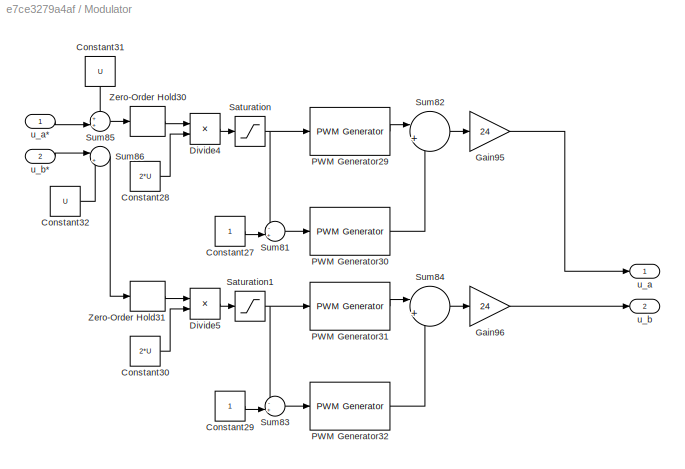
BLOCK [SubSystem] Modulator
  Commented = on
  Ports = [2, 2]
  RequestExecContextInheritance = off
BLOCK [Constant] Modulator/Constant27
BLOCK [Constant] Modulator/Constant28
  Value = 2*U
BLOCK [Constant] Modulator/Constant29
BLOCK [Constant] Modulator/Constant30
  Value = 2*U
BLOCK [Constant] Modulator/Constant31
  NameLocation = left
  Value = U
BLOCK [Constant] Modulator/Constant32
  Value = U
BLOCK [Product] Modulator/Divide4
  Inputs = */
  Ports = [2, 1]
BLOCK [Product] Modulator/Divide5
  Inputs = */
  Ports = [2, 1]
BLOCK [Gain] Modulator/Gain95
  Gain = 24
BLOCK [Gain] Modulator/Gain96
  Gain = 24
BLOCK [Reference] Modulator/PWM Generator29  REF=eePwmGenerator/PWM Generator
  Ports = [1, 1]
  SourceBlock = eePwmGenerator/PWM Generator
  SourceProductBaseCode = PS
  SourceType = PWM Generator
BLOCK [Reference] Modulator/PWM Generator30  REF=eePwmGenerator/PWM Generator
  Ports = [1, 1]
  SourceBlock = eePwmGenerator/PWM Generator
  SourceProductBaseCode = PS
  SourceType = PWM Generator
BLOCK [Reference] Modulator/PWM Generator31  REF=eePwmGenerator/PWM Generator
  Ports = [1, 1]
  SourceBlock = eePwmGenerator/PWM Generator
  SourceProductBaseCode = PS
  SourceType = PWM Generator
BLOCK [Reference] Modulator/PWM Generator32  REF=eePwmGenerator/PWM Generator
  Ports = [1, 1]
  SourceBlock = eePwmGenerator/PWM Generator
  SourceProductBaseCode = PS
  SourceType = PWM Generator
BLOCK [Saturate] Modulator/Saturation
  LowerLimit = 0
  UpperLimit = 1
BLOCK [Saturate] Modulator/Saturation1
  LowerLimit = 0
  UpperLimit = 1
BLOCK [Sum] Modulator/Sum81
  Inputs = -+|
  Ports = [2, 1]
BLOCK [Sum] Modulator/Sum82
  Inputs = |+-
  Ports = [2, 1]
BLOCK [Sum] Modulator/Sum83
  Inputs = -+|
  Ports = [2, 1]
BLOCK [Sum] Modulator/Sum84
  Inputs = |+-
  Ports = [2, 1]
BLOCK [Sum] Modulator/Sum85
  Inputs = ++|
  Ports = [2, 1]
BLOCK [Sum] Modulator/Sum86
  Inputs = |++
  Ports = [2, 1]
BLOCK [ZeroOrderHold] Modulator/Zero-Order Hold30
  SampleTime = 50e-6
BLOCK [ZeroOrderHold] Modulator/Zero-Order Hold31
  SampleTime = 50e-6
BLOCK [Outport] Modulator/u_a
BLOCK [Inport] Modulator/u_a*
BLOCK [Outport] Modulator/u_b
  Port = 2
BLOCK [Inport] Modulator/u_b*
  Port = 2
BLOCK [SubSystem] Modulator1
  Ports = [2, 2]
  RequestExecContextInheritance = off
BLOCK [Constant] Modulator1/Constant27
BLOCK [Constant] Modulator1/Constant28
  Value = 2*U
BLOCK [Constant] Modulator1/Constant29
BLOCK [Constant] Modulator1/Constant30
  Value = 2*U
BLOCK [Constant] Modulator1/Constant31
  NameLocation = left
  Value = U
BLOCK [Constant] Modulator1/Constant32
  Value = U
BLOCK [Product] Modulator1/Divide4
  Inputs = */
  Ports = [2, 1]
BLOCK [Product] Modulator1/Divide5
  Inputs = */
  Ports = [2, 1]
BLOCK [Gain] Modulator1/Gain95
  Gain = 24
BLOCK [Gain] Modulator1/Gain96
  Gain = 24
BLOCK [Reference] Modulator1/PWM Generator29  REF=eePwmGenerator/PWM Generator
  Ports = [1, 1]
  SourceBlock = eePwmGenerator/PWM Generator
  SourceProductBaseCode = PS
  SourceType = PWM Generator
BLOCK [Reference] Modulator1/PWM Generator30  REF=eePwmGenerator/PWM Generator
  Ports = [1, 1]
  SourceBlock = eePwmGenerator/PWM Generator
  SourceProductBaseCode = PS
  SourceType = PWM Generator
BLOCK [Reference] Modulator1/PWM Generator31  REF=eePwmGenerator/PWM Generator
  Ports = [1, 1]
  SourceBlock = eePwmGenerator/PWM Generator
  SourceProductBaseCode = PS
  SourceType = PWM Generator
BLOCK [Reference] Modulator1/PWM Generator32  REF=eePwmGenerator/PWM Generator
  Ports = [1, 1]
  SourceBlock = eePwmGenerator/PWM Generator
  SourceProductBaseCode = PS
  SourceType = PWM Generator
BLOCK [Saturate] Modulator1/Saturation
  LowerLimit = 0
  UpperLimit = 1
BLOCK [Saturate] Modulator1/Saturation1
  LowerLimit = 0
  UpperLimit = 1
BLOCK [Sum] Modulator1/Sum81
  Inputs = -+|
  Ports = [2, 1]
BLOCK [Sum] Modulator1/Sum82
  Inputs = |+-
  Ports = [2, 1]
BLOCK [Sum] Modulator1/Sum83
  Inputs = -+|
  Ports = [2, 1]
BLOCK [Sum] Modulator1/Sum84
  Inputs = |+-
  Ports = [2, 1]
BLOCK [Sum] Modulator1/Sum85
  Inputs = ++|
  Ports = [2, 1]
BLOCK [Sum] Modulator1/Sum86
  Inputs = |++
  Ports = [2, 1]
BLOCK [ZeroOrderHold] Modulator1/Zero-Order Hold30
  SampleTime = 50e-6
BLOCK [ZeroOrderHold] Modulator1/Zero-Order Hold31
  SampleTime = 50e-6
BLOCK [Outport] Modulator1/u_a
BLOCK [Inport] Modulator1/u_a*
BLOCK [Outport] Modulator1/u_b
  Port = 2
BLOCK [Inport] Modulator1/u_b*
  Port = 2
BLOCK [SubSystem] Modulator2
  Commented = on
  Ports = [2, 2]
  RequestExecContextInheritance = off
BLOCK [Constant] Modulator2/Constant27
BLOCK [Constant] Modulator2/Constant28
  Value = 2*U
BLOCK [Constant] Modulator2/Constant29
BLOCK [Constant] Modulator2/Constant30
  Value = 2*U
BLOCK [Constant] Modulator2/Constant31
  NameLocation = left
  Value = U
BLOCK [Constant] Modulator2/Constant32
  Value = U
BLOCK [Product] Modulator2/Divide4
  Inputs = */
  Ports = [2, 1]
BLOCK [Product] Modulator2/Divide5
  Inputs = */
  Ports = [2, 1]
BLOCK [Gain] Modulator2/Gain95
  Gain = 24
BLOCK [Gain] Modulator2/Gain96
  Gain = 24
BLOCK [Reference] Modulator2/PWM Generator29  REF=eePwmGenerator/PWM Generator
  Ports = [1, 1]
  SourceBlock = eePwmGenerator/PWM Generator
  SourceProductBaseCode = PS
  SourceType = PWM Generator
BLOCK [Reference] Modulator2/PWM Generator30  REF=eePwmGenerator/PWM Generator
  Ports = [1, 1]
  SourceBlock = eePwmGenerator/PWM Generator
  SourceProductBaseCode = PS
  SourceType = PWM Generator
BLOCK [Reference] Modulator2/PWM Generator31  REF=eePwmGenerator/PWM Generator
  Ports = [1, 1]
  SourceBlock = eePwmGenerator/PWM Generator
  SourceProductBaseCode = PS
  SourceType = PWM Generator
BLOCK [Reference] Modulator2/PWM Generator32  REF=eePwmGenerator/PWM Generator
  Ports = [1, 1]
  SourceBlock = eePwmGenerator/PWM Generator
  SourceProductBaseCode = PS
  SourceType = PWM Generator
BLOCK [Saturate] Modulator2/Saturation
  LowerLimit = 0
  UpperLimit = 1
BLOCK [Saturate] Modulator2/Saturation1
  LowerLimit = 0
  UpperLimit = 1
BLOCK [Sum] Modulator2/Sum81
  Inputs = -+|
  Ports = [2, 1]
BLOCK [Sum] Modulator2/Sum82
  Inputs = |+-
  Ports = [2, 1]
BLOCK [Sum] Modulator2/Sum83
  Inputs = -+|
  Ports = [2, 1]
BLOCK [Sum] Modulator2/Sum84
  Inputs = |+-
  Ports = [2, 1]
BLOCK [Sum] Modulator2/Sum85
  Inputs = ++|
  Ports = [2, 1]
BLOCK [Sum] Modulator2/Sum86
  Inputs = |++
  Ports = [2, 1]
BLOCK [ZeroOrderHold] Modulator2/Zero-Order Hold30
  SampleTime = 50e-6
BLOCK [ZeroOrderHold] Modulator2/Zero-Order Hold31
  SampleTime = 50e-6
BLOCK [Outport] Modulator2/u_a
BLOCK [Inport] Modulator2/u_a*
BLOCK [Outport] Modulator2/u_b
  Port = 2
BLOCK [Inport] Modulator2/u_b*
  Port = 2
BLOCK [Reference] PID Controller1  REF=pid_lib/PID Controller
  Ports = [1, 1]
  SourceBlock = pid_lib/PID Controller
  SourceProductBaseCode = SL
  SourceType = PID 1dof
BLOCK [Reference] PID Controller2  REF=pid_lib/PID Controller
  Ports = [1, 1]
  SourceBlock = pid_lib/PID Controller
  SourceProductBaseCode = SL
  SourceType = PID 1dof
BLOCK [Reference] PID Controller3  REF=pid_lib/PID Controller
  Commented = on
  Ports = [1, 1]
  SourceBlock = pid_lib/PID Controller
  SourceProductBaseCode = SL
  SourceType = PID 1dof
BLOCK [Reference] PID Controller4  REF=pid_lib/PID Controller
  Commented = on
  Ports = [1, 1]
  SourceBlock = pid_lib/PID Controller
  SourceProductBaseCode = SL
  SourceType = PID 1dof
BLOCK [Reference] PID Controller5  REF=pid_lib/PID Controller
  Commented = on
  Ports = [1, 1]
  SourceBlock = pid_lib/PID Controller
  SourceProductBaseCode = SL
  SourceType = PID 1dof
BLOCK [Reference] PID Controller6  REF=pid_lib/PID Controller
  Commented = on
  Ports = [1, 1]
  SourceBlock = pid_lib/PID Controller
  SourceProductBaseCode = SL
  SourceType = PID 1dof
BLOCK [Reference] PMSM  REF=ee_lib/Electromechanical/Permanent Magnet/PMSM
  Commented = on
  Ports = [0, 0, 0, 0, 0, 2, 2]
  SourceBlock = ee_lib/Electromechanical/Permanent Magnet/PMSM
  SourceProductBaseCode = PS
  SourceType = PMSM
BLOCK [Reference] PMSM Torque Estimator  REF=eePmsmTorqueEstimator/PMSM Torque
Estimator
  Commented = on
  Ports = [1, 1]
  SourceBlock = eePmsmTorqueEstimator/PMSM Torque\nEstimator
  SourceProductBaseCode = PS
  SourceType = PMSM Torque Estimator
BLOCK [Reference] PS Add  REF=fl_lib/Physical Signals/Functions/PS Add
  Commented = on
  Ports = [0, 0, 0, 0, 0, 2, 1]
  SourceBlock = fl_lib/Physical Signals/Functions/PS Add
  SourceProductBaseCode = SS
  SourceType = PS Add
BLOCK [Reference] PS Add1  REF=fl_lib/Physical Signals/Functions/PS Add
  Commented = on
  Ports = [0, 0, 0, 0, 0, 2, 1]
  SourceBlock = fl_lib/Physical Signals/Functions/PS Add
  SourceProductBaseCode = SS
  SourceType = PS Add
BLOCK [Reference] PS Gain  REF=fl_lib/Physical Signals/Functions/PS Gain
  Commented = on
  Ports = [0, 0, 0, 0, 0, 1, 1]
  SourceBlock = fl_lib/Physical Signals/Functions/PS Gain
  SourceProductBaseCode = SS
  SourceType = PS Gain
BLOCK [Reference] PS Gain1  REF=fl_lib/Physical Signals/Functions/PS Gain
  Commented = on
  Ports = [0, 0, 0, 0, 0, 1, 1]
  SourceBlock = fl_lib/Physical Signals/Functions/PS Gain
  SourceProductBaseCode = SS
  SourceType = PS Gain
BLOCK [Reference] PS Gain10  REF=fl_lib/Physical Signals/Functions/PS Gain
  Commented = on
  Ports = [0, 0, 0, 0, 0, 1, 1]
  SourceBlock = fl_lib/Physical Signals/Functions/PS Gain
  SourceProductBaseCode = SS
  SourceType = PS Gain
BLOCK [Reference] PS Gain11  REF=fl_lib/Physical Signals/Functions/PS Gain
  Commented = on
  Ports = [0, 0, 0, 0, 0, 1, 1]
  SourceBlock = fl_lib/Physical Signals/Functions/PS Gain
  SourceProductBaseCode = SS
  SourceType = PS Gain
BLOCK [Reference] PS Gain2  REF=fl_lib/Physical Signals/Functions/PS Gain
  Commented = on
  Ports = [0, 0, 0, 0, 0, 1, 1]
  SourceBlock = fl_lib/Physical Signals/Functions/PS Gain
  SourceProductBaseCode = SS
  SourceType = PS Gain
BLOCK [Reference] PS Gain3  REF=fl_lib/Physical Signals/Functions/PS Gain
  Commented = on
  Ports = [0, 0, 0, 0, 0, 1, 1]
  SourceBlock = fl_lib/Physical Signals/Functions/PS Gain
  SourceProductBaseCode = SS
  SourceType = PS Gain
BLOCK [Reference] PS Gain4  REF=fl_lib/Physical Signals/Functions/PS Gain
  Commented = on
  Ports = [0, 0, 0, 0, 0, 1, 1]
  SourceBlock = fl_lib/Physical Signals/Functions/PS Gain
  SourceProductBaseCode = SS
  SourceType = PS Gain
BLOCK [Reference] PS Gain5  REF=fl_lib/Physical Signals/Functions/PS Gain
  Commented = on
  Ports = [0, 0, 0, 0, 0, 1, 1]
  SourceBlock = fl_lib/Physical Signals/Functions/PS Gain
  SourceProductBaseCode = SS
  SourceType = PS Gain
BLOCK [Reference] PS Gain6  REF=fl_lib/Physical Signals/Functions/PS Gain
  Commented = on
  Ports = [0, 0, 0, 0, 0, 1, 1]
  SourceBlock = fl_lib/Physical Signals/Functions/PS Gain
  SourceProductBaseCode = SS
  SourceType = PS Gain
BLOCK [Reference] PS Gain7  REF=fl_lib/Physical Signals/Functions/PS Gain
  Commented = on
  Ports = [0, 0, 0, 0, 0, 1, 1]
  SourceBlock = fl_lib/Physical Signals/Functions/PS Gain
  SourceProductBaseCode = SS
  SourceType = PS Gain
BLOCK [Reference] PS Gain8  REF=fl_lib/Physical Signals/Functions/PS Gain
  Commented = on
  Ports = [0, 0, 0, 0, 0, 1, 1]
  SourceBlock = fl_lib/Physical Signals/Functions/PS Gain
  SourceProductBaseCode = SS
  SourceType = PS Gain
BLOCK [Reference] PS Gain9  REF=fl_lib/Physical Signals/Functions/PS Gain
  Commented = on
  Ports = [0, 0, 0, 0, 0, 1, 1]
  SourceBlock = fl_lib/Physical Signals/Functions/PS Gain
  SourceProductBaseCode = SS
  SourceType = PS Gain
BLOCK [Reference] PS Math Function  REF=fl_lib/Physical Signals/Functions/PS Math Function
  Commented = on
  Ports = [0, 0, 0, 0, 0, 1, 1]
  SourceBlock = fl_lib/Physical Signals/Functions/PS Math Function
  SourceProductBaseCode = SS
  SourceType = PS Math Function
BLOCK [Reference] PS Math Function1  REF=fl_lib/Physical Signals/Functions/PS Math Function
  Commented = on
  Ports = [0, 0, 0, 0, 0, 1, 1]
  SourceBlock = fl_lib/Physical Signals/Functions/PS Math Function
  SourceProductBaseCode = SS
  SourceType = PS Math Function
BLOCK [Reference] PS Math Function2  REF=fl_lib/Physical Signals/Functions/PS Math Function
  Commented = on
  Ports = [0, 0, 0, 0, 0, 1, 1]
  SourceBlock = fl_lib/Physical Signals/Functions/PS Math Function
  SourceProductBaseCode = SS
  SourceType = PS Math Function
BLOCK [Reference] PS Math Function3  REF=fl_lib/Physical Signals/Functions/PS Math Function
  Commented = on
  Ports = [0, 0, 0, 0, 0, 1, 1]
  SourceBlock = fl_lib/Physical Signals/Functions/PS Math Function
  SourceProductBaseCode = SS
  SourceType = PS Math Function
BLOCK [Reference] PS Math Function4  REF=fl_lib/Physical Signals/Functions/PS Math Function
  Commented = on
  Ports = [0, 0, 0, 0, 0, 1, 1]
  SourceBlock = fl_lib/Physical Signals/Functions/PS Math Function
  SourceProductBaseCode = SS
  SourceType = PS Math Function
BLOCK [Reference] PS Math Function5  REF=fl_lib/Physical Signals/Functions/PS Math Function
  Commented = on
  Ports = [0, 0, 0, 0, 0, 1, 1]
  SourceBlock = fl_lib/Physical Signals/Functions/PS Math Function
  SourceProductBaseCode = SS
  SourceType = PS Math Function
BLOCK [Reference] PS Math Function6  REF=fl_lib/Physical Signals/Functions/PS Math Function
  Commented = on
  Ports = [0, 0, 0, 0, 0, 1, 1]
  SourceBlock = fl_lib/Physical Signals/Functions/PS Math Function
  SourceProductBaseCode = SS
  SourceType = PS Math Function
BLOCK [Reference] PS Product  REF=fl_lib/Physical Signals/Functions/PS Product
  Commented = on
  Ports = [0, 0, 0, 0, 0, 2, 1]
  SourceBlock = fl_lib/Physical Signals/Functions/PS Product
  SourceProductBaseCode = SS
  SourceType = PS Product
BLOCK [Reference] PS Product1  REF=fl_lib/Physical Signals/Functions/PS Product
  Commented = on
  Ports = [0, 0, 0, 0, 0, 2, 1]
  SourceBlock = fl_lib/Physical Signals/Functions/PS Product
  SourceProductBaseCode = SS
  SourceType = PS Product
BLOCK [Reference] PS Product2  REF=fl_lib/Physical Signals/Functions/PS Product
  Commented = on
  NameLocation = right
  Ports = [0, 0, 0, 0, 0, 2, 1]
  SourceBlock = fl_lib/Physical Signals/Functions/PS Product
  SourceProductBaseCode = SS
  SourceType = PS Product
BLOCK [Reference] PS Product3  REF=fl_lib/Physical Signals/Functions/PS Product
  Commented = on
  NameLocation = right
  Ports = [0, 0, 0, 0, 0, 2, 1]
  SourceBlock = fl_lib/Physical Signals/Functions/PS Product
  SourceProductBaseCode = SS
  SourceType = PS Product
BLOCK [Reference] PS Product4  REF=fl_lib/Physical Signals/Functions/PS Product
  Commented = on
  Ports = [0, 0, 0, 0, 0, 2, 1]
  SourceBlock = fl_lib/Physical Signals/Functions/PS Product
  SourceProductBaseCode = SS
  SourceType = PS Product
BLOCK [Reference] PS Product5  REF=fl_lib/Physical Signals/Functions/PS Product
  Commented = on
  Ports = [0, 0, 0, 0, 0, 2, 1]
  SourceBlock = fl_lib/Physical Signals/Functions/PS Product
  SourceProductBaseCode = SS
  SourceType = PS Product
BLOCK [Reference] PS Product6  REF=fl_lib/Physical Signals/Functions/PS Product
  Commented = on
  NameLocation = right
  Ports = [0, 0, 0, 0, 0, 2, 1]
  SourceBlock = fl_lib/Physical Signals/Functions/PS Product
  SourceProductBaseCode = SS
  SourceType = PS Product
BLOCK [Reference] PS Product7  REF=fl_lib/Physical Signals/Functions/PS Product
  Commented = on
  NameLocation = right
  Ports = [0, 0, 0, 0, 0, 2, 1]
  SourceBlock = fl_lib/Physical Signals/Functions/PS Product
  SourceProductBaseCode = SS
  SourceType = PS Product
BLOCK [Reference] PS-Simulink Converter  REF=nesl_utility/PS-Simulink
Converter
  Commented = on
  Ports = [0, 1, 0, 0, 0, 1]
  SourceBlock = nesl_utility/PS-Simulink\nConverter
  SourceProductBaseCode = SS
  SourceType = PS-Simulink\nConverter
BLOCK [Reference] PS-Simulink Converter1  REF=nesl_utility/PS-Simulink
Converter
  Commented = on
  Ports = [0, 1, 0, 0, 0, 1]
  SourceBlock = nesl_utility/PS-Simulink\nConverter
  SourceProductBaseCode = SS
  SourceType = PS-Simulink\nConverter
BLOCK [Reference] PS-Simulink Converter10  REF=nesl_utility/PS-Simulink
Converter
  Commented = on
  Ports = [0, 1, 0, 0, 0, 1]
  SourceBlock = nesl_utility/PS-Simulink\nConverter
  SourceProductBaseCode = SS
  SourceType = PS-Simulink\nConverter
BLOCK [Reference] PS-Simulink Converter11  REF=nesl_utility/PS-Simulink
Converter
  Commented = on
  Ports = [0, 1, 0, 0, 0, 1]
  SourceBlock = nesl_utility/PS-Simulink\nConverter
  SourceProductBaseCode = SS
  SourceType = PS-Simulink\nConverter
BLOCK [Reference] PS-Simulink Converter12  REF=nesl_utility/PS-Simulink
Converter
  Commented = on
  Ports = [0, 1, 0, 0, 0, 1]
  SourceBlock = nesl_utility/PS-Simulink\nConverter
  SourceProductBaseCode = SS
  SourceType = PS-Simulink\nConverter
BLOCK [Reference] PS-Simulink Converter13  REF=nesl_utility/PS-Simulink
Converter
  Commented = on
  Ports = [0, 1, 0, 0, 0, 1]
  SourceBlock = nesl_utility/PS-Simulink\nConverter
  SourceProductBaseCode = SS
  SourceType = PS-Simulink\nConverter
BLOCK [Reference] PS-Simulink Converter14  REF=nesl_utility/PS-Simulink
Converter
  Commented = on
  Ports = [0, 1, 0, 0, 0, 1]
  SourceBlock = nesl_utility/PS-Simulink\nConverter
  SourceProductBaseCode = SS
  SourceType = PS-Simulink\nConverter
BLOCK [Reference] PS-Simulink Converter15  REF=nesl_utility/PS-Simulink
Converter
  Commented = on
  Ports = [0, 1, 0, 0, 0, 1]
  SourceBlock = nesl_utility/PS-Simulink\nConverter
  SourceProductBaseCode = SS
  SourceType = PS-Simulink\nConverter
BLOCK [Reference] PS-Simulink Converter16  REF=nesl_utility/PS-Simulink
Converter
  Commented = on
  Ports = [0, 1, 0, 0, 0, 1]
  SourceBlock = nesl_utility/PS-Simulink\nConverter
  SourceProductBaseCode = SS
  SourceType = PS-Simulink\nConverter
BLOCK [Reference] PS-Simulink Converter17  REF=nesl_utility/PS-Simulink
Converter
  Commented = on
  Ports = [0, 1, 0, 0, 0, 1]
  SourceBlock = nesl_utility/PS-Simulink\nConverter
  SourceProductBaseCode = SS
  SourceType = PS-Simulink\nConverter
BLOCK [Reference] PS-Simulink Converter18  REF=nesl_utility/PS-Simulink
Converter
  Commented = on
  Ports = [0, 1, 0, 0, 0, 1]
  SourceBlock = nesl_utility/PS-Simulink\nConverter
  SourceProductBaseCode = SS
  SourceType = PS-Simulink\nConverter
BLOCK [Reference] PS-Simulink Converter19  REF=nesl_utility/PS-Simulink
Converter
  Commented = on
  Ports = [0, 1, 0, 0, 0, 1]
  SourceBlock = nesl_utility/PS-Simulink\nConverter
  SourceProductBaseCode = SS
  SourceType = PS-Simulink\nConverter
BLOCK [Reference] PS-Simulink Converter2  REF=nesl_utility/PS-Simulink
Converter
  Commented = on
  Ports = [0, 1, 0, 0, 0, 1]
  SourceBlock = nesl_utility/PS-Simulink\nConverter
  SourceProductBaseCode = SS
  SourceType = PS-Simulink\nConverter
BLOCK [Reference] PS-Simulink Converter20  REF=nesl_utility/PS-Simulink
Converter
  Commented = on
  Ports = [0, 1, 0, 0, 0, 1]
  SourceBlock = nesl_utility/PS-Simulink\nConverter
  SourceProductBaseCode = SS
  SourceType = PS-Simulink\nConverter
BLOCK [Reference] PS-Simulink Converter21  REF=nesl_utility/PS-Simulink
Converter
  Commented = on
  Ports = [0, 1, 0, 0, 0, 1]
  SourceBlock = nesl_utility/PS-Simulink\nConverter
  SourceProductBaseCode = SS
  SourceType = PS-Simulink\nConverter
BLOCK [Reference] PS-Simulink Converter3  REF=nesl_utility/PS-Simulink
Converter
  Commented = on
  Ports = [0, 1, 0, 0, 0, 1]
  SourceBlock = nesl_utility/PS-Simulink\nConverter
  SourceProductBaseCode = SS
  SourceType = PS-Simulink\nConverter
BLOCK [Reference] PS-Simulink Converter4  REF=nesl_utility/PS-Simulink
Converter
  Commented = on
  Ports = [0, 1, 0, 0, 0, 1]
  SourceBlock = nesl_utility/PS-Simulink\nConverter
  SourceProductBaseCode = SS
  SourceType = PS-Simulink\nConverter
BLOCK [Reference] PS-Simulink Converter5  REF=nesl_utility/PS-Simulink
Converter
  Commented = on
  Ports = [0, 1, 0, 0, 0, 1]
  SourceBlock = nesl_utility/PS-Simulink\nConverter
  SourceProductBaseCode = SS
  SourceType = PS-Simulink\nConverter
BLOCK [Reference] PS-Simulink Converter6  REF=nesl_utility/PS-Simulink
Converter
  Commented = on
  Ports = [0, 1, 0, 0, 0, 1]
  SourceBlock = nesl_utility/PS-Simulink\nConverter
  SourceProductBaseCode = SS
  SourceType = PS-Simulink\nConverter
BLOCK [Reference] PS-Simulink Converter7  REF=nesl_utility/PS-Simulink
Converter
  Commented = on
  Ports = [0, 1, 0, 0, 0, 1]
  SourceBlock = nesl_utility/PS-Simulink\nConverter
  SourceProductBaseCode = SS
  SourceType = PS-Simulink\nConverter
BLOCK [Reference] PS-Simulink Converter8  REF=nesl_utility/PS-Simulink
Converter
  Commented = on
  Ports = [0, 1, 0, 0, 0, 1]
  SourceBlock = nesl_utility/PS-Simulink\nConverter
  SourceProductBaseCode = SS
  SourceType = PS-Simulink\nConverter
BLOCK [Reference] PS-Simulink Converter9  REF=nesl_utility/PS-Simulink
Converter
  Commented = on
  Ports = [0, 1, 0, 0, 0, 1]
  SourceBlock = nesl_utility/PS-Simulink\nConverter
  SourceProductBaseCode = SS
  SourceType = PS-Simulink\nConverter
BLOCK [Reference] PWM  REF=simulink/Discontinuities/PWM
  Commented = on
  DisableCoverage = on
  Ports = [1, 1]
  SourceBlock = simulink/Discontinuities/PWM
  SourceProductBaseCode = SL
  SourceType = PWM
BLOCK [Reference] PWM Generator  REF=eePwmGenerator/PWM Generator
  Commented = on
  Ports = [1, 1]
  SourceBlock = eePwmGenerator/PWM Generator
  SourceProductBaseCode = PS
  SourceType = PWM Generator
BLOCK [Reference] PWM Generator1  REF=eePwmGenerator/PWM Generator
  Commented = on
  Ports = [1, 1]
  SourceBlock = eePwmGenerator/PWM Generator
  SourceProductBaseCode = PS
  SourceType = PWM Generator
BLOCK [Reference] PWM Generator10  REF=eePwmGenerator/PWM Generator
  Commented = on
  Ports = [1, 1]
  SourceBlock = eePwmGenerator/PWM Generator
  SourceProductBaseCode = PS
  SourceType = PWM Generator
BLOCK [Reference] PWM Generator11  REF=eePwmGenerator/PWM Generator
  Commented = on
  Ports = [1, 1]
  SourceBlock = eePwmGenerator/PWM Generator
  SourceProductBaseCode = PS
  SourceType = PWM Generator
BLOCK [Reference] PWM Generator12  REF=eePwmGenerator/PWM Generator
  Commented = on
  Ports = [1, 1]
  SourceBlock = eePwmGenerator/PWM Generator
  SourceProductBaseCode = PS
  SourceType = PWM Generator
BLOCK [Reference] PWM Generator13  REF=eePwmGenerator/PWM Generator
  Commented = on
  Ports = [1, 1]
  SourceBlock = eePwmGenerator/PWM Generator
  SourceProductBaseCode = PS
  SourceType = PWM Generator
BLOCK [Reference] PWM Generator14  REF=eePwmGenerator/PWM Generator
  Commented = on
  Ports = [1, 1]
  SourceBlock = eePwmGenerator/PWM Generator
  SourceProductBaseCode = PS
  SourceType = PWM Generator
BLOCK [Reference] PWM Generator15  REF=eePwmGenerator/PWM Generator
  Commented = on
  Ports = [1, 1]
  SourceBlock = eePwmGenerator/PWM Generator
  SourceProductBaseCode = PS
  SourceType = PWM Generator
BLOCK [Reference] PWM Generator16  REF=eePwmGenerator/PWM Generator
  Commented = on
  Ports = [1, 1]
  SourceBlock = eePwmGenerator/PWM Generator
  SourceProductBaseCode = PS
  SourceType = PWM Generator
BLOCK [Reference] PWM Generator17  REF=eePwmGenerator/PWM Generator
  Commented = on
  Ports = [1, 1]
  SourceBlock = eePwmGenerator/PWM Generator
  SourceProductBaseCode = PS
  SourceType = PWM Generator
BLOCK [Reference] PWM Generator18  REF=eePwmGenerator/PWM Generator
  Commented = on
  Ports = [1, 1]
  SourceBlock = eePwmGenerator/PWM Generator
  SourceProductBaseCode = PS
  SourceType = PWM Generator
BLOCK [Reference] PWM Generator19  REF=eePwmGenerator/PWM Generator
  Commented = on
  Ports = [1, 1]
  SourceBlock = eePwmGenerator/PWM Generator
  SourceProductBaseCode = PS
  SourceType = PWM Generator
BLOCK [Reference] PWM Generator2  REF=eePwmGenerator/PWM Generator
  Commented = on
  Ports = [1, 1]
  SourceBlock = eePwmGenerator/PWM Generator
  SourceProductBaseCode = PS
  SourceType = PWM Generator
BLOCK [Reference] PWM Generator20  REF=eePwmGenerator/PWM Generator
  Commented = on
  Ports = [1, 1]
  SourceBlock = eePwmGenerator/PWM Generator
  SourceProductBaseCode = PS
  SourceType = PWM Generator
BLOCK [Reference] PWM Generator21  REF=eePwmGenerator/PWM Generator
  Commented = on
  Ports = [1, 1]
  SourceBlock = eePwmGenerator/PWM Generator
  SourceProductBaseCode = PS
  SourceType = PWM Generator
BLOCK [Reference] PWM Generator22  REF=eePwmGenerator/PWM Generator
  Commented = on
  Ports = [1, 1]
  SourceBlock = eePwmGenerator/PWM Generator
  SourceProductBaseCode = PS
  SourceType = PWM Generator
BLOCK [Reference] PWM Generator23  REF=eePwmGenerator/PWM Generator
  Commented = on
  Ports = [1, 1]
  SourceBlock = eePwmGenerator/PWM Generator
  SourceProductBaseCode = PS
  SourceType = PWM Generator
BLOCK [Reference] PWM Generator24  REF=eePwmGenerator/PWM Generator
  Commented = on
  Ports = [1, 1]
  SourceBlock = eePwmGenerator/PWM Generator
  SourceProductBaseCode = PS
  SourceType = PWM Generator
BLOCK [Reference] PWM Generator3  REF=eePwmGenerator/PWM Generator
  Commented = on
  Ports = [1, 1]
  SourceBlock = eePwmGenerator/PWM Generator
  SourceProductBaseCode = PS
  SourceType = PWM Generator
BLOCK [Reference] PWM Generator4  REF=eePwmGenerator/PWM Generator
  Commented = on
  Ports = [1, 1]
  SourceBlock = eePwmGenerator/PWM Generator
  SourceProductBaseCode = PS
  SourceType = PWM Generator
BLOCK [Reference] PWM Generator5  REF=eePwmGenerator/PWM Generator
  Commented = on
  Ports = [1, 1]
  SourceBlock = eePwmGenerator/PWM Generator
  SourceProductBaseCode = PS
  SourceType = PWM Generator
BLOCK [Reference] PWM Generator6  REF=eePwmGenerator/PWM Generator
  Commented = on
  Ports = [1, 1]
  SourceBlock = eePwmGenerator/PWM Generator
  SourceProductBaseCode = PS
  SourceType = PWM Generator
BLOCK [Reference] PWM Generator7  REF=eePwmGenerator/PWM Generator
  Commented = on
  Ports = [1, 1]
  SourceBlock = eePwmGenerator/PWM Generator
  SourceProductBaseCode = PS
  SourceType = PWM Generator
BLOCK [Reference] PWM Generator8  REF=eePwmGenerator/PWM Generator
  Commented = on
  Ports = [1, 1]
  SourceBlock = eePwmGenerator/PWM Generator
  SourceProductBaseCode = PS
  SourceType = PWM Generator
BLOCK [Reference] PWM Generator9  REF=eePwmGenerator/PWM Generator
  Commented = on
  Ports = [1, 1]
  SourceBlock = eePwmGenerator/PWM Generator
  SourceProductBaseCode = PS
  SourceType = PWM Generator
BLOCK [Product] Product1
  Commented = on
  NameLocation = top
  Ports = [2, 1]
BLOCK [Product] Product10
  Commented = on
  NameLocation = top
  Ports = [2, 1]
BLOCK [Product] Product11
  Commented = on
  NameLocation = top
  Ports = [2, 1]
BLOCK [Product] Product12
  Commented = on
  NameLocation = top
  Ports = [2, 1]
BLOCK [Product] Product13
  Commented = on
  NameLocation = top
  Ports = [2, 1]
BLOCK [Product] Product14
  Commented = on
  NameLocation = top
  Ports = [2, 1]
BLOCK [Product] Product15
  Commented = on
  NameLocation = top
  Ports = [2, 1]
BLOCK [Product] Product16
  NameLocation = top
  Ports = [2, 1]
BLOCK [Product] Product17
  NameLocation = top
  Ports = [2, 1]
BLOCK [Product] Product18
  Commented = on
  NameLocation = top
  Ports = [2, 1]
BLOCK [Product] Product19
  Commented = on
  NameLocation = top
  Ports = [2, 1]
BLOCK [Product] Product2
  Commented = on
  Ports = [2, 1]
BLOCK [Product] Product20
  Commented = on
  NameLocation = top
  Ports = [2, 1]
BLOCK [Product] Product3
  Commented = on
  Ports = [2, 1]
BLOCK [Product] Product4
  Commented = on
  NameLocation = top
  Ports = [2, 1]
BLOCK [Product] Product5
  Commented = on
  NameLocation = top
  Ports = [2, 1]
BLOCK [Product] Product6
  Commented = on
  Ports = [2, 1]
BLOCK [Product] Product7
  Commented = on
  Ports = [2, 1]
BLOCK [Product] Product8
  Commented = on
  NameLocation = top
  Ports = [2, 1]
BLOCK [Product] Product9
  Commented = on
  NameLocation = top
  Ports = [2, 1]
BLOCK [Reference] Programmable Voltage Source  REF=ee_lib/Sources/Programmable Voltage
Source
  Commented = on
  NameLocation = right
  Ports = [0, 0, 0, 0, 0, 1, 3]
  SourceBlock = ee_lib/Sources/Programmable Voltage\nSource
  SourceProductBaseCode = PS
  SourceType = Programmable Voltage\nSource
BLOCK [Reference] Quadrature Shaft Decoder  REF=eeQuadratureDecoder/Quadrature Shaft
Decoder
  Commented = on
  Ports = [3, 2]
  SourceBlock = eeQuadratureDecoder/Quadrature Shaft\nDecoder
  SourceProductBaseCode = PS
  SourceType = Quadrature Shaft Decoder
BLOCK [Reference] Random Source  REF=dspsrcs4/Random
Source
  Commented = on
  Ports = [0, 1]
  SourceBlock = dspsrcs4/Random\nSource
  SourceProductBaseCode = DS
  SourceType = Random Source
  UserDataPersistent = on
BLOCK [Reference] Random Source1  REF=dspsrcs4/Random
Source
  Commented = on
  Ports = [0, 1]
  SourceBlock = dspsrcs4/Random\nSource
  SourceProductBaseCode = DS
  SourceType = Random Source
  UserDataPersistent = on
BLOCK [Reference] Random Source10  REF=dspsrcs4/Random
Source
  Commented = on
  Ports = [0, 1]
  SourceBlock = dspsrcs4/Random\nSource
  SourceProductBaseCode = DS
  SourceType = Random Source
  UserDataPersistent = on
BLOCK [Reference] Random Source11  REF=dspsrcs4/Random
Source
  Commented = on
  Ports = [0, 1]
  SourceBlock = dspsrcs4/Random\nSource
  SourceProductBaseCode = DS
  SourceType = Random Source
  UserDataPersistent = on
BLOCK [Reference] Random Source12  REF=dspsrcs4/Random
Source
  Commented = on
  Ports = [0, 1]
  SourceBlock = dspsrcs4/Random\nSource
  SourceProductBaseCode = DS
  SourceType = Random Source
  UserDataPersistent = on
BLOCK [Reference] Random Source13  REF=dspsrcs4/Random
Source
  Commented = on
  Ports = [0, 1]
  SourceBlock = dspsrcs4/Random\nSource
  SourceProductBaseCode = DS
  SourceType = Random Source
  UserDataPersistent = on
BLOCK [Reference] Random Source14  REF=dspsrcs4/Random
Source
  Commented = on
  Ports = [0, 1]
  SourceBlock = dspsrcs4/Random\nSource
  SourceProductBaseCode = DS
  SourceType = Random Source
  UserDataPersistent = on
BLOCK [Reference] Random Source15  REF=dspsrcs4/Random
Source
  Commented = on
  Ports = [0, 1]
  SourceBlock = dspsrcs4/Random\nSource
  SourceProductBaseCode = DS
  SourceType = Random Source
  UserDataPersistent = on
BLOCK [Reference] Random Source16  REF=dspsrcs4/Random
Source
  Ports = [0, 1]
  SourceBlock = dspsrcs4/Random\nSource
  SourceProductBaseCode = DS
  SourceType = Random Source
  UserDataPersistent = on
BLOCK [Reference] Random Source17  REF=dspsrcs4/Random
Source
  Ports = [0, 1]
  SourceBlock = dspsrcs4/Random\nSource
  SourceProductBaseCode = DS
  SourceType = Random Source
  UserDataPersistent = on
BLOCK [Reference] Random Source18  REF=dspsrcs4/Random
Source
  Commented = on
  Ports = [0, 1]
  SourceBlock = dspsrcs4/Random\nSource
  SourceProductBaseCode = DS
  SourceType = Random Source
  UserDataPersistent = on
BLOCK [Reference] Random Source2  REF=dspsrcs4/Random
Source
  Commented = on
  Ports = [0, 1]
  SourceBlock = dspsrcs4/Random\nSource
  SourceProductBaseCode = DS
  SourceType = Random Source
  UserDataPersistent = on
BLOCK [Reference] Random Source3  REF=dspsrcs4/Random
Source
  Commented = on
  Ports = [0, 1]
  SourceBlock = dspsrcs4/Random\nSource
  SourceProductBaseCode = DS
  SourceType = Random Source
  UserDataPersistent = on
BLOCK [Reference] Random Source4  REF=dspsrcs4/Random
Source
  Commented = on
  Ports = [0, 1]
  SourceBlock = dspsrcs4/Random\nSource
  SourceProductBaseCode = DS
  SourceType = Random Source
  UserDataPersistent = on
BLOCK [Reference] Random Source6  REF=dspsrcs4/Random
Source
  Ports = [0, 1]
  SourceBlock = dspsrcs4/Random\nSource
  SourceProductBaseCode = DS
  SourceType = Random Source
  UserDataPersistent = on
BLOCK [Reference] Random Source7  REF=dspsrcs4/Random
Source
  Ports = [0, 1]
  SourceBlock = dspsrcs4/Random\nSource
  SourceProductBaseCode = DS
  SourceType = Random Source
  UserDataPersistent = on
BLOCK [Reference] Random Source8  REF=dspsrcs4/Random
Source
  Ports = [0, 1]
  SourceBlock = dspsrcs4/Random\nSource
  SourceProductBaseCode = DS
  SourceType = Random Source
  UserDataPersistent = on
BLOCK [Reference] Random Source9  REF=dspsrcs4/Random
Source
  Ports = [0, 1]
  SourceBlock = dspsrcs4/Random\nSource
  SourceProductBaseCode = DS
  SourceType = Random Source
  UserDataPersistent = on
BLOCK [Reference] Resistor  REF=ee_lib/Passive/Resistor
  Commented = on
  Ports = [0, 0, 0, 0, 0, 1, 1]
  SourceBlock = ee_lib/Passive/Resistor
  SourceProductBaseCode = PS
  SourceType = Resistor
BLOCK [Reference] Resistor1  REF=ee_lib/Passive/Resistor
  Commented = on
  Ports = [0, 0, 0, 0, 0, 1, 1]
  SourceBlock = ee_lib/Passive/Resistor
  SourceProductBaseCode = PS
  SourceType = Resistor
BLOCK [Reference] Resistor2  REF=ee_lib/Passive/Resistor
  Commented = on
  NameLocation = left
  Ports = [0, 0, 0, 0, 0, 1, 1]
  SourceBlock = ee_lib/Passive/Resistor
  SourceProductBaseCode = PS
  SourceType = Resistor
BLOCK [Reference] Resistor3  REF=ee_lib/Passive/Resistor
  NameLocation = left
  Ports = [0, 0, 0, 0, 0, 1, 1]
  SourceBlock = ee_lib/Passive/Resistor
  SourceProductBaseCode = PS
  SourceType = Resistor
BLOCK [Reference] Resistor4  REF=ee_lib/Passive/Resistor
  NameLocation = left
  Ports = [0, 0, 0, 0, 0, 1, 1]
  SourceBlock = ee_lib/Passive/Resistor
  SourceProductBaseCode = PS
  SourceType = Resistor
BLOCK [Reference] Resistor5  REF=ee_lib/Passive/Resistor
  Commented = on
  Ports = [0, 0, 0, 0, 0, 1, 1]
  SourceBlock = ee_lib/Passive/Resistor
  SourceProductBaseCode = PS
  SourceType = Resistor
BLOCK [Reference] Resistor6  REF=ee_lib/Passive/Resistor
  Commented = on
  Ports = [0, 0, 0, 0, 0, 1, 1]
  SourceBlock = ee_lib/Passive/Resistor
  SourceProductBaseCode = PS
  SourceType = Resistor
BLOCK [Reference] Resistor7  REF=ee_lib/Passive/Resistor
  Commented = on
  Ports = [0, 0, 0, 0, 0, 1, 1]
  SourceBlock = ee_lib/Passive/Resistor
  SourceProductBaseCode = PS
  SourceType = Resistor
BLOCK [Reference] Resistor8  REF=ee_lib/Passive/Resistor
  Commented = on
  Ports = [0, 0, 0, 0, 0, 1, 1]
  SourceBlock = ee_lib/Passive/Resistor
  SourceProductBaseCode = PS
  SourceType = Resistor
BLOCK [Reference] Rotational Damper  REF=fl_lib/Mechanical/Rotational Elements/Rotational Damper
  Commented = on
  NameLocation = left
  Ports = [0, 0, 0, 0, 0, 1, 1]
  SourceBlock = fl_lib/Mechanical/Rotational Elements/Rotational Damper
  SourceProductBaseCode = SS
  SourceType = Rotational Damper
BLOCK [Reference] Rotational Damper1  REF=fl_lib/Mechanical/Rotational Elements/Rotational Damper
  Commented = on
  NameLocation = left
  Ports = [0, 0, 0, 0, 0, 1, 1]
  SourceBlock = fl_lib/Mechanical/Rotational Elements/Rotational Damper
  SourceProductBaseCode = SS
  SourceType = Rotational Damper
BLOCK [Reference] Rotational Electromechanical Converter  REF=fl_lib/Electrical/Electrical Elements/Rotational
Electromechanical
Converter
  Commented = on
  NameLocation = right
  Ports = [0, 0, 0, 0, 0, 2, 2]
  SourceBlock = fl_lib/Electrical/Electrical Elements/Rotational\nElectromechanical\nConverter
  SourceProductBaseCode = SS
  SourceType = Rotational\nElectromechanical\nConverter
BLOCK [Scope] Scope1
  Commented = on
  Floating = off
  NumInputPorts = 2
  Ports = [2]
  ScopeSpecificationString = Simulink.scopes.TimeScopeBlockCfg('CurrentConfiguration', extmgr.ConfigurationSet(extmgr.Configuration('Core','General UI',true),extmgr.Configuration('Core','Source UI',true),extmgr.Configuration('Sources','WiredSimulink',true,'DataLoggingVariableName','ScopeData1'),extmgr.Configuration('Visuals','Time Domain',true,'SerializedDisplays',{struct('MinYLimReal','-29.3799','MaxYLimReal','25.94934','YLa...<+2092ch>
BLOCK [Scope] Scope10
  Commented = on
  Floating = off
  NumInputPorts = 3
  Ports = [3]
  ScopeSpecificationString = Simulink.scopes.TimeScopeBlockCfg('CurrentConfiguration', extmgr.ConfigurationSet(extmgr.Configuration('Core','General UI',true),extmgr.Configuration('Core','Source UI',true),extmgr.Configuration('Sources','WiredSimulink',true,'DataLoggingVariableName','ScopeData1'),extmgr.Configuration('Visuals','Time Domain',true,'SerializedDisplays',{struct('MinYLimReal','-25.00000','MaxYLimReal','25.00000','YL...<+2826ch>
BLOCK [Scope] Scope11
  Commented = on
  Floating = off
  NumInputPorts = 3
  Ports = [3]
  ScopeSpecificationString = Simulink.scopes.TimeScopeBlockCfg('CurrentConfiguration', extmgr.ConfigurationSet(extmgr.Configuration('Core','General UI',true),extmgr.Configuration('Core','Source UI',true),extmgr.Configuration('Sources','WiredSimulink',true,'DataLoggingVariableName','ScopeData1'),extmgr.Configuration('Visuals','Time Domain',true,'SerializedDisplays',{struct('MinYLimReal','-0.125','MaxYLimReal','0.97852','YLabel...<+2759ch>
BLOCK [Scope] Scope12
  Commented = on
  Floating = off
  NumInputPorts = 3
  Ports = [3]
  ScopeSpecificationString = Simulink.scopes.TimeScopeBlockCfg('CurrentConfiguration', extmgr.ConfigurationSet(extmgr.Configuration('Core','General UI',true),extmgr.Configuration('Core','Source UI',true),extmgr.Configuration('Sources','WiredSimulink',true,'DataLoggingVariableName','ScopeData2'),extmgr.Configuration('Visuals','Time Domain',true,'SerializedDisplays',{struct('MinYLimReal','-25.00000','MaxYLimReal','25.00000','YL...<+1495ch>
BLOCK [Scope] Scope13
  Commented = on
  Floating = off
  NumInputPorts = 3
  Ports = [3]
  ScopeSpecificationString = Simulink.scopes.TimeScopeBlockCfg('CurrentConfiguration', extmgr.ConfigurationSet(extmgr.Configuration('Core','General UI',true),extmgr.Configuration('Core','Source UI',true),extmgr.Configuration('Sources','WiredSimulink',true,'DataLoggingVariableName','ScopeData3'),extmgr.Configuration('Visuals','Time Domain',true,'SerializedDisplays',{struct('MinYLimReal','-0.125','MaxYLimReal','1.125','YLabelRe...<+2758ch>
BLOCK [Scope] Scope14
  Commented = on
  Floating = off
  NumInputPorts = 3
  Ports = [3]
  ScopeSpecificationString = Simulink.scopes.TimeScopeBlockCfg('CurrentConfiguration', extmgr.ConfigurationSet(extmgr.Configuration('Core','General UI',true),extmgr.Configuration('Core','Source UI',true),extmgr.Configuration('Sources','WiredSimulink',true,'DataLoggingVariableName','ScopeData1'),extmgr.Configuration('Visuals','Time Domain',true,'SerializedDisplays',{struct('MinYLimReal','-0.125','MaxYLimReal','1.125','YLabelRe...<+2762ch>
BLOCK [Scope] Scope15
  Commented = on
  Floating = off
  NumInputPorts = 3
  Ports = [3]
  ScopeSpecificationString = Simulink.scopes.TimeScopeBlockCfg('CurrentConfiguration', extmgr.ConfigurationSet(extmgr.Configuration('Core','General UI',true),extmgr.Configuration('Core','Source UI',true),extmgr.Configuration('Sources','WiredSimulink',true,'DataLoggingVariableName','ScopeData2'),extmgr.Configuration('Visuals','Time Domain',true,'SerializedDisplays',{struct('MinYLimReal','-180.78243','MaxYLimReal','97.95551','Y...<+2156ch>
BLOCK [Scope] Scope16
  Commented = on
  Floating = off
  NumInputPorts = 3
  Ports = [3]
  ScopeSpecificationString = Simulink.scopes.TimeScopeBlockCfg('CurrentConfiguration', extmgr.ConfigurationSet(extmgr.Configuration('Core','General UI',true),extmgr.Configuration('Core','Source UI',true),extmgr.Configuration('Sources','WiredSimulink',true,'DataLoggingVariableName','ScopeData3'),extmgr.Configuration('Visuals','Time Domain',true,'SerializedDisplays',{struct('MinYLimReal','-0.125','MaxYLimReal','1.125','YLabelRe...<+2758ch>
BLOCK [Scope] Scope17
  Commented = on
  Floating = off
  NumInputPorts = 2
  Ports = [2]
  ScopeSpecificationString = Simulink.scopes.TimeScopeBlockCfg('CurrentConfiguration', extmgr.ConfigurationSet(extmgr.Configuration('Core','General UI',true),extmgr.Configuration('Core','Source UI',true),extmgr.Configuration('Sources','WiredSimulink',true,'DataLoggingVariableName','ScopeData1'),extmgr.Configuration('Visuals','Time Domain',true,'SerializedDisplays',{struct('MinYLimReal','-36.62108','MaxYLimReal','24.83298','YL...<+2093ch>
BLOCK [Scope] Scope18
  Commented = on
  Floating = off
  NumInputPorts = 3
  Ports = [3]
  ScopeSpecificationString = Simulink.scopes.TimeScopeBlockCfg('CurrentConfiguration', extmgr.ConfigurationSet(extmgr.Configuration('Core','General UI',true),extmgr.Configuration('Core','Source UI',true),extmgr.Configuration('Sources','WiredSimulink',true,'DataLoggingVariableName','ScopeData2'),extmgr.Configuration('Visuals','Time Domain',true,'SerializedDisplays',{struct('MinYLimReal','-0.125','MaxYLimReal','1.125','YLabelRe...<+2764ch>
BLOCK [Scope] Scope19
  Commented = on
  Floating = off
  NumInputPorts = 3
  Ports = [3]
  ScopeSpecificationString = Simulink.scopes.TimeScopeBlockCfg('CurrentConfiguration', extmgr.ConfigurationSet(extmgr.Configuration('Core','General UI',true),extmgr.Configuration('Core','Source UI',true),extmgr.Configuration('Sources','WiredSimulink',true,'DataLoggingVariableName','ScopeData3'),extmgr.Configuration('Visuals','Time Domain',true,'SerializedDisplays',{struct('MinYLimReal','-29.99976','MaxYLimReal','29.99787','YL...<+2142ch>
BLOCK [Scope] Scope2
  Commented = on
  Floating = off
  NumInputPorts = 2
  Ports = [2]
  ScopeSpecificationString = Simulink.scopes.TimeScopeBlockCfg('CurrentConfiguration', extmgr.ConfigurationSet(extmgr.Configuration('Core','General UI',true),extmgr.Configuration('Core','Source UI',true),extmgr.Configuration('Sources','WiredSimulink',true,'DataLoggingVariableName','ScopeData2'),extmgr.Configuration('Visuals','Time Domain',true,'SerializedDisplays',{struct('MinYLimReal','-28.12448','MaxYLimReal','7.5357','YLab...<+1475ch>
BLOCK [Scope] Scope20
  Commented = on
  Floating = off
  NumInputPorts = 3
  Ports = [3]
  ScopeSpecificationString = Simulink.scopes.TimeScopeBlockCfg('CurrentConfiguration', extmgr.ConfigurationSet(extmgr.Configuration('Core','General UI',true),extmgr.Configuration('Core','Source UI',true),extmgr.Configuration('Sources','WiredSimulink',true,'DataLoggingVariableName','ScopeData4'),extmgr.Configuration('Visuals','Time Domain',true,'SerializedDisplays',{struct('MinYLimReal','-0.125','MaxYLimReal','1.125','YLabelRe...<+2793ch>
BLOCK [Scope] Scope21
  Commented = on
  Floating = off
  NumInputPorts = 2
  Ports = [2]
  ScopeSpecificationString = Simulink.scopes.TimeScopeBlockCfg('CurrentConfiguration', extmgr.ConfigurationSet(extmgr.Configuration('Core','General UI',true),extmgr.Configuration('Core','Source UI',true),extmgr.Configuration('Sources','WiredSimulink',true,'DataLoggingVariableName','ScopeData5'),extmgr.Configuration('Visuals','Time Domain',true,'SerializedDisplays',{struct('MinYLimReal','-6.25','MaxYLimReal','6.25','YLabelReal...<+2277ch>
BLOCK [Scope] Scope22
  Commented = on
  Floating = off
  NumInputPorts = 2
  Ports = [2]
  ScopeSpecificationString = Simulink.scopes.TimeScopeBlockCfg('CurrentConfiguration', extmgr.ConfigurationSet(extmgr.Configuration('Core','General UI',true),extmgr.Configuration('Core','Source UI',true),extmgr.Configuration('Sources','WiredSimulink',true,'DataLoggingVariableName','ScopeData6'),extmgr.Configuration('Visuals','Time Domain',true,'SerializedDisplays',{struct('MinYLimReal','-0.77722','MaxYLimReal','1.89432','YLab...<+2090ch>
BLOCK [Scope] Scope23
  Commented = on
  Floating = off
  NumInputPorts = 2
  Ports = [2]
  ScopeSpecificationString = Simulink.scopes.TimeScopeBlockCfg('CurrentConfiguration', extmgr.ConfigurationSet(extmgr.Configuration('Core','General UI',true),extmgr.Configuration('Core','Source UI',true),extmgr.Configuration('Sources','WiredSimulink',true,'DataLoggingVariableName','ScopeData7'),extmgr.Configuration('Visuals','Time Domain',true,'SerializedDisplays',{struct('MinYLimReal','-57.33848','MaxYLimReal','77.88492','YL...<+2127ch>
BLOCK [Scope] Scope24
  Commented = on
  Floating = off
  NumInputPorts = 2
  Ports = [2]
  ScopeSpecificationString = Simulink.scopes.TimeScopeBlockCfg('CurrentConfiguration', extmgr.ConfigurationSet(extmgr.Configuration('Core','General UI',true),extmgr.Configuration('Core','Source UI',true),extmgr.Configuration('Sources','WiredSimulink',true,'DataLoggingVariableName','ScopeData8'),extmgr.Configuration('Visuals','Time Domain',true,'SerializedDisplays',{struct('MinYLimReal','-11.57988','MaxYLimReal','16.96827','YL...<+1533ch>
BLOCK [Scope] Scope25
  Commented = on
  Floating = off
  NumInputPorts = 2
  Ports = [2]
  ScopeSpecificationString = Simulink.scopes.TimeScopeBlockCfg('CurrentConfiguration', extmgr.ConfigurationSet(extmgr.Configuration('Core','General UI',true),extmgr.Configuration('Core','Source UI',true),extmgr.Configuration('Sources','WiredSimulink',true,'DataLoggingVariableName','ScopeData9'),extmgr.Configuration('Visuals','Time Domain',true,'SerializedDisplays',{struct('MinYLimReal','-6.03012','MaxYLimReal','7.09206','YLab...<+2465ch>
BLOCK [Scope] Scope26
  Commented = on
  Floating = off
  NumInputPorts = 3
  Ports = [3]
  ScopeSpecificationString = Simulink.scopes.TimeScopeBlockCfg('CurrentConfiguration', extmgr.ConfigurationSet(extmgr.Configuration('Core','General UI',true),extmgr.Configuration('Core','Source UI',true),extmgr.Configuration('Sources','WiredSimulink',true,'DataLoggingVariableName','ScopeData10'),extmgr.Configuration('Visuals','Time Domain',true,'SerializedDisplays',{struct('MinYLimReal','-0.125','MaxYLimReal','1.125','YLabelR...<+2779ch>
BLOCK [Scope] Scope27
  Commented = on
  Floating = off
  NumInputPorts = 3
  Ports = [3]
  ScopeSpecificationString = Simulink.scopes.TimeScopeBlockCfg('CurrentConfiguration', extmgr.ConfigurationSet(extmgr.Configuration('Core','General UI',true),extmgr.Configuration('Core','Source UI',true),extmgr.Configuration('Sources','WiredSimulink',true,'DataLoggingVariableName','ScopeData11'),extmgr.Configuration('Visuals','Time Domain',true,'SerializedDisplays',{struct('MinYLimReal','9.00000','MaxYLimReal','11.00000','YLa...<+2142ch>
BLOCK [Scope] Scope28
  Commented = on
  Floating = off
  NumInputPorts = 3
  Ports = [3]
  ScopeSpecificationString = Simulink.scopes.TimeScopeBlockCfg('CurrentConfiguration', extmgr.ConfigurationSet(extmgr.Configuration('Core','General UI',true),extmgr.Configuration('Core','Source UI',true),extmgr.Configuration('Sources','WiredSimulink',true,'DataLoggingVariableName','ScopeData12'),extmgr.Configuration('Visuals','Time Domain',true,'SerializedDisplays',{struct('MinYLimReal','-0.125','MaxYLimReal','1.125','YLabelR...<+2766ch>
BLOCK [Scope] Scope29
  Commented = on
  Floating = off
  NumInputPorts = 3
  Ports = [3]
  ScopeSpecificationString = Simulink.scopes.TimeScopeBlockCfg('CurrentConfiguration', extmgr.ConfigurationSet(extmgr.Configuration('Core','General UI',true),extmgr.Configuration('Core','Source UI',true),extmgr.Configuration('Sources','WiredSimulink',true,'DataLoggingVariableName','ScopeData13'),extmgr.Configuration('Visuals','Time Domain',true,'SerializedDisplays',{struct('MinYLimReal','-0.125','MaxYLimReal','1.125','YLabelR...<+2771ch>
BLOCK [Scope] Scope3
  Commented = on
  Floating = off
  NumInputPorts = 2
  Ports = [2]
  ScopeSpecificationString = Simulink.scopes.TimeScopeBlockCfg('CurrentConfiguration', extmgr.ConfigurationSet(extmgr.Configuration('Core','General UI',true),extmgr.Configuration('Core','Source UI',true),extmgr.Configuration('Sources','WiredSimulink',true,'DataLoggingVariableName','ScopeData1'),extmgr.Configuration('Visuals','Time Domain',true,'SerializedDisplays',{struct('MinYLimReal','-57.33848','MaxYLimReal','77.88492','YL...<+2127ch>
BLOCK [Scope] Scope30
  Commented = on
  Floating = off
  NumInputPorts = 3
  Ports = [3]
  ScopeSpecificationString = Simulink.scopes.TimeScopeBlockCfg('CurrentConfiguration', extmgr.ConfigurationSet(extmgr.Configuration('Core','General UI',true),extmgr.Configuration('Core','Source UI',true),extmgr.Configuration('Sources','WiredSimulink',true,'DataLoggingVariableName','ScopeData14'),extmgr.Configuration('Visuals','Time Domain',true,'SerializedDisplays',{struct('MinYLimReal','-0.125','MaxYLimReal','1.125','YLabelR...<+2779ch>
BLOCK [Scope] Scope31
  Commented = on
  Floating = off
  NumInputPorts = 4
  Ports = [4]
  ScopeSpecificationString = Simulink.scopes.TimeScopeBlockCfg('CurrentConfiguration', extmgr.ConfigurationSet(extmgr.Configuration('Core','General UI',true),extmgr.Configuration('Core','Source UI',true),extmgr.Configuration('Sources','WiredSimulink',true,'DataLoggingVariableName','ScopeData1'),extmgr.Configuration('Visuals','Time Domain',true,'SerializedDisplays',{struct('MinYLimReal','-30.00000','MaxYLimReal','30.00000','YL...<+2797ch>
BLOCK [Scope] Scope32
  Commented = on
  Floating = off
  NumInputPorts = 3
  Ports = [3]
  ScopeSpecificationString = Simulink.scopes.TimeScopeBlockCfg('CurrentConfiguration', extmgr.ConfigurationSet(extmgr.Configuration('Core','General UI',true),extmgr.Configuration('Core','Source UI',true),extmgr.Configuration('Sources','WiredSimulink',true,'DataLoggingVariableName','ScopeData2'),extmgr.Configuration('Visuals','Time Domain',true,'SerializedDisplays',{struct('MinYLimReal','-25.00000','MaxYLimReal','25.00000','YL...<+2144ch>
BLOCK [Scope] Scope33
  Commented = on
  Floating = off
  NumInputPorts = 3
  Ports = [3]
  ScopeSpecificationString = Simulink.scopes.TimeScopeBlockCfg('CurrentConfiguration', extmgr.ConfigurationSet(extmgr.Configuration('Core','General UI',true),extmgr.Configuration('Core','Source UI',true),extmgr.Configuration('Sources','WiredSimulink',true,'DataLoggingVariableName','ScopeData3'),extmgr.Configuration('Visuals','Time Domain',true,'SerializedDisplays',{struct('MinYLimReal','-0.125','MaxYLimReal','1.125','YLabelRe...<+2765ch>
BLOCK [Scope] Scope34
  Commented = on
  Floating = off
  NumInputPorts = 3
  Ports = [3]
  ScopeSpecificationString = Simulink.scopes.TimeScopeBlockCfg('CurrentConfiguration', extmgr.ConfigurationSet(extmgr.Configuration('Core','General UI',true),extmgr.Configuration('Core','Source UI',true),extmgr.Configuration('Sources','WiredSimulink',true,'DataLoggingVariableName','ScopeData4'),extmgr.Configuration('Visuals','Time Domain',true,'SerializedDisplays',{struct('MinYLimReal','-0.125','MaxYLimReal','1.125','YLabelRe...<+2770ch>
BLOCK [Scope] Scope35
  Commented = on
  Floating = off
  NumInputPorts = 3
  Ports = [3]
  ScopeSpecificationString = Simulink.scopes.TimeScopeBlockCfg('CurrentConfiguration', extmgr.ConfigurationSet(extmgr.Configuration('Core','General UI',true),extmgr.Configuration('Core','Source UI',true),extmgr.Configuration('Sources','WiredSimulink',true,'DataLoggingVariableName','ScopeData5'),extmgr.Configuration('Visuals','Time Domain',true,'SerializedDisplays',{struct('MinYLimReal','0.23958','MaxYLimReal','0.76042','YLabe...<+2792ch>
BLOCK [Scope] Scope36
  Commented = on
  Floating = off
  NumInputPorts = 3
  Ports = [3]
  ScopeSpecificationString = Simulink.scopes.TimeScopeBlockCfg('CurrentConfiguration', extmgr.ConfigurationSet(extmgr.Configuration('Core','General UI',true),extmgr.Configuration('Core','Source UI',true),extmgr.Configuration('Sources','WiredSimulink',true,'DataLoggingVariableName','ScopeData6'),extmgr.Configuration('Visuals','Time Domain',true,'SerializedDisplays',{struct('MinYLimReal','-0.125','MaxYLimReal','1.125','YLabelRe...<+2771ch>
BLOCK [Scope] Scope37
  Commented = on
  Floating = off
  NumInputPorts = 3
  Ports = [3]
  ScopeSpecificationString = Simulink.scopes.TimeScopeBlockCfg('CurrentConfiguration', extmgr.ConfigurationSet(extmgr.Configuration('Core','General UI',true),extmgr.Configuration('Core','Source UI',true),extmgr.Configuration('Sources','WiredSimulink',true,'DataLoggingVariableName','ScopeData7'),extmgr.Configuration('Visuals','Time Domain',true,'SerializedDisplays',{struct('MinYLimReal','-1.00000','MaxYLimReal','49.00000','YLa...<+2775ch>
BLOCK [Scope] Scope38
  Commented = on
  Floating = off
  NumInputPorts = 2
  Ports = [2]
  ScopeSpecificationString = Simulink.scopes.TimeScopeBlockCfg('CurrentConfiguration', extmgr.ConfigurationSet(extmgr.Configuration('Core','General UI',true),extmgr.Configuration('Core','Source UI',true),extmgr.Configuration('Sources','WiredSimulink',true,'DataLoggingVariableName','ScopeData8'),extmgr.Configuration('Visuals','Time Domain',true,'SerializedDisplays',{struct('MinYLimReal','-36.62108','MaxYLimReal','24.83298','YL...<+2093ch>
BLOCK [Scope] Scope39
  Commented = on
  Floating = off
  NumInputPorts = 2
  Ports = [2]
  ScopeSpecificationString = Simulink.scopes.TimeScopeBlockCfg('CurrentConfiguration', extmgr.ConfigurationSet(extmgr.Configuration('Core','General UI',true),extmgr.Configuration('Core','Source UI',true),extmgr.Configuration('Sources','WiredSimulink',true,'DataLoggingVariableName','ScopeData9'),extmgr.Configuration('Visuals','Time Domain',true,'SerializedDisplays',{struct('MinYLimReal','-30.00000','MaxYLimReal','30.00000','YL...<+2273ch>
BLOCK [Scope] Scope4
  Commented = on
  Floating = off
  NumInputPorts = 2
  Ports = [2]
  ScopeSpecificationString = Simulink.scopes.TimeScopeBlockCfg('CurrentConfiguration', extmgr.ConfigurationSet(extmgr.Configuration('Core','General UI',true),extmgr.Configuration('Core','Source UI',true),extmgr.Configuration('Sources','WiredSimulink',true,'DataLoggingVariableName','ScopeData2'),extmgr.Configuration('Visuals','Time Domain',true,'SerializedDisplays',{struct('MinYLimReal','-48.8265','MaxYLimReal','51.52401','YLa...<+1531ch>
BLOCK [Scope] Scope40
  Commented = on
  Floating = off
  NumInputPorts = 2
  Ports = [2]
  ScopeSpecificationString = Simulink.scopes.TimeScopeBlockCfg('CurrentConfiguration', extmgr.ConfigurationSet(extmgr.Configuration('Core','General UI',true),extmgr.Configuration('Core','Source UI',true),extmgr.Configuration('Sources','WiredSimulink',true,'DataLoggingVariableName','ScopeData10'),extmgr.Configuration('Visuals','Time Domain',true,'SerializedDisplays',{struct('MinYLimReal','-8.93858','MaxYLimReal','24.68122','YL...<+2097ch>
BLOCK [Scope] Scope41
  Commented = on
  Floating = off
  NumInputPorts = 2
  Ports = [2]
  ScopeSpecificationString = Simulink.scopes.TimeScopeBlockCfg('CurrentConfiguration', extmgr.ConfigurationSet(extmgr.Configuration('Core','General UI',true),extmgr.Configuration('Core','Source UI',true),extmgr.Configuration('Sources','WiredSimulink',true,'DataLoggingVariableName','ScopeData11'),extmgr.Configuration('Visuals','Time Domain',true,'SerializedDisplays',{struct('MinYLimReal','-6.47335','MaxYLimReal','58.26012','YL...<+2095ch>
BLOCK [Scope] Scope42
  Commented = on
  Floating = off
  NumInputPorts = 2
  Ports = [2]
  ScopeSpecificationString = Simulink.scopes.TimeScopeBlockCfg('CurrentConfiguration', extmgr.ConfigurationSet(extmgr.Configuration('Core','General UI',true),extmgr.Configuration('Core','Source UI',true),extmgr.Configuration('Sources','WiredSimulink',true,'DataLoggingVariableName','ScopeData12'),extmgr.Configuration('Visuals','Time Domain',true,'SerializedDisplays',{struct('MinYLimReal','-0.42792','MaxYLimReal','3.69418','YLa...<+2096ch>
BLOCK [Scope] Scope43
  Commented = on
  Floating = off
  NumInputPorts = 2
  Ports = [2]
  ScopeSpecificationString = Simulink.scopes.TimeScopeBlockCfg('CurrentConfiguration', extmgr.ConfigurationSet(extmgr.Configuration('Core','General UI',true),extmgr.Configuration('Core','Source UI',true),extmgr.Configuration('Sources','WiredSimulink',true,'DataLoggingVariableName','ScopeData13'),extmgr.Configuration('Visuals','Time Domain',true,'SerializedDisplays',{struct('MinYLimReal','-4.08178','MaxYLimReal','3.94908','YLa...<+1474ch>
BLOCK [Scope] Scope44
  Commented = on
  Floating = off
  NumInputPorts = 2
  Ports = [2]
  ScopeSpecificationString = Simulink.scopes.TimeScopeBlockCfg('CurrentConfiguration', extmgr.ConfigurationSet(extmgr.Configuration('Core','General UI',true),extmgr.Configuration('Core','Source UI',true),extmgr.Configuration('Sources','WiredSimulink',true,'DataLoggingVariableName','ScopeData14'),extmgr.Configuration('Visuals','Time Domain',true,'SerializedDisplays',{struct('MinYLimReal','-30.40959','MaxYLimReal','30.88732','Y...<+1482ch>
BLOCK [Scope] Scope45
  Floating = off
  NumInputPorts = 1
  Ports = [1]
  ScopeSpecificationString = Simulink.scopes.TimeScopeBlockCfg('CurrentConfiguration', extmgr.ConfigurationSet(extmgr.Configuration('Core','General UI',true),extmgr.Configuration('Core','Source UI',true),extmgr.Configuration('Sources','WiredSimulink',true,'DataLoggingVariableName','ScopeData15'),extmgr.Configuration('Visuals','Time Domain',true,'SerializedDisplays',{struct('MinYLimReal','-0.05703','MaxYLimReal','0.28411','YLa...<+1443ch>
BLOCK [Scope] Scope46
  Floating = off
  NumInputPorts = 2
  Ports = [2]
  ScopeSpecificationString = Simulink.scopes.TimeScopeBlockCfg('CurrentConfiguration', extmgr.ConfigurationSet(extmgr.Configuration('Core','General UI',true),extmgr.Configuration('Core','Source UI',true),extmgr.Configuration('Sources','WiredSimulink',true,'DataLoggingVariableName','ScopeData16'),extmgr.Configuration('Visuals','Time Domain',true,'SerializedDisplays',{struct('MinYLimReal','-0.55052','MaxYLimReal','4.95468','YLa...<+2121ch>
BLOCK [Scope] Scope47
  Commented = on
  Floating = off
  NumInputPorts = 2
  Ports = [2]
  ScopeSpecificationString = Simulink.scopes.TimeScopeBlockCfg('CurrentConfiguration', extmgr.ConfigurationSet(extmgr.Configuration('Core','General UI',true),extmgr.Configuration('Core','Source UI',true),extmgr.Configuration('Sources','WiredSimulink',true,'DataLoggingVariableName','ScopeData1'),extmgr.Configuration('Visuals','Time Domain',true,'SerializedDisplays',{struct('MinYLimReal','-2.86235','MaxYLimReal','24.93444','YLa...<+2079ch>
BLOCK [Scope] Scope48
  Commented = on
  Floating = off
  NumInputPorts = 2
  Ports = [2]
  ScopeSpecificationString = Simulink.scopes.TimeScopeBlockCfg('CurrentConfiguration', extmgr.ConfigurationSet(extmgr.Configuration('Core','General UI',true),extmgr.Configuration('Core','Source UI',true),extmgr.Configuration('Sources','WiredSimulink',true,'DataLoggingVariableName','ScopeData2'),extmgr.Configuration('Visuals','Time Domain',true,'SerializedDisplays',{struct('MinYLimReal','-1.60348','MaxYLimReal','14.43134','YLa...<+2094ch>
BLOCK [Scope] Scope49
  Commented = on
  Floating = off
  NumInputPorts = 2
  Ports = [2]
  ScopeSpecificationString = Simulink.scopes.TimeScopeBlockCfg('CurrentConfiguration', extmgr.ConfigurationSet(extmgr.Configuration('Core','General UI',true),extmgr.Configuration('Core','Source UI',true),extmgr.Configuration('Sources','WiredSimulink',true,'DataLoggingVariableName','ScopeData3'),extmgr.Configuration('Visuals','Time Domain',true,'SerializedDisplays',{struct('MinYLimReal','-0.17233','MaxYLimReal','1.551','YLabel...<+2479ch>
BLOCK [Scope] Scope5
  Commented = on
  Floating = off
  NumInputPorts = 2
  Ports = [2]
  ScopeSpecificationString = Simulink.scopes.TimeScopeBlockCfg('CurrentConfiguration', extmgr.ConfigurationSet(extmgr.Configuration('Core','General UI',true),extmgr.Configuration('Core','Source UI',true),extmgr.Configuration('Sources','WiredSimulink',true,'DataLoggingVariableName','ScopeData3'),extmgr.Configuration('Visuals','Time Domain',true,'SerializedDisplays',{struct('MinYLimReal','-30.00000','MaxYLimReal','30.00000','YL...<+1480ch>
BLOCK [Scope] Scope50
  Commented = on
  Floating = off
  NumInputPorts = 2
  Ports = [2]
  ScopeSpecificationString = Simulink.scopes.TimeScopeBlockCfg('CurrentConfiguration', extmgr.ConfigurationSet(extmgr.Configuration('Core','General UI',true),extmgr.Configuration('Core','Source UI',true),extmgr.Configuration('Sources','WiredSimulink',true,'DataLoggingVariableName','ScopeData4'),extmgr.Configuration('Visuals','Time Domain',true,'SerializedDisplays',{struct('MinYLimReal','-1.62064','MaxYLimReal','1.62315','YLab...<+1475ch>
BLOCK [Scope] Scope51
  Commented = on
  Floating = off
  NumInputPorts = 2
  Ports = [2]
  ScopeSpecificationString = Simulink.scopes.TimeScopeBlockCfg('CurrentConfiguration', extmgr.ConfigurationSet(extmgr.Configuration('Core','General UI',true),extmgr.Configuration('Core','Source UI',true),extmgr.Configuration('Sources','WiredSimulink',true,'DataLoggingVariableName','ScopeData5'),extmgr.Configuration('Visuals','Time Domain',true,'SerializedDisplays',{struct('MinYLimReal','-32.31833','MaxYLimReal','32.32054','YL...<+1554ch>
BLOCK [Scope] Scope52
  Commented = on
  Floating = off
  NumInputPorts = 2
  Ports = [2]
  ScopeSpecificationString = Simulink.scopes.TimeScopeBlockCfg('CurrentConfiguration', extmgr.ConfigurationSet(extmgr.Configuration('Core','General UI',true),extmgr.Configuration('Core','Source UI',true),extmgr.Configuration('Sources','WiredSimulink',true,'DataLoggingVariableName','ScopeData6'),extmgr.Configuration('Visuals','Time Domain',true,'SerializedDisplays',{struct('MinYLimReal','-7.36868','MaxYLimReal','38.52098','YLa...<+2479ch>
BLOCK [Scope] Scope53
  Commented = on
  Floating = off
  NumInputPorts = 2
  Ports = [2]
  ScopeSpecificationString = Simulink.scopes.TimeScopeBlockCfg('CurrentConfiguration', extmgr.ConfigurationSet(extmgr.Configuration('Core','General UI',true,'FigureColor',[1 1 1]),extmgr.Configuration('Core','Source UI',true),extmgr.Configuration('Sources','WiredSimulink',true,'DataLoggingVariableName','ScopeData7'),extmgr.Configuration('Visuals','Time Domain',true,'SerializedDisplays',{struct('MinYLimReal','-0.42118','MaxYLi...<+1721ch>
BLOCK [Scope] Scope54
  Commented = on
  Floating = off
  NumInputPorts = 2
  Ports = [2]
  ScopeSpecificationString = Simulink.scopes.TimeScopeBlockCfg('CurrentConfiguration', extmgr.ConfigurationSet(extmgr.Configuration('Core','General UI',true),extmgr.Configuration('Core','Source UI',true),extmgr.Configuration('Sources','WiredSimulink',true,'DataLoggingVariableName','ScopeData8'),extmgr.Configuration('Visuals','Time Domain',true,'SerializedDisplays',{struct('MinYLimReal','-0.17233','MaxYLimReal','1.551','YLabel...<+2443ch>
BLOCK [Scope] Scope55
  Commented = on
  Floating = off
  NumInputPorts = 2
  Ports = [2]
  ScopeSpecificationString = Simulink.scopes.TimeScopeBlockCfg('CurrentConfiguration', extmgr.ConfigurationSet(extmgr.Configuration('Core','General UI',true),extmgr.Configuration('Core','Source UI',true),extmgr.Configuration('Sources','WiredSimulink',true,'DataLoggingVariableName','ScopeData9'),extmgr.Configuration('Visuals','Time Domain',true,'SerializedDisplays',{struct('MinYLimReal','-1.11146','MaxYLimReal','9.47296','YLab...<+2087ch>
BLOCK [Scope] Scope56
  Commented = on
  Floating = off
  NumInputPorts = 2
  Ports = [2]
  ScopeSpecificationString = Simulink.scopes.TimeScopeBlockCfg('CurrentConfiguration', extmgr.ConfigurationSet(extmgr.Configuration('Core','General UI',true),extmgr.Configuration('Core','Source UI',true),extmgr.Configuration('Sources','WiredSimulink',true,'DataLoggingVariableName','ScopeData10'),extmgr.Configuration('Visuals','Time Domain',true,'SerializedDisplays',{struct('MinYLimReal','-6.94298','MaxYLimReal','40.32418','YL...<+2460ch>
BLOCK [Scope] Scope57
  Commented = on
  Floating = off
  NumInputPorts = 2
  Ports = [2]
  ScopeSpecificationString = Simulink.scopes.TimeScopeBlockCfg('CurrentConfiguration', extmgr.ConfigurationSet(extmgr.Configuration('Core','General UI',true),extmgr.Configuration('Core','Source UI',true),extmgr.Configuration('Sources','WiredSimulink',true,'DataLoggingVariableName','ScopeData11'),extmgr.Configuration('Visuals','Time Domain',true,'SerializedDisplays',{struct('MinYLimReal','-0.40963','MaxYLimReal','3.68664','YLa...<+2117ch>
BLOCK [Scope] Scope58
  Commented = on
  Floating = off
  NumInputPorts = 2
  Ports = [2]
  ScopeSpecificationString = Simulink.scopes.TimeScopeBlockCfg('CurrentConfiguration', extmgr.ConfigurationSet(extmgr.Configuration('Core','General UI',true),extmgr.Configuration('Core','Source UI',true),extmgr.Configuration('Sources','WiredSimulink',true,'DataLoggingVariableName','ScopeData12'),extmgr.Configuration('Visuals','Time Domain',true,'SerializedDisplays',{struct('MinYLimReal','-4.03483','MaxYLimReal','3.89178','YLa...<+1476ch>
BLOCK [Scope] Scope59
  Commented = on
  Floating = off
  NumInputPorts = 2
  Ports = [2]
  ScopeSpecificationString = Simulink.scopes.TimeScopeBlockCfg('CurrentConfiguration', extmgr.ConfigurationSet(extmgr.Configuration('Core','General UI',true),extmgr.Configuration('Core','Source UI',true),extmgr.Configuration('Sources','WiredSimulink',true,'DataLoggingVariableName','ScopeData13'),extmgr.Configuration('Visuals','Time Domain',true,'SerializedDisplays',{struct('MinYLimReal','-31.97361','MaxYLimReal','32.98956','Y...<+1482ch>
BLOCK [Scope] Scope6
  Commented = on
  Floating = off
  NumInputPorts = 2
  Ports = [2]
  ScopeSpecificationString = Simulink.scopes.TimeScopeBlockCfg('CurrentConfiguration', extmgr.ConfigurationSet(extmgr.Configuration('Core','General UI',true),extmgr.Configuration('Core','Source UI',true),extmgr.Configuration('Sources','WiredSimulink',true,'DataLoggingVariableName','ScopeData4'),extmgr.Configuration('Visuals','Time Domain',true,'SerializedDisplays',{struct('MinYLimReal','-6.03012','MaxYLimReal','7.09206','YLab...<+2465ch>
BLOCK [Scope] Scope60
  Commented = on
  Floating = off
  NumInputPorts = 2
  Ports = [2]
  ScopeSpecificationString = Simulink.scopes.TimeScopeBlockCfg('CurrentConfiguration', extmgr.ConfigurationSet(extmgr.Configuration('Core','General UI',true),extmgr.Configuration('Core','Source UI',true),extmgr.Configuration('Sources','WiredSimulink',true,'DataLoggingVariableName','ScopeData14'),extmgr.Configuration('Visuals','Time Domain',true,'SerializedDisplays',{struct('MinYLimReal','21.29107','MaxYLimReal','22.80172','YL...<+2081ch>
BLOCK [Scope] Scope61
  Commented = on
  Floating = off
  NumInputPorts = 2
  Ports = [2]
  ScopeSpecificationString = Simulink.scopes.TimeScopeBlockCfg('CurrentConfiguration', extmgr.ConfigurationSet(extmgr.Configuration('Core','General UI',true),extmgr.Configuration('Core','Source UI',true),extmgr.Configuration('Sources','WiredSimulink',true,'DataLoggingVariableName','ScopeData15'),extmgr.Configuration('Visuals','Time Domain',true,'SerializedDisplays',{struct('MinYLimReal','-0.375','MaxYLimReal','3.375','YLabelR...<+2416ch>
BLOCK [Scope] Scope62
  Floating = off
  NumInputPorts = 2
  Ports = [2]
  ScopeSpecificationString = Simulink.scopes.TimeScopeBlockCfg('CurrentConfiguration', extmgr.ConfigurationSet(extmgr.Configuration('Core','General UI',true),extmgr.Configuration('Core','Source UI',true),extmgr.Configuration('Sources','WiredSimulink',true,'DataLoggingVariableName','ScopeData1'),extmgr.Configuration('Visuals','Time Domain',true,'SerializedDisplays',{struct('MinYLimReal','-1.60348','MaxYLimReal','14.43134','YLa...<+2094ch>
BLOCK [Scope] Scope63
  Floating = off
  NumInputPorts = 2
  Ports = [2]
  ScopeSpecificationString = Simulink.scopes.TimeScopeBlockCfg('CurrentConfiguration', extmgr.ConfigurationSet(extmgr.Configuration('Core','General UI',true),extmgr.Configuration('Core','Source UI',true),extmgr.Configuration('Sources','WiredSimulink',true,'DataLoggingVariableName','ScopeData2'),extmgr.Configuration('Visuals','Time Domain',true,'SerializedDisplays',{struct('MinYLimReal','2.75765','MaxYLimReal','3.90018','YLabe...<+2454ch>
BLOCK [Scope] Scope64
  Floating = off
  NumInputPorts = 2
  Ports = [2]
  ScopeSpecificationString = Simulink.scopes.TimeScopeBlockCfg('CurrentConfiguration', extmgr.ConfigurationSet(extmgr.Configuration('Core','General UI',true,'FigureColor',[1 1 1]),extmgr.Configuration('Core','Source UI',true),extmgr.Configuration('Sources','WiredSimulink',true,'DataLoggingVariableName','ScopeData3'),extmgr.Configuration('Visuals','Time Domain',true,'SerializedDisplays',{struct('MinYLimReal','-3.65532','MaxYLi...<+1711ch>
BLOCK [Scope] Scope65
  Floating = off
  NumInputPorts = 2
  Ports = [2]
  ScopeSpecificationString = Simulink.scopes.TimeScopeBlockCfg('CurrentConfiguration', extmgr.ConfigurationSet(extmgr.Configuration('Core','General UI',true),extmgr.Configuration('Core','Source UI',true),extmgr.Configuration('Sources','WiredSimulink',true,'DataLoggingVariableName','ScopeData4'),extmgr.Configuration('Visuals','Time Domain',true,'SerializedDisplays',{struct('MinYLimReal','-30.00000','MaxYLimReal','30.00000','YL...<+1554ch>
BLOCK [Scope] Scope66
  Floating = off
  NumInputPorts = 2
  Ports = [2]
  ScopeSpecificationString = Simulink.scopes.TimeScopeBlockCfg('CurrentConfiguration', extmgr.ConfigurationSet(extmgr.Configuration('Core','General UI',true),extmgr.Configuration('Core','Source UI',true),extmgr.Configuration('Sources','WiredSimulink',true,'DataLoggingVariableName','ScopeData5'),extmgr.Configuration('Visuals','Time Domain',true,'SerializedDisplays',{struct('MinYLimReal','-4.24264','MaxYLimReal','38.18377','YLa...<+2444ch>
BLOCK [Scope] Scope67
  Floating = off
  NumInputPorts = 2
  Ports = [2]
  ScopeSpecificationString = Simulink.scopes.TimeScopeBlockCfg('CurrentConfiguration', extmgr.ConfigurationSet(extmgr.Configuration('Core','General UI',true,'FigureColor',[1 1 1]),extmgr.Configuration('Core','Source UI',true),extmgr.Configuration('Sources','WiredSimulink',true,'DataLoggingVariableName','ScopeData6'),extmgr.Configuration('Visuals','Time Domain',true,'SerializedDisplays',{struct('MinYLimReal','-0.43205','MaxYLi...<+1728ch>
BLOCK [Scope] Scope68
  Floating = off
  NumInputPorts = 2
  Ports = [2]
  ScopeSpecificationString = Simulink.scopes.TimeScopeBlockCfg('CurrentConfiguration', extmgr.ConfigurationSet(extmgr.Configuration('Core','General UI',true),extmgr.Configuration('Core','Source UI',true),extmgr.Configuration('Sources','WiredSimulink',true,'DataLoggingVariableName','ScopeData7'),extmgr.Configuration('Visuals','Time Domain',true,'SerializedDisplays',{struct('MinYLimReal','-0.06156','MaxYLimReal','0.11976','YLab...<+2508ch>
BLOCK [Scope] Scope69
  Floating = off
  NumInputPorts = 2
  Ports = [2]
  ScopeSpecificationString = Simulink.scopes.TimeScopeBlockCfg('CurrentConfiguration', extmgr.ConfigurationSet(extmgr.Configuration('Core','General UI',true),extmgr.Configuration('Core','Source UI',true),extmgr.Configuration('Sources','WiredSimulink',true,'DataLoggingVariableName','ScopeData8'),extmgr.Configuration('Visuals','Time Domain',true,'SerializedDisplays',{struct('MinYLimReal','-20.00000','MaxYLimReal','180.00000','Y...<+2475ch>
BLOCK [Scope] Scope7
  Commented = on
  Floating = off
  NumInputPorts = 2
  Ports = [2]
  ScopeSpecificationString = Simulink.scopes.TimeScopeBlockCfg('CurrentConfiguration', extmgr.ConfigurationSet(extmgr.Configuration('Core','General UI',true),extmgr.Configuration('Core','Source UI',true),extmgr.Configuration('Sources','WiredSimulink',true,'DataLoggingVariableName','ScopeData5'),extmgr.Configuration('Visuals','Time Domain',true,'SerializedDisplays',{struct('MinYLimReal','-1.71525','MaxYLimReal','0.83358','YLab...<+2164ch>
BLOCK [Scope] Scope70
  Commented = on
  Floating = off
  NumInputPorts = 2
  Ports = [2]
  ScopeSpecificationString = Simulink.scopes.TimeScopeBlockCfg('CurrentConfiguration', extmgr.ConfigurationSet(extmgr.Configuration('Core','General UI',true),extmgr.Configuration('Core','Source UI',true),extmgr.Configuration('Sources','WiredSimulink',true,'DataLoggingVariableName','ScopeData9'),extmgr.Configuration('Visuals','Time Domain',true,'SerializedDisplays',{struct('MinYLimReal','-0.43326','MaxYLimReal','3.73317','YLab...<+1475ch>
BLOCK [Scope] Scope8
  Commented = on
  Floating = off
  NumInputPorts = 2
  Ports = [2]
  ScopeSpecificationString = Simulink.scopes.TimeScopeBlockCfg('CurrentConfiguration', extmgr.ConfigurationSet(extmgr.Configuration('Core','General UI',true),extmgr.Configuration('Core','Source UI',true),extmgr.Configuration('Sources','WiredSimulink',true,'DataLoggingVariableName','ScopeData6'),extmgr.Configuration('Visuals','Time Domain',true,'SerializedDisplays',{struct('MinYLimReal','-30.00003','MaxYLimReal','30.00003','YL...<+2216ch>
BLOCK [Scope] Scope9
  Commented = on
  Floating = off
  NumInputPorts = 2
  Ports = [2]
  ScopeSpecificationString = Simulink.scopes.TimeScopeBlockCfg('CurrentConfiguration', extmgr.ConfigurationSet(extmgr.Configuration('Core','General UI',true),extmgr.Configuration('Core','Source UI',true),extmgr.Configuration('Sources','WiredSimulink',true,'DataLoggingVariableName','ScopeData7'),extmgr.Configuration('Visuals','Time Domain',true,'SerializedDisplays',{struct('MinYLimReal','-29.99999','MaxYLimReal','30.00000','YL...<+2162ch>
BLOCK [Reference] Simulink-PS Converter  REF=nesl_utility/Simulink-PS
Converter
  Commented = on
  NameLocation = top
  Ports = [1, 0, 0, 0, 0, 0, 1]
  SourceBlock = nesl_utility/Simulink-PS\nConverter
  SourceProductBaseCode = SS
  SourceType = Simulink-PS\nConverter
BLOCK [Reference] Simulink-PS Converter1  REF=nesl_utility/Simulink-PS
Converter
  Commented = on
  Ports = [1, 0, 0, 0, 0, 0, 1]
  SourceBlock = nesl_utility/Simulink-PS\nConverter
  SourceProductBaseCode = SS
  SourceType = Simulink-PS\nConverter
BLOCK [Reference] Simulink-PS Converter2  REF=nesl_utility/Simulink-PS
Converter
  Commented = on
  Ports = [1, 0, 0, 0, 0, 0, 1]
  SourceBlock = nesl_utility/Simulink-PS\nConverter
  SourceProductBaseCode = SS
  SourceType = Simulink-PS\nConverter
BLOCK [Reference] Simulink-PS Converter3  REF=nesl_utility/Simulink-PS
Converter
  Commented = on
  Ports = [1, 0, 0, 0, 0, 0, 1]
  SourceBlock = nesl_utility/Simulink-PS\nConverter
  SourceProductBaseCode = SS
  SourceType = Simulink-PS\nConverter
BLOCK [Reference] Simulink-PS Converter4  REF=nesl_utility/Simulink-PS
Converter
  Commented = on
  Ports = [1, 0, 0, 0, 0, 0, 1]
  SourceBlock = nesl_utility/Simulink-PS\nConverter
  SourceProductBaseCode = SS
  SourceType = Simulink-PS\nConverter
BLOCK [Reference] Simulink-PS Converter5  REF=nesl_utility/Simulink-PS
Converter
  Commented = on
  NameLocation = top
  Ports = [1, 0, 0, 0, 0, 0, 1]
  SourceBlock = nesl_utility/Simulink-PS\nConverter
  SourceProductBaseCode = SS
  SourceType = Simulink-PS\nConverter
BLOCK [Trigonometry] Sin1
  Commented = on
  NameLocation = top
  Ports = [1, 1]
BLOCK [Trigonometry] Sin10
  NameLocation = top
  Ports = [1, 1]
BLOCK [Trigonometry] Sin11
  Commented = on
  NameLocation = top
  Ports = [1, 1]
BLOCK [Trigonometry] Sin12
  Commented = on
  NameLocation = top
  Ports = [1, 1]
BLOCK [Trigonometry] Sin2
  Commented = on
  Ports = [1, 1]
BLOCK [Trigonometry] Sin3
  Commented = on
  NameLocation = top
  Ports = [1, 1]
BLOCK [Trigonometry] Sin4
  Commented = on
  NameLocation = top
  Ports = [1, 1]
BLOCK [Trigonometry] Sin5
  Commented = on
  Ports = [1, 1]
BLOCK [Trigonometry] Sin6
  Commented = on
  NameLocation = top
  Ports = [1, 1]
BLOCK [Trigonometry] Sin7
  Commented = on
  NameLocation = top
  Ports = [1, 1]
BLOCK [Trigonometry] Sin8
  Commented = on
  NameLocation = top
  Ports = [1, 1]
BLOCK [Trigonometry] Sin9
  Commented = on
  NameLocation = top
  Ports = [1, 1]
BLOCK [Sin] Sine Wave
  Amplitude = 20
  Commented = on
  Frequency = 2*pi*310
  Ports = [0, 1]
  SampleTime = 0
BLOCK [Sin] Sine Wave1
  Amplitude = 20
  Commented = on
  Frequency = 2*pi*310
  Phase = -pi/2
  Ports = [0, 1]
  SampleTime = 0
BLOCK [Sin] Sine Wave10
  Amplitude = 20
  Commented = on
  Frequency = 2*pi*310
  Ports = [0, 1]
  SampleTime = 0
BLOCK [Sin] Sine Wave11
  Amplitude = 20
  Commented = on
  Frequency = 2*pi*310
  Phase = -pi/2
  Ports = [0, 1]
  SampleTime = 0
BLOCK [Sin] Sine Wave12
  Amplitude = 20
  Bias = 24
  Commented = on
  Frequency = 2*pi*50
  Ports = [0, 1]
  SampleTime = 0
BLOCK [Sin] Sine Wave13
  Amplitude = 20
  Bias = 24
  Commented = on
  Frequency = 2*pi*50
  Phase = -pi/2
  Ports = [0, 1]
  SampleTime = 0
BLOCK [Sin] Sine Wave2
  Amplitude = 20
  Commented = on
  Frequency = 2*pi*310
  Ports = [0, 1]
  SampleTime = 0
BLOCK [Sin] Sine Wave3
  Amplitude = 20
  Commented = on
  Frequency = 2*pi*310
  Phase = -pi/2
  Ports = [0, 1]
  SampleTime = 0
BLOCK [Sin] Sine Wave4
  Amplitude = 24
  Commented = on
  Frequency = 2*pi*50
  Ports = [0, 1]
  SampleTime = 0
BLOCK [Sin] Sine Wave5
  Amplitude = 24
  Commented = on
  Frequency = 2*pi*50
  Phase = -pi/2
  Ports = [0, 1]
  SampleTime = 0
BLOCK [Sin] Sine Wave6
  Amplitude = 5
  Commented = on
  Frequency = 2*pi*50
  Ports = [0, 1]
  SampleTime = 0
BLOCK [Sin] Sine Wave7
  Amplitude = 5
  Commented = on
  Frequency = 2*pi*50
  Phase = -pi/2
  Ports = [0, 1]
  SampleTime = 0
BLOCK [Sin] Sine Wave8
  Amplitude = 20
  Commented = on
  Frequency = 2*pi*310
  Ports = [0, 1]
  SampleTime = 0
BLOCK [Sin] Sine Wave9
  Amplitude = 20
  Commented = on
  Frequency = 2*pi*310
  Phase = -pi/2
  Ports = [0, 1]
  SampleTime = 0
BLOCK [Reference] Solver Configuration  REF=nesl_utility/Solver
Configuration
  Commented = on
  Ports = [0, 0, 0, 0, 0, 0, 1]
  SourceBlock = nesl_utility/Solver\nConfiguration
  SourceProductBaseCode = SS
  SourceType = Solver\nConfiguration
BLOCK [Reference] Solver Configuration1  REF=nesl_utility/Solver
Configuration
  Commented = on
  Ports = [0, 0, 0, 0, 0, 0, 1]
  SourceBlock = nesl_utility/Solver\nConfiguration
  SourceProductBaseCode = SS
  SourceType = Solver\nConfiguration
BLOCK [Reference] Solver Configuration2  REF=nesl_utility/Solver
Configuration
  Commented = on
  Ports = [0, 0, 0, 0, 0, 0, 1]
  SourceBlock = nesl_utility/Solver\nConfiguration
  SourceProductBaseCode = SS
  SourceType = Solver\nConfiguration
BLOCK [Reference] Solver Configuration3  REF=nesl_utility/Solver
Configuration
  Commented = on
  NameLocation = top
  Ports = [0, 0, 0, 0, 0, 0, 1]
  SourceBlock = nesl_utility/Solver\nConfiguration
  SourceProductBaseCode = SS
  SourceType = Solver\nConfiguration
BLOCK [Reference] Solver Configuration4  REF=nesl_utility/Solver
Configuration
  Commented = on
  Ports = [0, 0, 0, 0, 0, 0, 1]
  SourceBlock = nesl_utility/Solver\nConfiguration
  SourceProductBaseCode = SS
  SourceType = Solver\nConfiguration
BLOCK [Step] Step1
  After = U
  Commented = on
  SampleTime = 0
  Time = 0.01
BLOCK [Step] Step10
  After = 3
  Commented = on
  SampleTime = 0
  Time = 0.5
BLOCK [Step] Step11
  After = T_load
  Commented = on
  NameLocation = left
  SampleTime = 0
  Time = 7
BLOCK [Step] Step12
  After = 3
  Commented = on
  SampleTime = 0
  Time = 0.5
BLOCK [Step] Step13
  After = 3
  SampleTime = 0
  Time = 0.5
BLOCK [Step] Step14
  After = T_load*10
  NameLocation = left
  SampleTime = 0
  Time = 0.75
BLOCK [Step] Step15
  After = 3
  Commented = on
  SampleTime = 0
  Time = 0.5
BLOCK [Step] Step16
  After = T_load
  Commented = on
  NameLocation = left
  SampleTime = 0
  Time = 7
BLOCK [Step] Step17
  Commented = on
  SampleTime = 0
  Time = 0.5
BLOCK [Step] Step18
  After = T_load
  Commented = on
  NameLocation = left
  SampleTime = 0
  Time = 7
BLOCK [Step] Step2
  After = -T_load
  Commented = on
  NameLocation = top
  SampleTime = 0
  Time = 5
BLOCK [Step] Step3
  After = T_load
  Commented = on
  NameLocation = left
  SampleTime = 0
  Time = 4
BLOCK [Step] Step4
  After = -T_load
  Commented = on
  NameLocation = top
  SampleTime = 0
  Time = 5
BLOCK [Step] Step5
  After = T_load
  Commented = on
  NameLocation = left
  SampleTime = 0
  Time = 4
BLOCK [Step] Step6
  After = T_load
  Commented = on
  NameLocation = left
  SampleTime = 0
  Time = 7
BLOCK [Step] Step7
  After = 4
  SampleTime = 0
BLOCK [Step] Step8
  After = 3
  Commented = on
  SampleTime = 0
BLOCK [Step] Step9
  After = T_load
  Commented = on
  NameLocation = left
  SampleTime = 0
  Time = 7
BLOCK [Reference] Stepper Motor  REF=powerlib/Machines/Stepper Motor
  Commented = on
  NameLocation = top
  Ports = [1, 1, 0, 0, 0, 4]
  SourceBlock = powerlib/Machines/Stepper Motor
  SourceProductBaseCode = PS
  SourceType = Stepper Motor
BLOCK [Reference] Stepper Motor1  REF=ee_lib/Electromechanical/Reluctance & Stepper/Stepper Motor
  Commented = on
  Ports = [0, 0, 0, 0, 0, 4, 2]
  SourceBlock = ee_lib/Electromechanical/Reluctance & Stepper/Stepper Motor
  SourceProductBaseCode = PS
  SourceType = Stepper Motor
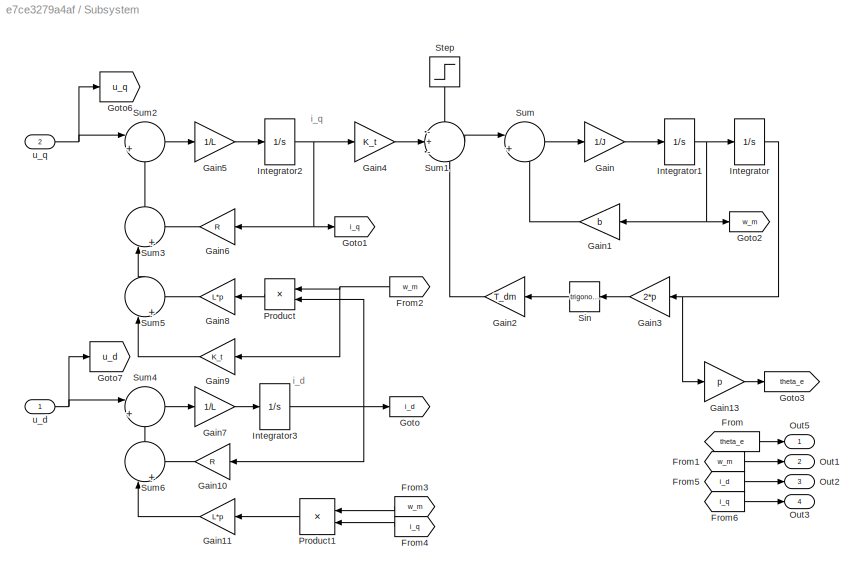
BLOCK [SubSystem] Subsystem
  Ports = [2, 4]
  RequestExecContextInheritance = off
BLOCK [From] Subsystem/From
  GotoTag = theta_e
BLOCK [From] Subsystem/From1
  GotoTag = w_m
BLOCK [From] Subsystem/From2
  GotoTag = w_m
  NameLocation = top
BLOCK [From] Subsystem/From3
  GotoTag = w_m
  NameLocation = top
BLOCK [From] Subsystem/From4
  GotoTag = i_q
  NameLocation = top
BLOCK [From] Subsystem/From5
  GotoTag = i_d
BLOCK [From] Subsystem/From6
  GotoTag = i_q
BLOCK [Gain] Subsystem/Gain
  Gain = 1/J
BLOCK [Gain] Subsystem/Gain1
  Gain = b
  NameLocation = top
BLOCK [Gain] Subsystem/Gain10
  Gain = R
  NameLocation = top
BLOCK [Gain] Subsystem/Gain11
  Gain = L*p
  NameLocation = top
BLOCK [Gain] Subsystem/Gain13
  Gain = p
BLOCK [Gain] Subsystem/Gain2
  Gain = T_dm
  NameLocation = top
BLOCK [Gain] Subsystem/Gain3
  Gain = 2*p
  NameLocation = top
BLOCK [Gain] Subsystem/Gain4
  Gain = K_t
BLOCK [Gain] Subsystem/Gain5
  Gain = 1/L
BLOCK [Gain] Subsystem/Gain6
  Gain = R
  NameLocation = top
BLOCK [Gain] Subsystem/Gain7
  Gain = 1/L
BLOCK [Gain] Subsystem/Gain8
  Gain = L*p
  NameLocation = top
BLOCK [Gain] Subsystem/Gain9
  Gain = K_t
  NameLocation = top
BLOCK [Goto] Subsystem/Goto
  GotoTag = i_d
  NameLocation = top
BLOCK [Goto] Subsystem/Goto1
  GotoTag = i_q
BLOCK [Goto] Subsystem/Goto2
  GotoTag = w_m
BLOCK [Goto] Subsystem/Goto3
  GotoTag = theta_e
BLOCK [Goto] Subsystem/Goto6
  GotoTag = u_q
BLOCK [Goto] Subsystem/Goto7
  GotoTag = u_d
BLOCK [Integrator] Subsystem/Integrator
  Ports = [1, 1]
BLOCK [Integrator] Subsystem/Integrator1
  Ports = [1, 1]
BLOCK [Integrator] Subsystem/Integrator2
  Ports = [1, 1]
BLOCK [Integrator] Subsystem/Integrator3
  Ports = [1, 1]
BLOCK [Outport] Subsystem/Out1
  Port = 2
BLOCK [Outport] Subsystem/Out2
  Port = 3
BLOCK [Outport] Subsystem/Out3
  Port = 4
BLOCK [Outport] Subsystem/Out5
BLOCK [Product] Subsystem/Product
  NameLocation = top
  Ports = [2, 1]
BLOCK [Product] Subsystem/Product1
  NameLocation = top
  Ports = [2, 1]
BLOCK [Trigonometry] Subsystem/Sin
  NameLocation = top
  Ports = [1, 1]
BLOCK [Step] Subsystem/Step
  After = T_load
  NameLocation = left
  SampleTime = 0
  Time = 7
BLOCK [Sum] Subsystem/Sum
  Inputs = |+-
  Ports = [2, 1]
BLOCK [Sum] Subsystem/Sum1
  Inputs = -+-
  Ports = [3, 1]
BLOCK [Sum] Subsystem/Sum2
  Inputs = |+-
  Ports = [2, 1]
BLOCK [Sum] Subsystem/Sum3
  Inputs = |++
  NameLocation = right
  Ports = [2, 1]
BLOCK [Sum] Subsystem/Sum4
  Inputs = |++
  Ports = [2, 1]
BLOCK [Sum] Subsystem/Sum5
  Inputs = |++
  NameLocation = right
  Ports = [2, 1]
BLOCK [Sum] Subsystem/Sum6
  Inputs = |+-
  NameLocation = right
  Ports = [2, 1]
BLOCK [Inport] Subsystem/u_d
BLOCK [Inport] Subsystem/u_q
  Port = 2
BLOCK [Sum] Sum
  Inputs = |++
  Ports = [2, 1]
BLOCK [Sum] Sum1
  Inputs = |++
  Ports = [2, 1]
BLOCK [Sum] Sum10
  Commented = on
  Inputs = |+-
  Ports = [2, 1]
BLOCK [Sum] Sum100
  Commented = on
  Inputs = |++
  NameLocation = right
  Ports = [2, 1]
BLOCK [Sum] Sum11
  Commented = on
  Inputs = |+-
  Ports = [2, 1]
BLOCK [Sum] Sum12
  Commented = on
  Inputs = |+-
  Ports = [2, 1]
BLOCK [Sum] Sum13
  Commented = on
  Inputs = |+-
  Ports = [2, 1]
BLOCK [Sum] Sum14
  Commented = on
  Inputs = -+-
  Ports = [3, 1]
BLOCK [Sum] Sum15
  Commented = on
  Inputs = |++
  Ports = [2, 1]
BLOCK [Sum] Sum16
  Commented = on
  Inputs = |++
  Ports = [2, 1]
BLOCK [Sum] Sum17
  Commented = on
  Inputs = |+-
  NameLocation = right
  Ports = [2, 1]
BLOCK [Sum] Sum18
  Commented = on
  Inputs = |+-
  Ports = [2, 1]
BLOCK [Sum] Sum19
  Commented = on
  Inputs = |+-
  Ports = [2, 1]
BLOCK [Sum] Sum2
  Commented = on
  Inputs = |++
  Ports = [2, 1]
BLOCK [Sum] Sum20
  Commented = on
  Inputs = |+-
  Ports = [2, 1]
BLOCK [Sum] Sum21
  Commented = on
  Inputs = |-+
  Ports = [2, 1]
BLOCK [Sum] Sum22
  Commented = on
  Inputs = |+-
  Ports = [2, 1]
BLOCK [Sum] Sum23
  Commented = on
  Inputs = |++
  NameLocation = right
  Ports = [2, 1]
BLOCK [Sum] Sum24
  Commented = on
  Inputs = |+-
  Ports = [2, 1]
BLOCK [Sum] Sum25
  Commented = on
  Inputs = |+-
  Ports = [2, 1]
BLOCK [Sum] Sum26
  Commented = on
  Inputs = |-+
  Ports = [2, 1]
BLOCK [Sum] Sum27
  Commented = on
  Inputs = |+-
  Ports = [2, 1]
BLOCK [Sum] Sum28
  Commented = on
  Inputs = |+-
  Ports = [2, 1]
BLOCK [Sum] Sum29
  Commented = on
  Inputs = -+|
  Ports = [2, 1]
BLOCK [Sum] Sum3
  Commented = on
  Inputs = |++
  Ports = [2, 1]
BLOCK [Sum] Sum30
  Commented = on
  Inputs = |+-
  Ports = [2, 1]
BLOCK [Sum] Sum31
  Commented = on
  Inputs = -+|
  Ports = [2, 1]
BLOCK [Sum] Sum32
  Commented = on
  Inputs = |+-
  Ports = [2, 1]
BLOCK [Sum] Sum33
  Commented = on
  Inputs = -+-
  Ports = [3, 1]
BLOCK [Sum] Sum34
  Commented = on
  Inputs = |++
  Ports = [2, 1]
BLOCK [Sum] Sum35
  Commented = on
  Inputs = |++
  Ports = [2, 1]
BLOCK [Sum] Sum36
  Commented = on
  Inputs = |+-
  NameLocation = right
  Ports = [2, 1]
BLOCK [Sum] Sum37
  Commented = on
  Inputs = |+-
  Ports = [2, 1]
BLOCK [Sum] Sum38
  Commented = on
  Inputs = |++
  NameLocation = right
  Ports = [2, 1]
BLOCK [Sum] Sum39
  Commented = on
  Inputs = |+-
  Ports = [2, 1]
BLOCK [Sum] Sum4
  Commented = on
  Inputs = |++
  Ports = [2, 1]
BLOCK [Sum] Sum40
  Commented = on
  Inputs = |+-
  Ports = [2, 1]
BLOCK [Sum] Sum41
  Commented = on
  Inputs = -+-
  Ports = [3, 1]
BLOCK [Sum] Sum42
  Commented = on
  Inputs = |+-
  Ports = [2, 1]
BLOCK [Sum] Sum43
  Commented = on
  Inputs = |++
  NameLocation = right
  Ports = [2, 1]
BLOCK [Sum] Sum44
  Commented = on
  Inputs = |++
  Ports = [2, 1]
BLOCK [Sum] Sum45
  Commented = on
  Inputs = |++
  NameLocation = right
  Ports = [2, 1]
BLOCK [Sum] Sum46
  Commented = on
  Inputs = |+-
  NameLocation = right
  Ports = [2, 1]
BLOCK [Sum] Sum47
  Commented = on
  Inputs = |+-
  Ports = [2, 1]
BLOCK [Sum] Sum48
  Commented = on
  Inputs = |+-
  Ports = [2, 1]
BLOCK [Sum] Sum49
  Inputs = |+-
  Ports = [2, 1]
BLOCK [Sum] Sum5
  Commented = on
  Inputs = |++
  Ports = [2, 1]
BLOCK [Sum] Sum50
  Inputs = |+-
  Ports = [2, 1]
BLOCK [Sum] Sum51
  Inputs = |+-
  Ports = [2, 1]
BLOCK [Sum] Sum52
  Inputs = |+-
  Ports = [2, 1]
BLOCK [Sum] Sum53
  Commented = on
  Inputs = |+-
  Ports = [2, 1]
BLOCK [Sum] Sum54
  Commented = on
  Inputs = |++
  Ports = [2, 1]
BLOCK [Sum] Sum55
  Commented = on
  Inputs = |++
  NameLocation = right
  Ports = [2, 1]
BLOCK [Sum] Sum56
  Commented = on
  Inputs = |++
  NameLocation = right
  Ports = [2, 1]
BLOCK [Sum] Sum57
  Commented = on
  Inputs = |+-
  Ports = [2, 1]
BLOCK [Sum] Sum58
  Commented = on
  Inputs = -+-
  Ports = [3, 1]
BLOCK [Sum] Sum59
  Commented = on
  Inputs = |+-
  Ports = [2, 1]
BLOCK [Sum] Sum6
  Commented = on
  Inputs = |+-
  Ports = [2, 1]
BLOCK [Sum] Sum60
  Commented = on
  Inputs = |++
  NameLocation = right
  Ports = [2, 1]
BLOCK [Sum] Sum61
  Commented = on
  Inputs = |++
  Ports = [2, 1]
BLOCK [Sum] Sum62
  Commented = on
  Inputs = |++
  NameLocation = right
  Ports = [2, 1]
BLOCK [Sum] Sum63
  Commented = on
  Inputs = |+-
  NameLocation = right
  Ports = [2, 1]
BLOCK [Sum] Sum64
  Commented = on
  Inputs = |+-
  Ports = [2, 1]
BLOCK [Sum] Sum65
  Commented = on
  Inputs = -+-
  Ports = [3, 1]
BLOCK [Sum] Sum66
  Commented = on
  Inputs = |+-
  Ports = [2, 1]
BLOCK [Sum] Sum67
  Commented = on
  Inputs = |++
  NameLocation = right
  Ports = [2, 1]
BLOCK [Sum] Sum68
  Commented = on
  Inputs = |++
  Ports = [2, 1]
BLOCK [Sum] Sum69
  Commented = on
  Inputs = |++
  NameLocation = right
  Ports = [2, 1]
BLOCK [Sum] Sum7
  Commented = on
  Inputs = |+-
  Ports = [2, 1]
BLOCK [Sum] Sum70
  Commented = on
  Inputs = |+-
  NameLocation = right
  Ports = [2, 1]
BLOCK [Sum] Sum71
  Commented = on
  Inputs = |+-
  Ports = [2, 1]
BLOCK [Sum] Sum72
  Commented = on
  Inputs = |+-
  Ports = [2, 1]
BLOCK [Sum] Sum73
  Commented = on
  Inputs = |+-
  Ports = [2, 1]
BLOCK [Sum] Sum74
  Commented = on
  Inputs = |++
  Ports = [2, 1]
BLOCK [Sum] Sum75
  Commented = on
  Inputs = |++
  NameLocation = right
  Ports = [2, 1]
BLOCK [Sum] Sum76
  Commented = on
  Inputs = |++
  NameLocation = right
  Ports = [2, 1]
BLOCK [Sum] Sum77
  Inputs = |+-
  Ports = [2, 1]
BLOCK [Sum] Sum78
  Inputs = -+-
  Ports = [3, 1]
BLOCK [Sum] Sum79
  Inputs = |+-
  Ports = [2, 1]
BLOCK [Sum] Sum8
  Commented = on
  Inputs = |+-
  Ports = [2, 1]
BLOCK [Sum] Sum80
  Inputs = |++
  NameLocation = right
  Ports = [2, 1]
BLOCK [Sum] Sum81
  Inputs = |++
  Ports = [2, 1]
BLOCK [Sum] Sum82
  Inputs = |++
  NameLocation = right
  Ports = [2, 1]
BLOCK [Sum] Sum83
  Inputs = |+-
  NameLocation = right
  Ports = [2, 1]
BLOCK [Sum] Sum84
  Commented = on
  Inputs = -+-
  Ports = [3, 1]
BLOCK [Sum] Sum85
  Commented = on
  Inputs = |+-
  Ports = [2, 1]
BLOCK [Sum] Sum86
  Commented = on
  Inputs = |++
  NameLocation = right
  Ports = [2, 1]
BLOCK [Sum] Sum87
  Commented = on
  Inputs = |++
  Ports = [2, 1]
BLOCK [Sum] Sum88
  Commented = on
  Inputs = |++
  NameLocation = right
  Ports = [2, 1]
BLOCK [Sum] Sum89
  Commented = on
  Inputs = |+-
  NameLocation = right
  Ports = [2, 1]
BLOCK [Sum] Sum9
  Commented = on
  Inputs = |+-
  Ports = [2, 1]
BLOCK [Sum] Sum90
  Commented = on
  Inputs = |++
  Ports = [2, 1]
BLOCK [Sum] Sum91
  Commented = on
  Inputs = |++
  Ports = [2, 1]
BLOCK [Sum] Sum92
  Commented = on
  Inputs = |+-
  Ports = [2, 1]
BLOCK [Sum] Sum93
  Commented = on
  Inputs = -+-
  Ports = [3, 1]
BLOCK [Sum] Sum94
  Commented = on
  Inputs = |+-
  Ports = [2, 1]
BLOCK [Sum] Sum95
  Commented = on
  Inputs = |++
  NameLocation = right
  Ports = [2, 1]
BLOCK [Sum] Sum96
  Commented = on
  Inputs = |++
  Ports = [2, 1]
BLOCK [Sum] Sum97
  Commented = on
  Inputs = |++
  NameLocation = right
  Ports = [2, 1]
BLOCK [Sum] Sum98
  Commented = on
  Inputs = |+-
  NameLocation = right
  Ports = [2, 1]
BLOCK [Sum] Sum99
  Commented = on
  Inputs = |++
  NameLocation = right
  Ports = [2, 1]
BLOCK [Reference] Synchronous Reluctance Machine  REF=ee_lib/Electromechanical/Reluctance & Stepper/Synchronous
Reluctance Machine
  Commented = on
  Ports = [0, 0, 0, 0, 0, 2, 2]
  SourceBlock = ee_lib/Electromechanical/Reluctance & Stepper/Synchronous\nReluctance Machine
  SourceProductBaseCode = PS
  SourceType = Synchronous\nReluctance Machine
BLOCK [Terminator] Terminator
  Commented = on
BLOCK [Terminator] Terminator1
  Commented = on
BLOCK [ToWorkspace] To Workspace
  FixptAsFi = on
  MaxDataPoints = inf
  Ports = [1]
  SampleTime = -1
  SaveFormat = Timeseries
  VariableName = simout
BLOCK [ToWorkspace] To Workspace1
  FixptAsFi = on
  MaxDataPoints = inf
  Ports = [1]
  SampleTime = -1
  SaveFormat = Timeseries
  VariableName = simout1
BLOCK [ToWorkspace] To Workspace2
  Commented = on
  FixptAsFi = on
  MaxDataPoints = inf
  Ports = [1]
  SampleTime = -1
  SaveFormat = Timeseries
  VariableName = simout2
BLOCK [ToWorkspace] To Workspace3
  Commented = on
  FixptAsFi = on
  MaxDataPoints = inf
  Ports = [1]
  SampleTime = -1
  SaveFormat = Timeseries
  VariableName = simout3
BLOCK [ToWorkspace] To Workspace4
  Commented = on
  FixptAsFi = on
  MaxDataPoints = inf
  Ports = [1]
  SampleTime = -1
  SaveFormat = Timeseries
  VariableName = simout4
BLOCK [ToWorkspace] To Workspace5
  Commented = on
  FixptAsFi = on
  MaxDataPoints = inf
  Ports = [1]
  SampleTime = -1
  SaveFormat = Timeseries
  VariableName = simout5
BLOCK [ToWorkspace] To Workspace6
  Commented = on
  FixptAsFi = on
  MaxDataPoints = inf
  Ports = [1]
  SampleTime = -1
  SaveFormat = Timeseries
  VariableName = simout6
BLOCK [SubSystem] Two-phase SVM
  Commented = on
  ErrorFcn = Stateflow.Translate.translate
  PermitHierarchicalResolution = ExplicitOnly
  Ports = [4, 4]
  RequestExecContextInheritance = off
  SFBlockType = MATLAB Function
  TreatAsAtomicUnit = on
BLOCK [Demux] Two-phase SVM/ Demux 
  Outputs = 1
  Ports = [1, 1]
BLOCK [S-Function] Two-phase SVM/ SFunction 
  EnableBusSupport = on
  FunctionName = sf_sfun
  PortCounts = [4 5]
  Ports = [4, 5]
  SFcnIsStateOwnerBlock = off
  SFunctionDeploymentMode = off
  Tag = Stateflow S-Function 5
BLOCK [Terminator] Two-phase SVM/ Terminator 
BLOCK [Outport] Two-phase SVM/DC_PWM1
BLOCK [Outport] Two-phase SVM/DC_PWM3
  Port = 2
BLOCK [Outport] Two-phase SVM/DC_PWM5
  Port = 3
BLOCK [Outport] Two-phase SVM/DC_PWM7
  Port = 4
BLOCK [Inport] Two-phase SVM/Ts
  Port = 4
BLOCK [Inport] Two-phase SVM/U
  Port = 3
BLOCK [Inport] Two-phase SVM/Ua
BLOCK [Inport] Two-phase SVM/Ub
  Port = 2
BLOCK [SubSystem] Two-phase SVM1
  Commented = on
  ErrorFcn = Stateflow.Translate.translate
  PermitHierarchicalResolution = ExplicitOnly
  Ports = [4, 4]
  RequestExecContextInheritance = off
  SFBlockType = MATLAB Function
  TreatAsAtomicUnit = on
BLOCK [Demux] Two-phase SVM1/ Demux 
  Outputs = 1
  Ports = [1, 1]
BLOCK [S-Function] Two-phase SVM1/ SFunction 
  EnableBusSupport = on
  FunctionName = sf_sfun
  PortCounts = [4 5]
  Ports = [4, 5]
  SFcnIsStateOwnerBlock = off
  SFunctionDeploymentMode = off
  Tag = Stateflow S-Function 6
BLOCK [Terminator] Two-phase SVM1/ Terminator 
BLOCK [Outport] Two-phase SVM1/DC_PWM1
BLOCK [Outport] Two-phase SVM1/DC_PWM3
  Port = 2
BLOCK [Outport] Two-phase SVM1/DC_PWM5
  Port = 3
BLOCK [Outport] Two-phase SVM1/DC_PWM7
  Port = 4
BLOCK [Inport] Two-phase SVM1/Ts
  Port = 4
BLOCK [Inport] Two-phase SVM1/U
  Port = 3
BLOCK [Inport] Two-phase SVM1/Ua
BLOCK [Inport] Two-phase SVM1/Ub
  Port = 2
BLOCK [SubSystem] Two-phase SVM2
  Commented = on
  ErrorFcn = Stateflow.Translate.translate
  PermitHierarchicalResolution = ExplicitOnly
  Ports = [4, 4]
  RequestExecContextInheritance = off
  SFBlockType = MATLAB Function
  TreatAsAtomicUnit = on
BLOCK [Demux] Two-phase SVM2/ Demux 
  Outputs = 1
  Ports = [1, 1]
BLOCK [S-Function] Two-phase SVM2/ SFunction 
  EnableBusSupport = on
  FunctionName = sf_sfun
  PortCounts = [4 5]
  Ports = [4, 5]
  SFcnIsStateOwnerBlock = off
  SFunctionDeploymentMode = off
  Tag = Stateflow S-Function 13
BLOCK [Terminator] Two-phase SVM2/ Terminator 
BLOCK [Outport] Two-phase SVM2/DC_PWM1
BLOCK [Outport] Two-phase SVM2/DC_PWM3
  Port = 2
BLOCK [Outport] Two-phase SVM2/DC_PWM5
  Port = 3
BLOCK [Outport] Two-phase SVM2/DC_PWM7
  Port = 4
BLOCK [Inport] Two-phase SVM2/Ts
  Port = 4
BLOCK [Inport] Two-phase SVM2/U
  Port = 3
BLOCK [Inport] Two-phase SVM2/Ua
BLOCK [Inport] Two-phase SVM2/Ub
  Port = 2
BLOCK [SubSystem] Two-phase SVM3
  Commented = on
  ErrorFcn = Stateflow.Translate.translate
  PermitHierarchicalResolution = ExplicitOnly
  Ports = [4, 4]
  RequestExecContextInheritance = off
  SFBlockType = MATLAB Function
  TreatAsAtomicUnit = on
BLOCK [Demux] Two-phase SVM3/ Demux 
  Outputs = 1
  Ports = [1, 1]
BLOCK [S-Function] Two-phase SVM3/ SFunction 
  EnableBusSupport = on
  FunctionName = sf_sfun
  PortCounts = [4 5]
  Ports = [4, 5]
  SFcnIsStateOwnerBlock = off
  SFunctionDeploymentMode = off
  Tag = Stateflow S-Function 12
BLOCK [Terminator] Two-phase SVM3/ Terminator 
BLOCK [Outport] Two-phase SVM3/DC_PWM1
BLOCK [Outport] Two-phase SVM3/DC_PWM3
  Port = 2
BLOCK [Outport] Two-phase SVM3/DC_PWM5
  Port = 3
BLOCK [Outport] Two-phase SVM3/DC_PWM7
  Port = 4
BLOCK [Inport] Two-phase SVM3/Ts
  Port = 4
BLOCK [Inport] Two-phase SVM3/U
  Port = 3
BLOCK [Inport] Two-phase SVM3/Ua
BLOCK [Inport] Two-phase SVM3/Ub
  Port = 2
BLOCK [SubSystem] Two-phase SVM4
  Commented = on
  ErrorFcn = Stateflow.Translate.translate
  PermitHierarchicalResolution = ExplicitOnly
  Ports = [4, 4]
  RequestExecContextInheritance = off
  SFBlockType = MATLAB Function
  TreatAsAtomicUnit = on
BLOCK [Demux] Two-phase SVM4/ Demux 
  Outputs = 1
  Ports = [1, 1]
BLOCK [S-Function] Two-phase SVM4/ SFunction 
  EnableBusSupport = on
  FunctionName = sf_sfun
  PortCounts = [4 5]
  Ports = [4, 5]
  SFcnIsStateOwnerBlock = off
  SFunctionDeploymentMode = off
  Tag = Stateflow S-Function 14
BLOCK [Terminator] Two-phase SVM4/ Terminator 
BLOCK [Outport] Two-phase SVM4/DC_PWM1
BLOCK [Outport] Two-phase SVM4/DC_PWM3
  Port = 2
BLOCK [Outport] Two-phase SVM4/DC_PWM5
  Port = 3
BLOCK [Outport] Two-phase SVM4/DC_PWM7
  Port = 4
BLOCK [Inport] Two-phase SVM4/Ts
  Port = 4
BLOCK [Inport] Two-phase SVM4/U
  Port = 3
BLOCK [Inport] Two-phase SVM4/Ua
BLOCK [Inport] Two-phase SVM4/Ub
  Port = 2
BLOCK [Reference] Voltage Measurement  REF=powerlib/Measurements/Voltage Measurement
  Commented = on
  Ports = [0, 1, 0, 0, 0, 2]
  SourceBlock = powerlib/Measurements/Voltage Measurement
  SourceProductBaseCode = PS
  SourceType = Voltage Measurement
  UserDataPersistent = on
BLOCK [Reference] Voltage Sensor  REF=fl_lib/Electrical/Electrical Sensors/Voltage Sensor
  Commented = on
  NameLocation = right
  Ports = [0, 0, 0, 0, 0, 1, 2]
  SourceBlock = fl_lib/Electrical/Electrical Sensors/Voltage Sensor
  SourceProductBaseCode = SS
  SourceType = Voltage Sensor
BLOCK [Reference] Voltage Sensor1  REF=fl_lib/Electrical/Electrical Sensors/Voltage Sensor
  Commented = on
  NameLocation = right
  Ports = [0, 0, 0, 0, 0, 1, 2]
  SourceBlock = fl_lib/Electrical/Electrical Sensors/Voltage Sensor
  SourceProductBaseCode = SS
  SourceType = Voltage Sensor
BLOCK [Reference] Voltage Sensor2  REF=fl_lib/Electrical/Electrical Sensors/Voltage Sensor
  Commented = on
  Ports = [0, 0, 0, 0, 0, 1, 2]
  SourceBlock = fl_lib/Electrical/Electrical Sensors/Voltage Sensor
  SourceProductBaseCode = SS
  SourceType = Voltage Sensor
BLOCK [Reference] Voltage Sensor3  REF=fl_lib/Electrical/Electrical Sensors/Voltage Sensor
  Commented = on
  Ports = [0, 0, 0, 0, 0, 1, 2]
  SourceBlock = fl_lib/Electrical/Electrical Sensors/Voltage Sensor
  SourceProductBaseCode = SS
  SourceType = Voltage Sensor
BLOCK [Reference] Voltage Sensor4  REF=fl_lib/Electrical/Electrical Sensors/Voltage Sensor
  Commented = on
  NameLocation = right
  Ports = [0, 0, 0, 0, 0, 1, 2]
  SourceBlock = fl_lib/Electrical/Electrical Sensors/Voltage Sensor
  SourceProductBaseCode = SS
  SourceType = Voltage Sensor
BLOCK [Reference] Voltage Sensor5  REF=fl_lib/Electrical/Electrical Sensors/Voltage Sensor
  Commented = on
  Ports = [0, 0, 0, 0, 0, 1, 2]
  SourceBlock = fl_lib/Electrical/Electrical Sensors/Voltage Sensor
  SourceProductBaseCode = SS
  SourceType = Voltage Sensor
BLOCK [Reference] Voltage Sensor6  REF=fl_lib/Electrical/Electrical Sensors/Voltage Sensor
  Commented = on
  Ports = [0, 0, 0, 0, 0, 1, 2]
  SourceBlock = fl_lib/Electrical/Electrical Sensors/Voltage Sensor
  SourceProductBaseCode = SS
  SourceType = Voltage Sensor
BLOCK [Reference] Voltage Sensor7  REF=fl_lib/Electrical/Electrical Sensors/Voltage Sensor
  Commented = on
  NameLocation = top
  Ports = [0, 0, 0, 0, 0, 1, 2]
  SourceBlock = fl_lib/Electrical/Electrical Sensors/Voltage Sensor
  SourceProductBaseCode = SS
  SourceType = Voltage Sensor
BLOCK [Reference] Voltage Sensor8  REF=fl_lib/Electrical/Electrical Sensors/Voltage Sensor
  Commented = on
  NameLocation = right
  Ports = [0, 0, 0, 0, 0, 1, 2]
  SourceBlock = fl_lib/Electrical/Electrical Sensors/Voltage Sensor
  SourceProductBaseCode = SS
  SourceType = Voltage Sensor
BLOCK [Reference] Voltage Sensor9  REF=fl_lib/Electrical/Electrical Sensors/Voltage Sensor
  Commented = on
  NameLocation = right
  Ports = [0, 0, 0, 0, 0, 1, 2]
  SourceBlock = fl_lib/Electrical/Electrical Sensors/Voltage Sensor
  SourceProductBaseCode = SS
  SourceType = Voltage Sensor
BLOCK [Reference] Voltage Source  REF=ee_lib/Sources/Voltage Source
  Commented = on
  NameLocation = right
  Ports = [0, 0, 0, 0, 0, 1, 1]
  SourceBlock = ee_lib/Sources/Voltage Source
  SourceProductBaseCode = PS
  SourceType = Voltage Source
BLOCK [Reference] Voltage Source1  REF=ee_lib/Sources/Voltage Source
  Commented = on
  NameLocation = right
  Ports = [0, 0, 0, 0, 0, 1, 1]
  SourceBlock = ee_lib/Sources/Voltage Source
  SourceProductBaseCode = PS
  SourceType = Voltage Source
BLOCK [Reference] Voltage Source2  REF=ee_lib/Sources/Voltage Source
  Commented = on
  NameLocation = right
  Ports = [0, 0, 0, 0, 0, 1, 1]
  SourceBlock = ee_lib/Sources/Voltage Source
  SourceProductBaseCode = PS
  SourceType = Voltage Source
BLOCK [Reference] Voltage Source3  REF=ee_lib/Sources/Voltage Source
  Commented = on
  NameLocation = right
  Ports = [0, 0, 0, 0, 0, 1, 1]
  SourceBlock = ee_lib/Sources/Voltage Source
  SourceProductBaseCode = PS
  SourceType = Voltage Source
BLOCK [Reference] Voltage Source4  REF=ee_lib/Sources/Voltage Source
  Commented = on
  NameLocation = right
  Ports = [0, 0, 0, 0, 0, 1, 1]
  SourceBlock = ee_lib/Sources/Voltage Source
  SourceProductBaseCode = PS
  SourceType = Voltage Source
BLOCK [Reference] Voltage Source5  REF=ee_lib/Sources/Voltage Source
  Commented = on
  NameLocation = right
  Ports = [0, 0, 0, 0, 0, 1, 1]
  SourceBlock = ee_lib/Sources/Voltage Source
  SourceProductBaseCode = PS
  SourceType = Voltage Source
BLOCK [Reference] Voltage Source6  REF=ee_lib/Sources/Voltage Source
  Commented = on
  NameLocation = right
  Ports = [0, 0, 0, 0, 0, 1, 1]
  SourceBlock = ee_lib/Sources/Voltage Source
  SourceProductBaseCode = PS
  SourceType = Voltage Source
BLOCK [Reference] Voltage Source7  REF=ee_lib/Sources/Voltage Source
  Commented = on
  NameLocation = right
  Ports = [0, 0, 0, 0, 0, 1, 1]
  SourceBlock = ee_lib/Sources/Voltage Source
  SourceProductBaseCode = PS
  SourceType = Voltage Source
BLOCK [Reference] Voltage Source8  REF=ee_lib/Sources/Voltage Source
  Commented = on
  NameLocation = right
  Ports = [0, 0, 0, 0, 0, 1, 1]
  SourceBlock = ee_lib/Sources/Voltage Source
  SourceProductBaseCode = PS
  SourceType = Voltage Source
BLOCK [ZeroOrderHold] Zero-Order Hold
  Commented = on
  SampleTime = 25e-6
BLOCK [ZeroOrderHold] Zero-Order Hold1
  Commented = on
  SampleTime = 25e-6
BLOCK [ZeroOrderHold] Zero-Order Hold10
  Commented = on
  SampleTime = 50e-6
BLOCK [ZeroOrderHold] Zero-Order Hold11
  Commented = on
  SampleTime = 50e-6
BLOCK [ZeroOrderHold] Zero-Order Hold12
  Commented = on
  SampleTime = 5e-6
BLOCK [ZeroOrderHold] Zero-Order Hold13
  Commented = on
  SampleTime = 5e-6
BLOCK [ZeroOrderHold] Zero-Order Hold14
  Commented = on
  SampleTime = 20e-6
BLOCK [ZeroOrderHold] Zero-Order Hold15
  Commented = on
  SampleTime = 20e-6
BLOCK [ZeroOrderHold] Zero-Order Hold16
  Commented = on
  SampleTime = 20e-6
BLOCK [ZeroOrderHold] Zero-Order Hold17
  Commented = on
  SampleTime = 20e-6
BLOCK [ZeroOrderHold] Zero-Order Hold18
  Commented = on
  SampleTime = 20e-6
BLOCK [ZeroOrderHold] Zero-Order Hold19
  Commented = on
  SampleTime = 20e-6
BLOCK [ZeroOrderHold] Zero-Order Hold2
  Commented = on
  SampleTime = 12.5e-6
BLOCK [ZeroOrderHold] Zero-Order Hold20
  NameLocation = top
  SampleTime = 50e-6
BLOCK [ZeroOrderHold] Zero-Order Hold21
  NameLocation = top
  SampleTime = 50e-6
BLOCK [ZeroOrderHold] Zero-Order Hold22
  Commented = on
  NameLocation = top
  SampleTime = 50e-6
BLOCK [ZeroOrderHold] Zero-Order Hold23
  Commented = on
  NameLocation = top
  SampleTime = 50e-6
BLOCK [ZeroOrderHold] Zero-Order Hold24
  Commented = on
  SampleTime = 50e-6
BLOCK [ZeroOrderHold] Zero-Order Hold25
  Commented = on
  SampleTime = 50e-6
BLOCK [ZeroOrderHold] Zero-Order Hold26
  Commented = on
  NameLocation = top
  SampleTime = 50e-6
BLOCK [ZeroOrderHold] Zero-Order Hold27
  Commented = on
  NameLocation = top
  SampleTime = 50e-6
BLOCK [ZeroOrderHold] Zero-Order Hold28
  Commented = on
  SampleTime = 50e-6
BLOCK [ZeroOrderHold] Zero-Order Hold29
  Commented = on
  SampleTime = 50e-6
BLOCK [ZeroOrderHold] Zero-Order Hold3
  Commented = on
  SampleTime = 12.5e-6
BLOCK [ZeroOrderHold] Zero-Order Hold30
  SampleTime = 50e-6
BLOCK [ZeroOrderHold] Zero-Order Hold31
  SampleTime = 50e-6
BLOCK [ZeroOrderHold] Zero-Order Hold32
  SampleTime = 50e-6
BLOCK [ZeroOrderHold] Zero-Order Hold33
  SampleTime = 50e-6
BLOCK [ZeroOrderHold] Zero-Order Hold34
  SampleTime = 50e-6
BLOCK [ZeroOrderHold] Zero-Order Hold35
  SampleTime = 50e-6
BLOCK [ZeroOrderHold] Zero-Order Hold36
  Commented = on
  SampleTime = 50e-6
BLOCK [ZeroOrderHold] Zero-Order Hold37
  Commented = on
  SampleTime = 50e-6
BLOCK [ZeroOrderHold] Zero-Order Hold38
  Commented = on
  SampleTime = 50e-6
BLOCK [ZeroOrderHold] Zero-Order Hold39
  Commented = on
  SampleTime = 50e-6
BLOCK [ZeroOrderHold] Zero-Order Hold4
  Commented = on
  SampleTime = 25e-6
BLOCK [ZeroOrderHold] Zero-Order Hold40
  Commented = on
  SampleTime = 5e-6
BLOCK [ZeroOrderHold] Zero-Order Hold41
  Commented = on
  SampleTime = 5e-6
BLOCK [ZeroOrderHold] Zero-Order Hold42
  Commented = on
  SampleTime = 20e-6
BLOCK [ZeroOrderHold] Zero-Order Hold43
  Commented = on
  SampleTime = 20e-6
BLOCK [ZeroOrderHold] Zero-Order Hold44
  Commented = on
  SampleTime = 20e-6
BLOCK [ZeroOrderHold] Zero-Order Hold45
  Commented = on
  SampleTime = 20e-6
BLOCK [ZeroOrderHold] Zero-Order Hold46
  Commented = on
  SampleTime = 20e-6
BLOCK [ZeroOrderHold] Zero-Order Hold47
  Commented = on
  SampleTime = 20e-6
BLOCK [ZeroOrderHold] Zero-Order Hold5
  Commented = on
  SampleTime = 25e-6
BLOCK [ZeroOrderHold] Zero-Order Hold6
  Commented = on
  SampleTime = 25e-6
BLOCK [ZeroOrderHold] Zero-Order Hold7
  Commented = on
  SampleTime = 25e-6
BLOCK [ZeroOrderHold] Zero-Order Hold8
  Commented = on
  SampleTime = 25e-6
BLOCK [ZeroOrderHold] Zero-Order Hold9
  Commented = on
  SampleTime = 25e-6
ANNOTATION (root): Load Torque
ANNOTATION (root): i_d
ANNOTATION (root): i_q
ANNOTATION Subsystem: i_d
ANNOTATION Subsystem: i_q
LINE Constant10:1 -> Two-phase SVM4:3
LINE Constant11:1 -> Two-phase SVM4:4
LINE Constant14:1 -> Sum29:2
NET Constant15:1 -> Divide1:2, Divide:2
LINE Constant16:1 -> Sum31:2
LINE Constant17:1 -> Sum48:1
LINE Constant18:1 -> Sum52:1
NET Constant19:1 -> Scope54:2, To Workspace3:1, Zero-Order Hold15:1
LINE Constant1:1 -> Two-phase SVM:4
LINE Constant20:1 -> FCS MPC:7
LINE Constant21:1 -> FCS MPC:8
LINE Constant22:1 -> Sum72:1
NET Constant23:1 -> Scope68:2, Zero-Order Hold31:1
LINE Constant24:1 -> Deadbeat Control:7
LINE Constant25:1 -> Deadbeat Control:8
LINE Constant26:1 -> Zero-Order Hold29:1
LINE Constant27:1 -> Deadbeat Control1:7
LINE Constant28:1 -> Deadbeat Control1:8
LINE Constant29:1 -> Zero-Order Hold43:1
LINE Constant2:1 -> Two-phase SVM1:3
LINE Constant30:1 -> FCS MPC1:7
LINE Constant31:1 -> FCS MPC1:8
LINE Constant3:1 -> Two-phase SVM1:4
LINE Constant4:1 -> Two-phase SVM2:3
LINE Constant5:1 -> Two-phase SVM2:4
LINE Constant6:1 -> Two-phase SVM3:3
LINE Constant7:1 -> Two-phase SVM3:4
LINE Constant:1 -> Two-phase SVM:3
LINE Cos1:1 -> Product3:1
LINE Cos2:1 -> Product9:1
LINE Cos3:1 -> Product7:1
LINE Cos:1 -> Product5:1
LINE Deadbeat Control1:1 -> MATLAB Function24:1
LINE Deadbeat Control1:2 -> MATLAB Function24:2
NET Deadbeat Control:1 -> MATLAB Function20:1, Scope69:1
NET Deadbeat Control:2 -> MATLAB Function20:2, Scope69:2
NET Divide1:1 -> PWM Generator23:1, Sum31:1
NET Divide:1 -> PWM Generator21:1, Scope36:3, Sum29:1
LINE FCS MPC1:1 -> Zero-Order Hold40:1
LINE FCS MPC1:2 -> Zero-Order Hold41:1
LINE FCS MPC:1 -> Zero-Order Hold12:1
LINE FCS MPC:2 -> Zero-Order Hold13:1
LINE From10:1 -> Sin2:1
LINE From11:1 -> Cos1:1
LINE From12:1 -> Gain25:1
LINE From13:1 -> Sin4:1
LINE From14:1 -> Gain31:1
LINE From15:1 -> Cos:1
LINE From16:1 -> Sin5:1
LINE From17:1 -> Cos3:1
LINE From18:1 -> Gain44:1
LINE From19:1 -> Sin6:1
NET From1:1 -> MATLAB Function1:1, Scope1:1
LINE From20:1 -> Gain47:1
LINE From21:1 -> Cos2:1
NET From22:1 -> MATLAB Function9:2, Scope42:2
NET From23:1 -> MATLAB Function9:1, Scope42:1
NET From24:1 -> Gain62:1, Product10:1
LINE From25:1 -> Product11:1
LINE From26:1 -> Product11:2
NET From27:1 -> MATLAB Function10:3, MATLAB Function9:3
NET From28:1 -> MATLAB Function10:1, Scope47:1
NET From29:1 -> MATLAB Function10:2, Scope47:2
LINE From2:1 -> Scope70:1
NET From30:1 -> MATLAB Function12:2, Scope49:2
NET From31:1 -> MATLAB Function12:1, Scope49:1
NET From32:1 -> Gain79:1, Product12:1
LINE From33:1 -> Product13:1
LINE From34:1 -> Product13:2
NET From35:1 -> MATLAB Function11:3, MATLAB Function12:3
NET From36:1 -> MATLAB Function11:1, Scope52:1
NET From37:1 -> MATLAB Function11:2, Scope52:2
LINE From38:1 -> Sum90:1
LINE From3:1 -> Sum2:1
LINE From40:1 -> Zero-Order Hold18:1
LINE From41:1 -> Zero-Order Hold19:1
NET From42:1 -> Gain6:1, Product1:1
LINE From43:1 -> Product18:1
LINE From44:1 -> Zero-Order Hold22:1
NET From45:1 -> MATLAB Function14:2, Scope57:2
NET From46:1 -> MATLAB Function14:1, Scope57:1
NET From47:1 -> Gain92:1, Product14:1
LINE From48:1 -> Product15:1
LINE From49:1 -> Product15:2
LINE From4:1 -> Sum3:1
NET From50:1 -> MATLAB Function13:3, MATLAB Function14:3
NET From51:1 -> MATLAB Function13:1, Scope60:1
NET From52:1 -> MATLAB Function13:2, Scope60:2
NET From53:1 -> Scope61:2, To Workspace4:1, Zero-Order Hold26:1
LINE From54:1 -> MATLAB Function17:3
LINE From55:1 -> MATLAB Function15:3
NET From56:1 -> MATLAB Function19:2, Scope63:2
NET From57:1 -> MATLAB Function19:1, Scope63:1
NET From58:1 -> Gain105:1, Product16:1
LINE From59:1 -> Product17:1
NET From5:1 -> MATLAB Function1:3, MATLAB Function2:3
LINE From60:1 -> Product17:2
NET From61:1 -> MATLAB Function18:3, MATLAB Function19:3
NET From62:1 -> MATLAB Function18:1, Scope66:1
NET From63:1 -> MATLAB Function18:2, Scope66:2
LINE From64:1 -> Sum:1
LINE From65:1 -> Sum1:1
LINE From66:1 -> Zero-Order Hold34:1
LINE From67:1 -> Zero-Order Hold35:1
NET From68:1 -> Scope68:1, To Workspace:1
LINE From69:1 -> Scope67:1
LINE From6:1 -> MATLAB Function2:1
LINE From70:1 -> MATLAB Function21:3
LINE From71:1 -> MATLAB Function20:3
LINE From72:1 -> Product18:2
NET From74:1 -> Gain119:1, Product19:1
LINE From75:1 -> Product20:1
LINE From76:1 -> Sum4:1
LINE From77:1 -> Sum5:1
LINE From78:1 -> Zero-Order Hold38:1
LINE From79:1 -> Zero-Order Hold39:1
LINE From7:1 -> MATLAB Function2:2
LINE From80:1 -> Product20:2
LINE From82:1 -> MATLAB Function25:3
LINE From83:1 -> MATLAB Function24:3
LINE From86:1 -> Sum91:1
LINE From87:1 -> Zero-Order Hold46:1
LINE From88:1 -> Zero-Order Hold47:1
LINE From8:1 -> MATLAB Function4:3
LINE From9:1 -> MATLAB Function5:3
NET From:1 -> MATLAB Function1:2, Scope1:2
LINE Gain100:1 -> Sum78:2
LINE Gain101:1 -> Integrator28:1
LINE Gain102:1 -> Sum80:2
LINE Gain103:1 -> Integrator29:1
LINE Gain104:1 -> Sum82:2
LINE Gain105:1 -> Sum82:1
LINE Gain106:1 -> Sin11:1
LINE Gain107:1 -> Integrator32:1
LINE Gain108:1 -> Sum92:2
LINE Gain109:1 -> Sum98:2
LINE Gain10:1 -> Sum89:1
LINE Gain110:1 -> Sum98:1
LINE Gain111:1 -> Goto42:1
LINE Gain112:1 -> Sum93:3
LINE Gain113:1 -> Sin12:1
LINE Gain114:1 -> Sum93:2
LINE Gain115:1 -> Integrator33:1
LINE Gain116:1 -> Sum95:2
LINE Gain117:1 -> Integrator34:1
LINE Gain118:1 -> Sum97:2
LINE Gain119:1 -> Sum97:1
LINE Gain11:1 -> Goto6:1
LINE Gain12:1 -> MATLAB Function4:2
LINE Gain13:1 -> Sum84:3
LINE Gain14:1 -> MATLAB Function5:1
LINE Gain15:1 -> MATLAB Function5:2
LINE Gain16:1 -> Integrator5:1
LINE Gain17:1 -> Sum13:2
LINE Gain18:1 -> Goto9:1
LINE Gain19:1 -> Sum14:3
LINE Gain1:1 -> Sum84:2
LINE Gain20:1 -> Sin1:1
LINE Gain21:1 -> Product2:2
LINE Gain22:1 -> Sum14:2
LINE Gain23:1 -> Integrator6:1
LINE Gain24:1 -> Sum17:2
LINE Gain25:1 -> Product4:2
LINE Gain26:1 -> Terminator:1
LINE Gain27:1 -> Terminator1:1
LINE Gain29:1 -> Integrator7:1
LINE Gain2:1 -> Integrator3:1
LINE Gain30:1 -> Sum23:2
LINE Gain31:1 -> Product5:2
LINE Gain35:1 -> Integrator9:1
LINE Gain36:1 -> Sum32:2
LINE Gain37:1 -> Goto13:1
LINE Gain38:1 -> Sum33:3
LINE Gain39:1 -> Sin3:1
LINE Gain3:1 -> Sum86:2
LINE Gain40:1 -> Product6:2
LINE Gain41:1 -> Sum33:2
LINE Gain42:1 -> Integrator10:1
LINE Gain43:1 -> Sum36:2
LINE Gain44:1 -> Product8:2
LINE Gain45:1 -> Integrator11:1
LINE Gain46:1 -> Sum38:2
LINE Gain47:1 -> Product9:2
NET Gain48:1 -> Scope37:2, Scope39:1, Sum35:1
NET Gain49:1 -> Scope39:2, Sum37:1
LINE Gain4:1 -> Integrator30:1
LINE Gain50:1 -> Integrator13:1
LINE Gain51:1 -> Sum40:2
LINE Gain52:1 -> Sum46:2
NET Gain53:1 -> Sum46:1, Sum55:2
LINE Gain54:1 -> Goto17:1
LINE Gain55:1 -> Sum41:3
LINE Gain56:1 -> Sin7:1
LINE Gain57:1 -> Sum41:2
LINE Gain58:1 -> Integrator14:1
LINE Gain59:1 -> Sum43:2
LINE Gain5:1 -> Sum88:2
LINE Gain60:1 -> Integrator15:1
LINE Gain61:1 -> Sum45:2
LINE Gain62:1 -> Sum45:1
LINE Gain63:1 -> Sum49:2
LINE Gain64:1 -> Integrator16:1
LINE Gain65:1 -> Integrator17:1
LINE Gain66:1 -> Sum50:2
LINE Gain67:1 -> Integrator19:1
LINE Gain68:1 -> Sum57:2
LINE Gain69:1 -> Sum63:2
LINE Gain6:1 -> Sum88:1
LINE Gain70:1 -> Sum63:1
LINE Gain71:1 -> Goto23:1
LINE Gain72:1 -> Sum58:3
LINE Gain73:1 -> Sin8:1
LINE Gain74:1 -> Sum58:2
LINE Gain75:1 -> Integrator20:1
LINE Gain76:1 -> Sum60:2
LINE Gain77:1 -> Integrator21:1
LINE Gain78:1 -> Sum62:2
LINE Gain79:1 -> Sum62:1
LINE Gain7:1 -> Integrator2:1
LINE Gain80:1 -> Integrator23:1
LINE Gain81:1 -> Sum64:2
LINE Gain82:1 -> Sum70:2
NET Gain83:1 -> Sum70:1, Sum75:2
LINE Gain84:1 -> Goto29:1
LINE Gain85:1 -> Sum65:3
LINE Gain86:1 -> Sin9:1
LINE Gain87:1 -> Sum65:2
LINE Gain88:1 -> Integrator24:1
LINE Gain89:1 -> Sum67:2
LINE Gain8:1 -> Sum6:2
LINE Gain90:1 -> Integrator25:1
LINE Gain91:1 -> Sum69:2
LINE Gain92:1 -> Sum69:1
LINE Gain93:1 -> Integrator27:1
LINE Gain94:1 -> Sum77:2
LINE Gain95:1 -> Sum83:2
LINE Gain96:1 -> Sum83:1
LINE Gain97:1 -> Goto35:1
LINE Gain98:1 -> Sum78:3
LINE Gain99:1 -> Sin10:1
LINE Gain9:1 -> Sum89:2
NET Integrator10:1 -> Gain40:1, Gain43:1, Scope40:1
NET Integrator11:1 -> Gain46:1, Product7:2, Scope40:2
NET Integrator12:1 -> Gain54:1, Gain56:1, Scope41:2
NET Integrator13:1 -> Gain51:1, Goto16:1, Integrator12:1, Scope41:1
NET Integrator14:1 -> Gain57:1, Gain59:1, Goto15:1
NET Integrator15:1 -> Gain52:1, Goto14:1, Product10:2, Zero-Order Hold23:1
NET Integrator16:1 -> Gain63:1, Scope45:1, Zero-Order Hold20:1
NET Integrator17:1 -> Gain66:1, Scope46:1, Zero-Order Hold21:1
NET Integrator18:1 -> Gain71:1, Gain73:1, Scope48:2
NET Integrator19:1 -> Gain68:1, Goto22:1, Integrator18:1, Scope48:1
NET Integrator1:1 -> Gain106:1, Gain11:1
NET Integrator20:1 -> Gain74:1, Gain76:1, Goto21:1
NET Integrator21:1 -> Gain69:1, Goto20:1, Product12:2
NET Integrator22:1 -> Gain84:1, Gain86:1, Scope56:2
NET Integrator23:1 -> Gain81:1, Goto28:1, Integrator22:1, Scope56:1
NET Integrator24:1 -> Gain87:1, Gain89:1, Goto27:1
NET Integrator25:1 -> Gain82:1, Goto26:1, Product14:2, To Workspace6:1, Zero-Order Hold27:1
NET Integrator26:1 -> Gain97:1, Gain99:1, Scope62:2
NET Integrator27:1 -> Gain94:1, Goto34:1, Integrator26:1, Scope62:1
NET Integrator28:1 -> Gain100:1, Gain102:1, Goto33:1
NET Integrator29:1 -> Gain95:1, Goto32:1, Product16:2
NET Integrator2:1 -> Gain8:1, Goto3:1, Integrator1:1
NET Integrator30:1 -> Gain9:1, Goto1:1, Product1:2
NET Integrator31:1 -> Gain111:1, Gain113:1
NET Integrator32:1 -> Gain108:1, Goto41:1, Integrator31:1
NET Integrator33:1 -> Gain114:1, Gain116:1, Goto40:1
NET Integrator34:1 -> Gain109:1, Goto39:1, Product19:2
NET Integrator3:1 -> Gain1:1, Gain3:1, Goto2:1
NET Integrator4:1 -> Gain18:1, Gain20:1, Scope17:2
NET Integrator5:1 -> Gain17:1, Goto8:1, Integrator4:1, Scope17:1
NET Integrator6:1 -> Gain21:1, Gain24:1, Scope22:1
NET Integrator7:1 -> Gain30:1, Product3:2, Scope22:2
NET Integrator8:1 -> Gain37:1, Gain39:1, Scope38:2
NET Integrator9:1 -> Gain36:1, Goto12:1, Integrator8:1, Scope38:1
LINE MATLAB Function10:1 -> Scope44:1
LINE MATLAB Function10:2 -> Scope44:2
LINE MATLAB Function11:1 -> Scope51:1
LINE MATLAB Function11:2 -> Scope51:2
LINE MATLAB Function12:1 -> Scope50:1
LINE MATLAB Function12:2 -> Scope50:2
LINE MATLAB Function13:1 -> Scope59:1
LINE MATLAB Function13:2 -> Scope59:2
LINE MATLAB Function14:1 -> Scope58:1
LINE MATLAB Function14:2 -> Scope58:2
LINE MATLAB Function15:1 -> Modulator:1
LINE MATLAB Function15:2 -> Modulator:2
LINE MATLAB Function17:1 -> Sum66:1
LINE MATLAB Function17:2 -> Sum68:1
LINE MATLAB Function18:1 -> Scope65:1
LINE MATLAB Function18:2 -> Scope65:2
LINE MATLAB Function19:1 -> Scope64:1
LINE MATLAB Function19:2 -> Scope64:2
LINE MATLAB Function1:1 -> Scope2:1
LINE MATLAB Function1:2 -> Scope2:2
LINE MATLAB Function20:1 -> Modulator1:1
LINE MATLAB Function20:2 -> Modulator1:2
NET MATLAB Function21:1 -> Goto36:1, Sum79:1
NET MATLAB Function21:2 -> Goto37:1, Sum81:1
LINE MATLAB Function24:1 -> Modulator2:1
LINE MATLAB Function24:2 -> Modulator2:2
NET MATLAB Function25:1 -> Goto7:1, Sum85:1
NET MATLAB Function25:2 -> Goto38:1, Sum87:1
LINE MATLAB Function2:1 -> Scope5:1
LINE MATLAB Function2:2 -> Scope5:2
NET MATLAB Function4:1 -> Scope15:1, Two-phase SVM1:1
NET MATLAB Function4:2 -> Scope15:2, Two-phase SVM1:2
LINE MATLAB Function5:1 -> Subsystem:1
LINE MATLAB Function5:2 -> Subsystem:2
LINE MATLAB Function9:1 -> Scope43:1
LINE MATLAB Function9:2 -> Scope43:2
LINE Modulator/Constant27:1 -> Modulator/Sum81:2
LINE Modulator/Constant28:1 -> Modulator/Divide4:2
LINE Modulator/Constant29:1 -> Modulator/Sum83:2
LINE Modulator/Constant30:1 -> Modulator/Divide5:2
LINE Modulator/Constant31:1 -> Modulator/Sum85:1
LINE Modulator/Constant32:1 -> Modulator/Sum86:2
LINE Modulator/Divide4:1 -> Modulator/Saturation:1
LINE Modulator/Divide5:1 -> Modulator/Saturation1:1
LINE Modulator/Gain95:1 -> Modulator/u_a:1
LINE Modulator/Gain96:1 -> Modulator/u_b:1
LINE Modulator/PWM Generator29:1 -> Modulator/Sum82:1
LINE Modulator/PWM Generator30:1 -> Modulator/Sum82:2
LINE Modulator/PWM Generator31:1 -> Modulator/Sum84:1
LINE Modulator/PWM Generator32:1 -> Modulator/Sum84:2
NET Modulator/Saturation1:1 -> Modulator/PWM Generator31:1, Modulator/Sum83:1
NET Modulator/Saturation:1 -> Modulator/PWM Generator29:1, Modulator/Sum81:1
LINE Modulator/Sum81:1 -> Modulator/PWM Generator30:1
LINE Modulator/Sum82:1 -> Modulator/Gain95:1
LINE Modulator/Sum83:1 -> Modulator/PWM Generator32:1
LINE Modulator/Sum84:1 -> Modulator/Gain96:1
LINE Modulator/Sum85:1 -> Modulator/Zero-Order Hold30:1
LINE Modulator/Sum86:1 -> Modulator/Zero-Order Hold31:1
LINE Modulator/Zero-Order Hold30:1 -> Modulator/Divide4:1
LINE Modulator/Zero-Order Hold31:1 -> Modulator/Divide5:1
LINE Modulator/u_a*:1 -> Modulator/Sum85:2
LINE Modulator/u_b*:1 -> Modulator/Sum86:1
LINE Modulator1/Constant27:1 -> Modulator1/Sum81:2
LINE Modulator1/Constant28:1 -> Modulator1/Divide4:2
LINE Modulator1/Constant29:1 -> Modulator1/Sum83:2
LINE Modulator1/Constant30:1 -> Modulator1/Divide5:2
LINE Modulator1/Constant31:1 -> Modulator1/Sum85:1
LINE Modulator1/Constant32:1 -> Modulator1/Sum86:2
LINE Modulator1/Divide4:1 -> Modulator1/Saturation:1
LINE Modulator1/Divide5:1 -> Modulator1/Saturation1:1
LINE Modulator1/Gain95:1 -> Modulator1/u_a:1
LINE Modulator1/Gain96:1 -> Modulator1/u_b:1
LINE Modulator1/PWM Generator29:1 -> Modulator1/Sum82:1
LINE Modulator1/PWM Generator30:1 -> Modulator1/Sum82:2
LINE Modulator1/PWM Generator31:1 -> Modulator1/Sum84:1
LINE Modulator1/PWM Generator32:1 -> Modulator1/Sum84:2
NET Modulator1/Saturation1:1 -> Modulator1/PWM Generator31:1, Modulator1/Sum83:1
NET Modulator1/Saturation:1 -> Modulator1/PWM Generator29:1, Modulator1/Sum81:1
LINE Modulator1/Sum81:1 -> Modulator1/PWM Generator30:1
LINE Modulator1/Sum82:1 -> Modulator1/Gain95:1
LINE Modulator1/Sum83:1 -> Modulator1/PWM Generator32:1
LINE Modulator1/Sum84:1 -> Modulator1/Gain96:1
LINE Modulator1/Sum85:1 -> Modulator1/Zero-Order Hold30:1
LINE Modulator1/Sum86:1 -> Modulator1/Zero-Order Hold31:1
LINE Modulator1/Zero-Order Hold30:1 -> Modulator1/Divide4:1
LINE Modulator1/Zero-Order Hold31:1 -> Modulator1/Divide5:1
LINE Modulator1/u_a*:1 -> Modulator1/Sum85:2
LINE Modulator1/u_b*:1 -> Modulator1/Sum86:1
LINE Modulator1:1 -> MATLAB Function21:1
LINE Modulator1:2 -> MATLAB Function21:2
LINE Modulator2/Constant27:1 -> Modulator2/Sum81:2
LINE Modulator2/Constant28:1 -> Modulator2/Divide4:2
LINE Modulator2/Constant29:1 -> Modulator2/Sum83:2
LINE Modulator2/Constant30:1 -> Modulator2/Divide5:2
LINE Modulator2/Constant31:1 -> Modulator2/Sum85:1
LINE Modulator2/Constant32:1 -> Modulator2/Sum86:2
LINE Modulator2/Divide4:1 -> Modulator2/Saturation:1
LINE Modulator2/Divide5:1 -> Modulator2/Saturation1:1
LINE Modulator2/Gain95:1 -> Modulator2/u_a:1
LINE Modulator2/Gain96:1 -> Modulator2/u_b:1
LINE Modulator2/PWM Generator29:1 -> Modulator2/Sum82:1
LINE Modulator2/PWM Generator30:1 -> Modulator2/Sum82:2
LINE Modulator2/PWM Generator31:1 -> Modulator2/Sum84:1
LINE Modulator2/PWM Generator32:1 -> Modulator2/Sum84:2
NET Modulator2/Saturation1:1 -> Modulator2/PWM Generator31:1, Modulator2/Sum83:1
NET Modulator2/Saturation:1 -> Modulator2/PWM Generator29:1, Modulator2/Sum81:1
LINE Modulator2/Sum81:1 -> Modulator2/PWM Generator30:1
LINE Modulator2/Sum82:1 -> Modulator2/Gain95:1
LINE Modulator2/Sum83:1 -> Modulator2/PWM Generator32:1
LINE Modulator2/Sum84:1 -> Modulator2/Gain96:1
LINE Modulator2/Sum85:1 -> Modulator2/Zero-Order Hold30:1
LINE Modulator2/Sum86:1 -> Modulator2/Zero-Order Hold31:1
LINE Modulator2/Zero-Order Hold30:1 -> Modulator2/Divide4:1
LINE Modulator2/Zero-Order Hold31:1 -> Modulator2/Divide5:1
LINE Modulator2/u_a*:1 -> Modulator2/Sum85:2
LINE Modulator2/u_b*:1 -> Modulator2/Sum86:1
LINE Modulator2:1 -> MATLAB Function25:1
LINE Modulator2:2 -> MATLAB Function25:2
LINE Modulator:1 -> MATLAB Function17:1
LINE Modulator:2 -> MATLAB Function17:2
LINE PID Controller1:1 -> Sum49:1
NET PID Controller2:1 -> Scope46:2, Sum50:1
NET PID Controller3:1 -> Scope55:1, Sum54:1
LINE PID Controller4:1 -> Sum47:1
LINE PID Controller5:1 -> Sum74:1
LINE PID Controller6:1 -> Sum71:1
LINE PS-Simulink Converter10:1 -> Scope8:1
LINE PS-Simulink Converter11:1 -> Scope8:2
LINE PS-Simulink Converter12:1 -> Scope9:2
LINE PS-Simulink Converter13:1 -> Scope9:1
LINE PS-Simulink Converter14:1 -> Scope10:3
LINE PS-Simulink Converter15:1 -> Scope23:1
LINE PS-Simulink Converter16:1 -> Scope23:2
LINE PS-Simulink Converter17:1 -> Goto10:1
LINE PS-Simulink Converter18:1 -> Goto11:1
LINE PS-Simulink Converter19:1 -> Scope24:1
LINE PS-Simulink Converter1:1 -> Scope3:2
LINE PS-Simulink Converter20:1 -> Scope24:2
LINE PS-Simulink Converter21:1 -> Scope25:1
LINE PS-Simulink Converter2:1 -> Goto4:1
LINE PS-Simulink Converter3:1 -> Goto5:1
LINE PS-Simulink Converter4:1 -> Scope4:1
LINE PS-Simulink Converter5:1 -> Scope4:2
LINE PS-Simulink Converter6:1 -> Scope6:1
LINE PS-Simulink Converter7:1 -> Scope10:2
LINE PS-Simulink Converter8:1 -> Scope7:1
LINE PS-Simulink Converter9:1 -> Scope7:2
LINE PS-Simulink Converter:1 -> Scope3:1
NET PWM Generator10:1 -> Scope18:2, Sum20:2
NET PWM Generator11:1 -> Scope20:1, Sum19:1
NET PWM Generator12:1 -> Scope20:2, Sum19:2
NET PWM Generator13:1 -> Scope28:2, Sum25:2
NET PWM Generator14:1 -> Scope29:1, Sum24:1
NET PWM Generator15:1 -> Scope29:2, Sum24:2
NET PWM Generator16:1 -> Scope28:1, Sum25:1
NET PWM Generator17:1 -> Scope33:2, Sum28:2
NET PWM Generator18:1 -> Scope34:1, Sum27:1
NET PWM Generator19:1 -> Scope34:2, Sum27:2
NET PWM Generator1:1 -> Scope11:1, Simulink-PS Converter1:1, Sum7:1
NET PWM Generator20:1 -> Scope33:1, Sum28:1
NET PWM Generator21:1 -> Scope36:1, Sum30:1
NET PWM Generator22:1 -> Scope36:2, Sum30:2
LINE PWM Generator23:1 -> Sum39:1
LINE PWM Generator24:1 -> Sum39:2
NET PWM Generator2:1 -> Scope11:2, Simulink-PS Converter2:1, Sum7:2
NET PWM Generator3:1 -> Scope13:1, Simulink-PS Converter3:1, Sum8:1
NET PWM Generator4:1 -> Scope13:2, Simulink-PS Converter4:1, Sum8:2
NET PWM Generator5:1 -> Scope14:1, Sum12:1, Sum9:1
NET PWM Generator6:1 -> Scope14:2, Sum12:2, Sum9:2
NET PWM Generator7:1 -> Scope16:1, Sum10:1, Sum11:1
NET PWM Generator8:1 -> Scope16:2, Sum10:2, Sum11:2
NET PWM Generator9:1 -> Scope18:1, Sum20:1
LINE Product10:1 -> Gain61:1
LINE Product11:1 -> Gain53:1
LINE Product12:1 -> Gain78:1
LINE Product13:1 -> Gain70:1
LINE Product14:1 -> Gain91:1
LINE Product15:1 -> Gain83:1
LINE Product16:1 -> Gain104:1
LINE Product17:1 -> Gain96:1
LINE Product18:1 -> Gain10:1
LINE Product19:1 -> Gain118:1
LINE Product1:1 -> Gain5:1
LINE Product20:1 -> Gain110:1
LINE Product2:1 -> Sum15:1
LINE Product3:1 -> Sum15:2
LINE Product4:1 -> Sum17:1
LINE Product5:1 -> Sum23:1
LINE Product6:1 -> Sum34:1
LINE Product7:1 -> Sum34:2
LINE Product8:1 -> Sum36:1
LINE Product9:1 -> Sum38:1
LINE Random Source10:1 -> Sum2:2
LINE Random Source11:1 -> Sum3:2
LINE Random Source12:1 -> Sum90:2
LINE Random Source13:1 -> Sum91:2
LINE Random Source14:1 -> Sum4:2
LINE Random Source15:1 -> Sum5:2
LINE Random Source18:1 -> Sum100:1
LINE Random Source1:1 -> Sum56:1
LINE Random Source8:1 -> Sum:2
LINE Random Source9:1 -> Sum1:2
LINE Random Source:1 -> Sum55:1
LINE Sin10:1 -> Gain98:1
LINE Sin11:1 -> Gain13:1
LINE Sin12:1 -> Gain112:1
LINE Sin1:1 -> Gain19:1
LINE Sin2:1 -> Product2:1
LINE Sin3:1 -> Gain38:1
LINE Sin4:1 -> Product4:1
LINE Sin5:1 -> Product6:1
LINE Sin6:1 -> Product8:1
LINE Sin7:1 -> Gain55:1
LINE Sin8:1 -> Gain72:1
LINE Sin9:1 -> Gain85:1
LINE Sine Wave10:1 -> Zero-Order Hold6:1
LINE Sine Wave11:1 -> Zero-Order Hold7:1
NET Sine Wave12:1 -> Scope37:1, Zero-Order Hold8:1
LINE Sine Wave13:1 -> Zero-Order Hold9:1
NET Sine Wave1:1 -> Scope12:2, Two-phase SVM:2
LINE Sine Wave4:1 -> Zero-Order Hold:1
LINE Sine Wave5:1 -> Zero-Order Hold1:1
LINE Sine Wave6:1 -> Zero-Order Hold4:1
LINE Sine Wave7:1 -> Zero-Order Hold5:1
LINE Sine Wave8:1 -> Zero-Order Hold2:1
LINE Sine Wave9:1 -> Zero-Order Hold3:1
NET Sine Wave:1 -> Scope10:1, Scope12:1, Two-phase SVM:1
NET Step10:1 -> Scope53:2, Zero-Order Hold14:1
LINE Step11:1 -> Sum65:1
NET Step12:1 -> Scope61:1, Sum73:1, To Workspace5:1
NET Step13:1 -> Scope67:2, Zero-Order Hold30:1
LINE Step14:1 -> Sum78:1
LINE Step15:1 -> Zero-Order Hold28:1
LINE Step16:1 -> Sum84:1
LINE Step17:1 -> Zero-Order Hold42:1
LINE Step18:1 -> Sum93:1
LINE Step1:1 -> MATLAB Function4:1
NET Step2:1 -> Scope6:2, Simulink-PS Converter:1
LINE Step3:1 -> Sum14:1
NET Step4:1 -> Scope25:2, Simulink-PS Converter5:1
LINE Step5:1 -> Sum33:1
LINE Step6:1 -> Sum41:1
LINE Step7:1 -> Sum51:1
NET Step8:1 -> Scope70:2, Sum53:1
LINE Step9:1 -> Sum58:1
LINE Subsystem/From1:1 -> Subsystem/Out1:1
NET Subsystem/From2:1 -> Subsystem/Gain9:1, Subsystem/Product:1
LINE Subsystem/From3:1 -> Subsystem/Product1:1
LINE Subsystem/From4:1 -> Subsystem/Product1:2
LINE Subsystem/From5:1 -> Subsystem/Out2:1
LINE Subsystem/From6:1 -> Subsystem/Out3:1
LINE Subsystem/From:1 -> Subsystem/Out5:1
LINE Subsystem/Gain10:1 -> Subsystem/Sum6:2
LINE Subsystem/Gain11:1 -> Subsystem/Sum6:1
LINE Subsystem/Gain13:1 -> Subsystem/Goto3:1
LINE Subsystem/Gain1:1 -> Subsystem/Sum:2
LINE Subsystem/Gain2:1 -> Subsystem/Sum1:3
LINE Subsystem/Gain3:1 -> Subsystem/Sin:1
LINE Subsystem/Gain4:1 -> Subsystem/Sum1:2
LINE Subsystem/Gain5:1 -> Subsystem/Integrator2:1
LINE Subsystem/Gain6:1 -> Subsystem/Sum3:2
LINE Subsystem/Gain7:1 -> Subsystem/Integrator3:1
LINE Subsystem/Gain8:1 -> Subsystem/Sum5:2
LINE Subsystem/Gain9:1 -> Subsystem/Sum5:1
LINE Subsystem/Gain:1 -> Subsystem/Integrator1:1
NET Subsystem/Integrator1:1 -> Subsystem/Gain1:1, Subsystem/Goto2:1, Subsystem/Integrator:1
NET Subsystem/Integrator2:1 -> Subsystem/Gain4:1, Subsystem/Gain6:1, Subsystem/Goto1:1
NET Subsystem/Integrator3:1 -> Subsystem/Gain10:1, Subsystem/Goto:1, Subsystem/Product:2
NET Subsystem/Integrator:1 -> Subsystem/Gain13:1, Subsystem/Gain3:1
LINE Subsystem/Product1:1 -> Subsystem/Gain11:1
LINE Subsystem/Product:1 -> Subsystem/Gain8:1
LINE Subsystem/Sin:1 -> Subsystem/Gain2:1
LINE Subsystem/Step:1 -> Subsystem/Sum1:1
LINE Subsystem/Sum1:1 -> Subsystem/Sum:1
LINE Subsystem/Sum2:1 -> Subsystem/Gain5:1
LINE Subsystem/Sum3:1 -> Subsystem/Sum2:2
LINE Subsystem/Sum4:1 -> Subsystem/Gain7:1
LINE Subsystem/Sum5:1 -> Subsystem/Sum3:1
LINE Subsystem/Sum6:1 -> Subsystem/Sum4:2
LINE Subsystem/Sum:1 -> Subsystem/Gain:1
NET Subsystem/u_d:1 -> Subsystem/Goto7:1, Subsystem/Sum4:1
NET Subsystem/u_q:1 -> Subsystem/Goto6:1, Subsystem/Sum2:1
LINE Subsystem:2 -> Gain12:1
LINE Sum100:1 -> Sum72:2
LINE Sum10:1 -> Scope16:3
LINE Sum11:1 -> Gain15:1
LINE Sum12:1 -> Gain14:1
LINE Sum13:1 -> Gain16:1
LINE Sum14:1 -> Sum13:1
LINE Sum15:1 -> Gain22:1
LINE Sum16:1 -> Gain23:1
LINE Sum17:1 -> Sum16:2
NET Sum18:1 -> Scope26:3, Scope31:3
NET Sum19:1 -> Gain27:1, Scope20:3
LINE Sum1:1 -> Zero-Order Hold33:1
NET Sum20:1 -> Gain26:1, Scope18:3
LINE Sum21:1 -> Scope30:3
LINE Sum22:1 -> Gain29:1
LINE Sum23:1 -> Sum22:2
NET Sum24:1 -> Gain32:1, Scope29:3
NET Sum25:1 -> Gain28:1, Scope28:3
LINE Sum26:1 -> Scope35:3
NET Sum27:1 -> Gain34:1, Scope34:3
NET Sum28:1 -> Gain33:1, Scope33:3
LINE Sum29:1 -> PWM Generator22:1
NET Sum2:1 -> Scope53:1, Zero-Order Hold16:1
LINE Sum30:1 -> Gain48:1
LINE Sum31:1 -> PWM Generator24:1
LINE Sum32:1 -> Gain35:1
LINE Sum33:1 -> Sum32:1
LINE Sum34:1 -> Gain41:1
LINE Sum35:1 -> Gain42:1
LINE Sum36:1 -> Sum35:2
LINE Sum37:1 -> Gain45:1
LINE Sum38:1 -> Sum37:2
LINE Sum39:1 -> Gain49:1
NET Sum3:1 -> Scope54:1, To Workspace2:1, Zero-Order Hold17:1
LINE Sum40:1 -> Gain50:1
LINE Sum41:1 -> Sum40:1
LINE Sum42:1 -> Gain58:1
LINE Sum43:1 -> Sum42:2
LINE Sum44:1 -> Gain60:1
NET Sum45:1 -> Sum43:1, Sum56:2
LINE Sum46:1 -> Sum44:2
NET Sum47:1 -> Goto19:1, Zero-Order Hold11:1
LINE Sum48:1 -> PID Controller4:1
LINE Sum49:1 -> Gain64:1
LINE Sum4:1 -> Zero-Order Hold36:1
LINE Sum50:1 -> Gain65:1
LINE Sum51:1 -> PID Controller2:1
LINE Sum52:1 -> PID Controller1:1
NET Sum53:1 -> PID Controller3:1, Scope55:2
NET Sum54:1 -> Goto18:1, Zero-Order Hold10:1
LINE Sum55:1 -> Sum47:2
LINE Sum56:1 -> Sum54:2
LINE Sum57:1 -> Gain67:1
LINE Sum58:1 -> Sum57:1
LINE Sum59:1 -> Gain75:1
LINE Sum5:1 -> Zero-Order Hold37:1
LINE Sum60:1 -> Sum59:2
LINE Sum61:1 -> Gain77:1
LINE Sum62:1 -> Sum60:1
LINE Sum63:1 -> Sum61:2
LINE Sum64:1 -> Gain80:1
LINE Sum65:1 -> Sum64:1
LINE Sum66:1 -> Gain88:1
LINE Sum67:1 -> Sum66:2
LINE Sum68:1 -> Gain90:1
NET Sum69:1 -> Sum67:1, Sum76:2
LINE Sum6:1 -> Gain7:1
LINE Sum70:1 -> Sum68:2
NET Sum71:1 -> Goto31:1, Zero-Order Hold25:1
LINE Sum72:1 -> PID Controller6:1
LINE Sum73:1 -> PID Controller5:1
NET Sum74:1 -> Goto30:1, Zero-Order Hold24:1
LINE Sum75:1 -> Sum71:2
LINE Sum76:1 -> Sum74:2
LINE Sum77:1 -> Gain93:1
LINE Sum78:1 -> Sum77:1
LINE Sum79:1 -> Gain101:1
LINE Sum7:1 -> Scope11:3
LINE Sum80:1 -> Sum79:2
LINE Sum81:1 -> Gain103:1
LINE Sum82:1 -> Sum80:1
LINE Sum83:1 -> Sum81:2
LINE Sum84:1 -> Sum6:1
LINE Sum85:1 -> Gain2:1
LINE Sum86:1 -> Sum85:2
LINE Sum87:1 -> Gain4:1
LINE Sum88:1 -> Sum86:1
LINE Sum89:1 -> Sum87:2
LINE Sum8:1 -> Scope13:3
LINE Sum90:1 -> Zero-Order Hold44:1
LINE Sum91:1 -> Zero-Order Hold45:1
LINE Sum92:1 -> Gain107:1
LINE Sum93:1 -> Sum92:1
LINE Sum94:1 -> Gain115:1
LINE Sum95:1 -> Sum94:2
LINE Sum96:1 -> Gain117:1
LINE Sum97:1 -> Sum95:1
LINE Sum98:1 -> Sum96:2
LINE Sum99:1 -> Sum73:2
LINE Sum9:1 -> Scope14:3
LINE Sum:1 -> Zero-Order Hold32:1
LINE Two-phase SVM1:1 -> PWM Generator5:1
LINE Two-phase SVM1:2 -> PWM Generator6:1
LINE Two-phase SVM1:3 -> PWM Generator7:1
LINE Two-phase SVM1:4 -> PWM Generator8:1
NET Two-phase SVM2:1 -> PWM Generator9:1, Scope26:1, Sum18:1
NET Two-phase SVM2:2 -> PWM Generator10:1, Scope26:2, Sum18:2
LINE Two-phase SVM2:3 -> PWM Generator11:1
LINE Two-phase SVM2:4 -> PWM Generator12:1
NET Two-phase SVM3:1 -> PWM Generator16:1, Scope30:1, Sum21:1
NET Two-phase SVM3:2 -> PWM Generator13:1, Scope30:2, Sum21:2
LINE Two-phase SVM3:3 -> PWM Generator14:1
LINE Two-phase SVM3:4 -> PWM Generator15:1
NET Two-phase SVM4:1 -> PWM Generator20:1, Scope35:1, Sum26:1
NET Two-phase SVM4:2 -> PWM Generator17:1, Scope35:2, Sum26:2
LINE Two-phase SVM4:3 -> PWM Generator18:1
LINE Two-phase SVM4:4 -> PWM Generator19:1
LINE Two-phase SVM:1 -> PWM Generator1:1
LINE Two-phase SVM:2 -> PWM Generator2:1
LINE Two-phase SVM:3 -> PWM Generator3:1
LINE Two-phase SVM:4 -> PWM Generator4:1
LINE Zero-Order Hold10:1 -> Sum42:1
LINE Zero-Order Hold11:1 -> Sum44:1
NET Zero-Order Hold12:1 -> Goto24:1, Sum59:1
NET Zero-Order Hold13:1 -> Goto25:1, Sum61:1
LINE Zero-Order Hold14:1 -> FCS MPC:1
LINE Zero-Order Hold15:1 -> FCS MPC:2
LINE Zero-Order Hold16:1 -> FCS MPC:3
LINE Zero-Order Hold17:1 -> FCS MPC:4
LINE Zero-Order Hold18:1 -> FCS MPC:5
LINE Zero-Order Hold19:1 -> FCS MPC:6
NET Zero-Order Hold1:1 -> Scope19:2, Scope31:2, Two-phase SVM2:2
LINE Zero-Order Hold20:1 -> Sum52:2
LINE Zero-Order Hold21:1 -> Sum51:2
LINE Zero-Order Hold22:1 -> Sum53:2
LINE Zero-Order Hold23:1 -> Sum48:2
LINE Zero-Order Hold24:1 -> MATLAB Function15:1
LINE Zero-Order Hold25:1 -> MATLAB Function15:2
LINE Zero-Order Hold26:1 -> Sum99:2
LINE Zero-Order Hold27:1 -> Sum100:2
LINE Zero-Order Hold28:1 -> Deadbeat Control1:1
LINE Zero-Order Hold29:1 -> Deadbeat Control1:2
NET Zero-Order Hold2:1 -> Scope27:1, Two-phase SVM3:1
LINE Zero-Order Hold30:1 -> Deadbeat Control:1
LINE Zero-Order Hold31:1 -> Deadbeat Control:2
LINE Zero-Order Hold32:1 -> Deadbeat Control:3
LINE Zero-Order Hold33:1 -> Deadbeat Control:4
LINE Zero-Order Hold34:1 -> Deadbeat Control:5
LINE Zero-Order Hold35:1 -> Deadbeat Control:6
LINE Zero-Order Hold36:1 -> Deadbeat Control1:3
LINE Zero-Order Hold37:1 -> Deadbeat Control1:4
LINE Zero-Order Hold38:1 -> Deadbeat Control1:5
LINE Zero-Order Hold39:1 -> Deadbeat Control1:6
NET Zero-Order Hold3:1 -> Scope27:2, Two-phase SVM3:2
NET Zero-Order Hold40:1 -> Goto43:1, Sum94:1
NET Zero-Order Hold41:1 -> Goto44:1, Sum96:1
LINE Zero-Order Hold42:1 -> FCS MPC1:1
LINE Zero-Order Hold43:1 -> FCS MPC1:2
LINE Zero-Order Hold44:1 -> FCS MPC1:3
LINE Zero-Order Hold45:1 -> FCS MPC1:4
LINE Zero-Order Hold46:1 -> FCS MPC1:5
LINE Zero-Order Hold47:1 -> FCS MPC1:6
NET Zero-Order Hold4:1 -> Scope21:1, Sum16:1
NET Zero-Order Hold5:1 -> Scope21:2, Sum22:1
NET Zero-Order Hold6:1 -> Scope32:1, Two-phase SVM4:1
NET Zero-Order Hold7:1 -> Scope32:2, Two-phase SVM4:2
LINE Zero-Order Hold8:1 -> Divide:1
LINE Zero-Order Hold9:1 -> Divide1:1
NET Zero-Order Hold:1 -> Scope19:1, Scope31:1, Two-phase SVM2:1
PNET net1: CMOS NOT:LConn1 -- Controlled PWM Voltage1:RConn1 -- Half-Bridge Driver:LConn1 -- Voltage Sensor6:LConn1
PLINE CMOS NOT:RConn1 -- Half-Bridge Driver1:LConn1
PNET net2: Controlled PWM Voltage1:LConn1 -- Voltage Sensor5:LConn1 -- Voltage Source4:LConn1
PNET net3: Controlled PWM Voltage1:LConn2 -- Electrical Reference9:LConn1 -- Voltage Source4:RConn1
PNET net4: Controlled PWM Voltage1:RConn2 -- Electrical Reference12:LConn1 -- Half-Bridge Driver:LConn2
PNET net5: Controlled PWM Voltage:LConn1 -- Voltage Sensor2:LConn1 -- Voltage Source2:LConn1
PNET net6: Controlled PWM Voltage:LConn2 -- Electrical Reference4:LConn1 -- Voltage Source2:RConn1
PNET net7: Controlled PWM Voltage:RConn1 -- H-Bridge2:LConn1 -- Voltage Sensor3:LConn1
PNET net8: Controlled PWM Voltage:RConn2 -- Electrical Reference5:LConn1 -- H-Bridge2:LConn2 -- H-Bridge2:LConn3 -- H-Bridge2:LConn4
PLINE Controlled Voltage Source1:LConn1 -- Current Sensor1:RConn2
PLINE Controlled Voltage Source1:RConn1 -- PS Product3:RConn1
PNET net9: Controlled Voltage Source1:RConn2 -- Electrical Reference:LConn1 -- Solver Configuration:RConn1 -- Voltage Sensor1:RConn2 -- Voltage Source1:RConn1
PNET net10: Controlled Voltage Source2:LConn1 -- Electrical Reference21:LConn1 -- Voltage Sensor8:RConn2 -- Voltage Source7:RConn1
PLINE Controlled Voltage Source2:RConn1 -- PS Product6:RConn1
PLINE Controlled Voltage Source2:RConn2 -- Current Sensor4:RConn2
PLINE Controlled Voltage Source3:LConn1 -- Current Sensor5:RConn2
PLINE Controlled Voltage Source3:RConn1 -- PS Product7:RConn1
PNET net11: Controlled Voltage Source3:RConn2 -- Electrical Reference20:LConn1 -- Solver Configuration4:RConn1 -- Voltage Sensor9:RConn2 -- Voltage Source8:RConn1
PNET net12: Controlled Voltage Source:LConn1 -- Electrical Reference1:LConn1 -- Voltage Sensor:RConn2 -- Voltage Source:RConn1
PLINE Controlled Voltage Source:RConn1 -- PS Product2:RConn1
PLINE Controlled Voltage Source:RConn2 -- Current Sensor:RConn2
PLINE Current Sensor1:LConn1 -- Resistor1:RConn1
PNET net13: Current Sensor1:RConn1 -- PS Product1:LConn2 -- PS-Simulink Converter5:LConn1
PNET net14: Current Sensor2:LConn1 -- Half-Bridge Driver1:RConn2 -- Ideal Semiconductor Switch2:RConn1 -- Ideal Semiconductor Switch3:RConn2 -- Voltage Sensor4:LConn1
PLINE Current Sensor2:RConn1 -- PS-Simulink Converter8:LConn1
PLINE Current Sensor2:RConn2 -- Inductor2:LConn1
PLINE Current Sensor3:LConn1 -- Resistor5:RConn1
PLINE Current Sensor3:RConn1 -- PS-Simulink Converter14:LConn1
PNET net15: Current Sensor3:RConn2 -- Half-Bridge Driver3:RConn2 -- Ideal Semiconductor Switch6:RConn2 -- Ideal Semiconductor Switch7:RConn1 -- Voltage Sensor7:RConn2
PLINE Current Sensor4:LConn1 -- Resistor7:RConn1
PNET net16: Current Sensor4:RConn1 -- PS Gain6:LConn1 -- PS-Simulink Converter19:LConn1
PLINE Current Sensor5:LConn1 -- Resistor8:RConn1
PNET net17: Current Sensor5:RConn1 -- PS Product5:LConn2 -- PS-Simulink Converter20:LConn1
PLINE Current Sensor:LConn1 -- Resistor:RConn1
PNET net18: Current Sensor:RConn1 -- PS Gain:LConn1 -- PS-Simulink Converter4:LConn1
PLINE DC Voltage Source:LConn1 -- Full-Bridge Converter:RConn2
PLINE DC Voltage Source:RConn1 -- Full-Bridge Converter:RConn1
PLINE Electrical Reference10:LConn1 -- Voltage Sensor6:RConn2
PLINE Electrical Reference11:LConn1 -- Voltage Sensor5:RConn2
PNET net19: Electrical Reference13:LConn1 -- Half-Bridge Driver:RConn4 -- Ideal Semiconductor Switch1:RConn2
PNET net20: Electrical Reference14:LConn1 -- Half-Bridge Driver1:LConn2 -- Half-Bridge Driver1:RConn4 -- Ideal Semiconductor Switch2:RConn2
PNET net21: Electrical Reference15:LConn1 -- Half-Bridge Driver2:RConn4 -- Ideal Semiconductor Switch5:RConn2
PNET net22: Electrical Reference16:LConn1 -- Half-Bridge Driver3:RConn4 -- Ideal Semiconductor Switch7:RConn2
PNET net23: Electrical Reference17:LConn1 -- Half-Bridge Driver4:RConn4 -- Ideal Semiconductor Switch9:RConn2
PNET net24: Electrical Reference18:LConn1 -- Half-Bridge Driver5:RConn4 -- Ideal Semiconductor Switch11:RConn2
PNET net25: Electrical Reference19:LConn1 -- Solver Configuration3:RConn1 -- Voltage Source6:RConn1
PLINE Electrical Reference2:LConn1 -- H-Bridge2:RConn4
PNET net26: Electrical Reference3:LConn1 -- Solver Configuration1:RConn1 -- Voltage Source3:RConn1
PLINE Electrical Reference6:LConn1 -- Voltage Sensor3:RConn2
PLINE Electrical Reference7:LConn1 -- Voltage Sensor2:RConn2
PNET net27: Electrical Reference8:LConn1 -- Solver Configuration2:RConn1 -- Voltage Source5:RConn1
PLINE Full-Bridge Converter:LConn1 -- Stepper Motor:LConn4
PLINE Full-Bridge Converter:LConn2 -- Stepper Motor:LConn3
PLINE H-Bridge2:RConn1 -- Voltage Source3:LConn1
PLINE Half-Bridge Driver1:RConn1 -- Ideal Semiconductor Switch3:LConn1
PLINE Half-Bridge Driver1:RConn3 -- Ideal Semiconductor Switch2:LConn1
PLINE Half-Bridge Driver2:LConn1 -- Simulink-PS Converter1:RConn1
PLINE Half-Bridge Driver2:RConn1 -- Ideal Semiconductor Switch4:LConn1
PNET net28: Half-Bridge Driver2:RConn2 -- Ideal Semiconductor Switch4:RConn2 -- Ideal Semiconductor Switch5:RConn1 -- Inductor3:LConn1 -- Voltage Sensor7:LConn1
PLINE Half-Bridge Driver2:RConn3 -- Ideal Semiconductor Switch5:LConn1
PLINE Half-Bridge Driver3:LConn1 -- Simulink-PS Converter2:RConn1
PLINE Half-Bridge Driver3:RConn1 -- Ideal Semiconductor Switch6:LConn1
PLINE Half-Bridge Driver3:RConn3 -- Ideal Semiconductor Switch7:LConn1
PLINE Half-Bridge Driver4:LConn1 -- Simulink-PS Converter3:RConn1
PLINE Half-Bridge Driver4:RConn1 -- Ideal Semiconductor Switch8:LConn1
PNET net29: Half-Bridge Driver4:RConn2 -- Ideal Semiconductor Switch8:RConn2 -- Ideal Semiconductor Switch9:RConn1 -- Inductor4:LConn1
PLINE Half-Bridge Driver4:RConn3 -- Ideal Semiconductor Switch9:LConn1
PLINE Half-Bridge Driver5:LConn1 -- Simulink-PS Converter4:RConn1
PLINE Half-Bridge Driver5:RConn1 -- Ideal Semiconductor Switch10:LConn1
PNET net30: Half-Bridge Driver5:RConn2 -- Ideal Semiconductor Switch10:RConn2 -- Ideal Semiconductor Switch11:RConn1 -- Resistor6:RConn1
PLINE Half-Bridge Driver5:RConn3 -- Ideal Semiconductor Switch11:LConn1
PLINE Half-Bridge Driver:RConn1 -- Ideal Semiconductor Switch:LConn1
PNET net31: Half-Bridge Driver:RConn2 -- Ideal Semiconductor Switch1:RConn1 -- Ideal Semiconductor Switch:RConn2 -- Resistor2:RConn1 -- Voltage Sensor4:RConn2
PLINE Half-Bridge Driver:RConn3 -- Ideal Semiconductor Switch1:LConn1
PNET net32: Ideal Rotational Motion Sensor1:LConn1 -- Ideal Torque Source3:LConn1 -- Ideal Torque Source4:LConn1 -- Ideal Torque Source5:LConn1 -- Inertia1:LConn1 -- Rotational Damper1:LConn1
PNET net33: Ideal Rotational Motion Sensor1:RConn1 -- Ideal Torque Source4:RConn2 -- Mechanical Rotational Reference5:LConn1
PNET net34: Ideal Rotational Motion Sensor1:RConn2 -- PS Gain11:LConn1 -- PS-Simulink Converter15:LConn1 -- PS-Simulink Converter17:LConn1
PNET net35: Ideal Rotational Motion Sensor1:RConn3 -- PS Gain10:LConn1 -- PS Gain8:LConn1 -- PS-Simulink Converter16:LConn1 -- PS-Simulink Converter18:LConn1
PNET net36: Ideal Rotational Motion Sensor:LConn1 -- Ideal Torque Source1:LConn1 -- Ideal Torque Source2:LConn1 -- Ideal Torque Source:LConn1 -- Inertia:LConn1 -- Rotational Damper:LConn1
PNET net37: Ideal Rotational Motion Sensor:RConn1 -- Ideal Torque Source1:RConn2 -- Mechanical Rotational Reference2:LConn1
PNET net38: Ideal Rotational Motion Sensor:RConn2 -- PS Gain5:LConn1 -- PS-Simulink Converter2:LConn1 -- PS-Simulink Converter:LConn1
PNET net39: Ideal Rotational Motion Sensor:RConn3 -- PS Gain2:LConn1 -- PS Gain4:LConn1 -- PS-Simulink Converter1:LConn1 -- PS-Simulink Converter3:LConn1
PNET net40: Ideal Semiconductor Switch10:RConn1 -- Ideal Semiconductor Switch4:RConn1 -- Ideal Semiconductor Switch6:RConn1 -- Ideal Semiconductor Switch8:RConn1 -- Voltage Source6:LConn1
PNET net41: Ideal Semiconductor Switch3:RConn1 -- Ideal Semiconductor Switch:RConn1 -- Voltage Source5:LConn1
PLINE Ideal Torque Source1:RConn1 -- Simulink-PS Converter:RConn1
PLINE Ideal Torque Source2:RConn1 -- PS Gain3:RConn1
PNET net42: Ideal Torque Source2:RConn2 -- Ideal Torque Source:RConn2 -- Mechanical Rotational Reference1:LConn1
PNET net43: Ideal Torque Source3:RConn1 -- PS Gain7:RConn1 -- PS-Simulink Converter21:LConn1
PNET net44: Ideal Torque Source3:RConn2 -- Ideal Torque Source5:RConn2 -- Mechanical Rotational Reference4:LConn1
PLINE Ideal Torque Source4:RConn1 -- Simulink-PS Converter5:RConn1
PLINE Ideal Torque Source5:RConn1 -- PS Gain9:RConn1
PNET net45: Ideal Torque Source:RConn1 -- PS Gain1:RConn1 -- PS-Simulink Converter6:LConn1
PNET net46: Inductor1:LConn1 -- Voltage Sensor1:LConn1 -- Voltage Source1:LConn1
PLINE Inductor1:RConn1 -- Resistor1:LConn1
PLINE Inductor2:RConn1 -- Resistor2:LConn1
PLINE Inductor3:RConn1 -- Resistor5:LConn1
PLINE Inductor4:RConn1 -- Resistor6:LConn1
PNET net47: Inductor5:LConn1 -- Voltage Sensor8:LConn1 -- Voltage Source7:LConn1
PLINE Inductor5:RConn1 -- Resistor7:LConn1
PNET net48: Inductor6:LConn1 -- Voltage Sensor9:LConn1 -- Voltage Source8:LConn1
PLINE Inductor6:RConn1 -- Resistor8:LConn1
PNET net49: Inductor:LConn1 -- Voltage Sensor:LConn1 -- Voltage Source:LConn1
PLINE Inductor:RConn1 -- Resistor:LConn1
PLINE Mechanical Rotational Reference3:LConn1 -- Rotational Damper1:RConn1
PLINE Mechanical Rotational Reference:LConn1 -- Rotational Damper:RConn1
PLINE PS Add1:LConn1 -- PS Product4:RConn1
PLINE PS Add1:LConn2 -- PS Product5:RConn1
PLINE PS Add1:RConn1 -- PS Gain7:LConn1
PLINE PS Add:LConn1 -- PS Product:RConn1
PLINE PS Add:LConn2 -- PS Product1:RConn1
PLINE PS Add:RConn1 -- PS Gain1:LConn1
PNET net50: PS Gain10:RConn1 -- PS Math Function4:LConn1 -- PS Math Function5:LConn1
PNET net51: PS Gain11:RConn1 -- PS Product6:LConn1 -- PS Product7:LConn1
PLINE PS Gain2:RConn1 -- PS Math Function3:LConn1
PLINE PS Gain3:LConn1 -- PS Math Function3:RConn1
PNET net52: PS Gain4:RConn1 -- PS Math Function1:LConn1 -- PS Math Function2:LConn1
PNET net53: PS Gain5:RConn1 -- PS Product2:LConn1 -- PS Product3:LConn1
PLINE PS Gain6:RConn1 -- PS Product4:LConn2
PLINE PS Gain8:RConn1 -- PS Math Function6:LConn1
PLINE PS Gain9:LConn1 -- PS Math Function6:RConn1
PLINE PS Gain:RConn1 -- PS Product:LConn2
PNET net54: PS Math Function1:RConn1 -- PS Product2:LConn2 -- PS Product:LConn1
PNET net55: PS Math Function2:RConn1 -- PS Product1:LConn1 -- PS Product3:LConn2
PNET net56: PS Math Function4:RConn1 -- PS Product4:LConn1 -- PS Product6:LConn2
PNET net57: PS Math Function5:RConn1 -- PS Product5:LConn1 -- PS Product7:LConn2
PLINE PS-Simulink Converter10:LConn1 -- Voltage Sensor2:RConn1
PLINE PS-Simulink Converter11:LConn1 -- Voltage Sensor3:RConn1
PLINE PS-Simulink Converter12:LConn1 -- Voltage Sensor6:RConn1
PLINE PS-Simulink Converter13:LConn1 -- Voltage Sensor5:RConn1
PLINE PS-Simulink Converter7:LConn1 -- Voltage Sensor7:RConn1
PLINE PS-Simulink Converter9:LConn1 -- Voltage Sensor4:RConn1
note: NET lines group one-source signal fan-out (src -> all destinations, sorted); 1:1 wires keep LINE; PNET lines group multi-terminal physical nets as a canonical sorted terminal list (undirected conserving connections); 2-terminal nets keep the pairwise PLINE form
CHART MATLAB Function6 states=1 transitions=1
  STATE_LABEL 'eML_blk_kernel()'
  STATE_LABEL 'SCRIPT:\nfunction [X_d, X_q]= ForwardPark(X_a, X_b, theta_e)\n\n    X_d = X_a*cos(theta_e) + X_b*sin(theta_e);\n    X_q = -X_a*sin(theta_e) + X_b*cos(theta_e);\n\nend\n'
CHART MATLAB Function7 states=1 transitions=1
  STATE_LABEL 'eML_blk_kernel()'
  STATE_LABEL 'SCRIPT:\nfunction [X_a, X_b]= InversePark(X_q, X_d, theta_e)\n\n    X_a = X_d*cos(theta_e) - X_q*sin(theta_e);\n    X_b = X_d*sin(theta_e) + X_q*cos(theta_e);\n\nend\n'
CHART MATLAB Function8 states=1 transitions=1
  STATE_LABEL 'eML_blk_kernel()'
  STATE_LABEL 'SCRIPT:\nfunction [X_a, X_b]= InversePark(X_q, X_d, theta_e)\n\n    X_a = X_d*cos(theta_e) - X_q*sin(theta_e);\n    X_b = X_d*sin(theta_e) + X_q*cos(theta_e);\n\nend\n'
CHART Two-phase SVM3 states=1 transitions=1
  STATE_LABEL 'eML_blk_kernel()'
  STATE_LABEL 'SCRIPT:\nfunction [DC_PWM1, DC_PWM3, DC_PWM5, DC_PWM7] = fcn(Ua, Ub, U, Ts)\n\n    V_r = sqrt(Ua^2 + Ub^2);\n    if(V_r > U)\n        V_r = U;\n    end\n    \n    theta = atan2(Ub, Ua);\n    if (theta < 0)\n        theta = theta + 2*pi;\n    end\n    \n    V1 = 0;     % Modulus of V1\n    V2 = 0;     % Modulus of V2\n%     VS = 0;\n    theta_1 = 0;\n    theta_2 = 0;\n    \n    sector = 0;\n    \n    if (theta >= 0 && ...<+2822ch>'  <repeated x4 — deduplicated; at blocks: Two-phase SVM3, Two-phase SVM2, Two-phase SVM, Two-phase SVM1>
CHART Two-phase SVM2 states=1 transitions=1
  STATE_LABEL 'eML_blk_kernel()'
CHART Two-phase SVM4 states=1 transitions=1
  STATE_LABEL 'eML_blk_kernel()'
  STATE_LABEL 'SCRIPT:\nfunction [DC_PWM1, DC_PWM3, DC_PWM5, DC_PWM7] = fcn(Ua, Ub, U, Ts)\n\n    V_r = sqrt(Ua^2 + Ub^2);\n    if(V_r > U)\n        V_r = U;\n    end\n    \n    theta = atan2(Ub, Ua);\n    if (theta < 0)\n        theta = theta + 2*pi;\n    end\n    \n    V1 = 0;     % Modulus of V1\n    V2 = 0;     % Modulus of V2\n%     VS = 0;\n    theta_1 = 0;\n    theta_2 = 0;\n    \n    sector = 0;\n    \n    if (theta >= 0 && ...<+2900ch>'
CHART MATLAB Function10 states=1 transitions=1
  STATE_LABEL 'eML_blk_kernel()'
  STATE_LABEL 'SCRIPT:\nfunction [X_a, X_b]= InversePark(X_q, X_d, theta_e)\n\n    X_a = X_d*cos(theta_e) - X_q*sin(theta_e);\n    X_b = X_d*sin(theta_e) + X_q*cos(theta_e);\n\nend\n'
CHART MATLAB Function9 states=1 transitions=1
  STATE_LABEL 'eML_blk_kernel()'
  STATE_LABEL 'SCRIPT:\nfunction [X_a, X_b]= InversePark(X_q, X_d, theta_e)\n\n    X_a = X_d*cos(theta_e) - X_q*sin(theta_e);\n    X_b = X_d*sin(theta_e) + X_q*cos(theta_e);\n\nend\n'
CHART MATLAB Function1 states=1 transitions=1
  STATE_LABEL 'eML_blk_kernel()'
  STATE_LABEL 'SCRIPT:\nfunction [X_a, X_b]= InversePark(X_q, X_d, theta_e)\n\n    X_a = X_d*cos(theta_e) - X_q*sin(theta_e);\n    X_b = X_d*sin(theta_e) + X_q*cos(theta_e);\n\nend\n'
CHART MATLAB Function11 states=1 transitions=1
  STATE_LABEL 'eML_blk_kernel()'
  STATE_LABEL 'SCRIPT:\nfunction [X_a, X_b]= InversePark(X_q, X_d, theta_e)\n\n    X_a = X_d*cos(theta_e) - X_q*sin(theta_e);\n    X_b = X_d*sin(theta_e) + X_q*cos(theta_e);\n\nend\n'
CHART MATLAB Function12 states=1 transitions=1
  STATE_LABEL 'eML_blk_kernel()'
  STATE_LABEL 'SCRIPT:\nfunction [X_a, X_b]= InversePark(X_q, X_d, theta_e)\n\n    X_a = X_d*cos(theta_e) - X_q*sin(theta_e);\n    X_b = X_d*sin(theta_e) + X_q*cos(theta_e);\n\nend\n'
CHART FCS MPC states=1 transitions=1
  STATE_LABEL 'eML_blk_kernel()'
  STATE_LABEL 'SCRIPT:\nfunction [Vq, Vd] = FCS_MPC(iq_ref, id_ref, iq, id, omega_m, theta_e, Vcc, Ts, R, L, p, K_t)\n\n    Va_set = [Vcc, Vcc, 0, -Vcc, -Vcc, -Vcc, 0, Vcc, 0];\n    Vb_set = [0, Vcc, Vcc, Vcc, 0, -Vcc, -Vcc, -Vcc, 0];\n    \n    cost = 1000;\n    \n    Vd = 0;\n    Vq = 0;\n    \n    for i=1:9\n        Va = Va_set(i);\n        Vb = Vb_set(i);\n        ud_current = Va*cos(theta_e) + Vb*sin(theta_e);\n        uq...<+464ch>'
CHART MATLAB Function13 states=1 transitions=1
  STATE_LABEL 'eML_blk_kernel()'
  STATE_LABEL 'SCRIPT:\nfunction [X_a, X_b]= InversePark(X_q, X_d, theta_e)\n\n    X_a = X_d*cos(theta_e) - X_q*sin(theta_e);\n    X_b = X_d*sin(theta_e) + X_q*cos(theta_e);\n\nend\n'
CHART MATLAB Function14 states=1 transitions=1
  STATE_LABEL 'eML_blk_kernel()'
  STATE_LABEL 'SCRIPT:\nfunction [X_a, X_b]= InversePark(X_q, X_d, theta_e)\n\n    X_a = X_d*cos(theta_e) - X_q*sin(theta_e);\n    X_b = X_d*sin(theta_e) + X_q*cos(theta_e);\n\nend\n'
CHART MATLAB Function15 states=1 transitions=1
  STATE_LABEL 'eML_blk_kernel()'
  STATE_LABEL 'SCRIPT:\nfunction [X_a, X_b]= InversePark(X_q, X_d, theta_e)\n\n    X_a = X_d*cos(theta_e) - X_q*sin(theta_e);\n    X_b = X_d*sin(theta_e) + X_q*cos(theta_e);\n\nend\n'
CHART MATLAB Function16 states=1 transitions=1
  STATE_LABEL 'eML_blk_kernel()'
  STATE_LABEL 'SCRIPT:\nfunction [X_d, X_q]= ForwardPark(X_a, X_b, theta_e)\n\n    X_d = X_a*cos(theta_e) + X_b*sin(theta_e);\n    X_q = -X_a*sin(theta_e) + X_b*cos(theta_e);\n\nend\n'
CHART MATLAB Function17 states=1 transitions=1
  STATE_LABEL 'eML_blk_kernel()'
  STATE_LABEL 'SCRIPT:\nfunction [X_q, X_d]= ForwardPark(X_a, X_b, theta_e)\n\n    X_d = X_a*cos(theta_e) + X_b*sin(theta_e);\n    X_q = -X_a*sin(theta_e) + X_b*cos(theta_e);\n\nend\n'
CHART Deadbeat Control states=1 transitions=1
  STATE_LABEL 'eML_blk_kernel()'
  STATE_LABEL 'SCRIPT:\nfunction [Vq, Vd] = Deadbeat(iq_ref, id_ref, iq, id, omega_m, theta_e, Vcc, Ts, R, L, p, K_t)\n% \n%     Va_set = [Vcc, Vcc, 0, -Vcc, -Vcc, -Vcc, 0, Vcc, 0];\n%     Vb_set = [0, Vcc, Vcc, Vcc, 0, -Vcc, -Vcc, -Vcc, 0];\n% %     \n%     cost = 1000;\n%     \n    Vd = 0;\n    Vq = 0;\n    \n    Vd = L*(id_ref - id)/Ts + R*id - p*L*iq*omega_m;\n    Vq = L*(iq_ref - iq)/Ts + R*iq + p*L*id*omega_m + K_t*om...<+638ch>'
CHART MATLAB Function states=1 transitions=1
  STATE_LABEL 'eML_blk_kernel()'
  STATE_LABEL 'SCRIPT:\nfunction [X_d, X_q]= ForwardPark(X_a, X_b, theta_e)\n\n    X_d = X_a*cos(theta_e) + X_b*sin(theta_e);\n    X_q = -X_a*sin(theta_e) + X_b*cos(theta_e);\n\nend\n'
CHART MATLAB Function18 states=1 transitions=1
  STATE_LABEL 'eML_blk_kernel()'
  STATE_LABEL 'SCRIPT:\nfunction [X_a, X_b]= InversePark(X_q, X_d, theta_e)\n\n    X_a = X_d*cos(theta_e) - X_q*sin(theta_e);\n    X_b = X_d*sin(theta_e) + X_q*cos(theta_e);\n\nend\n'
CHART MATLAB Function19 states=1 transitions=1
  STATE_LABEL 'eML_blk_kernel()'
  STATE_LABEL 'SCRIPT:\nfunction [X_a, X_b]= InversePark(X_q, X_d, theta_e)\n\n    X_a = X_d*cos(theta_e) - X_q*sin(theta_e);\n    X_b = X_d*sin(theta_e) + X_q*cos(theta_e);\n\nend\n'
CHART MATLAB Function20 states=1 transitions=1
  STATE_LABEL 'eML_blk_kernel()'
  STATE_LABEL 'SCRIPT:\nfunction [X_a, X_b]= InversePark(X_q, X_d, theta_e)\n\n    X_a = X_d*cos(theta_e) - X_q*sin(theta_e);\n    X_b = X_d*sin(theta_e) + X_q*cos(theta_e);\n\nend\n'
CHART MATLAB Function21 states=1 transitions=1
  STATE_LABEL 'eML_blk_kernel()'
  STATE_LABEL 'SCRIPT:\nfunction [X_q, X_d]= ForwardPark(X_a, X_b, theta_e)\n\n    X_d = X_a*cos(theta_e) + X_b*sin(theta_e);\n    X_q = -X_a*sin(theta_e) + X_b*cos(theta_e);\n\nend\n'
CHART Deadbeat Control1 states=1 transitions=1
  STATE_LABEL 'eML_blk_kernel()'
  STATE_LABEL 'SCRIPT:\nfunction [Vq, Vd] = Deadbeat(iq_ref, id_ref, iq, id, omega_m, theta_e, Vcc, Ts, R, L, p, K_t)\n% \n%     Va_set = [Vcc, Vcc, 0, -Vcc, -Vcc, -Vcc, 0, Vcc, 0];\n%     Vb_set = [0, Vcc, Vcc, Vcc, 0, -Vcc, -Vcc, -Vcc, 0];\n% %     \n%     cost = 1000;\n%     \n    Vd = 0;\n    Vq = 0;\n    \n    Vd = L*(id_ref - id)/Ts + R*id - p*L*iq*omega_m;\n    Vq = L*(iq_ref - iq)/Ts + R*iq + p*L*id*omega_m + K_t*om...<+638ch>'
CHART FCS MPC1 states=1 transitions=1
  STATE_LABEL 'eML_blk_kernel()'
  STATE_LABEL 'SCRIPT:\nfunction [Vq, Vd] = FCS_MPC(iq_ref, id_ref, iq, id, omega_m, theta_e, Vcc, Ts, R, L, p, K_t)\n\n    Va_set = [Vcc, Vcc, 0, -Vcc, -Vcc, -Vcc, 0, Vcc, 0];\n    Vb_set = [0, Vcc, Vcc, Vcc, 0, -Vcc, -Vcc, -Vcc, 0];\n    \n    cost = 1000;\n    \n    Vd = 0;\n    Vq = 0;\n    \n    for i=1:9\n        Va = Va_set(i);\n        Vb = Vb_set(i);\n        ud_current = Va*cos(theta_e) + Vb*sin(theta_e);\n        uq...<+464ch>'
CHART MATLAB Function24 states=1 transitions=1
  STATE_LABEL 'eML_blk_kernel()'
  STATE_LABEL 'SCRIPT:\nfunction [X_a, X_b]= InversePark(X_q, X_d, theta_e)\n\n    X_a = X_d*cos(theta_e) - X_q*sin(theta_e);\n    X_b = X_d*sin(theta_e) + X_q*cos(theta_e);\n\nend\n'
CHART MATLAB Function2 states=1 transitions=1
  STATE_LABEL 'eML_blk_kernel()'
  STATE_LABEL 'SCRIPT:\nfunction [X_a, X_b]= InversePark(X_q, X_d, theta_e)\n\n    X_a = X_d*cos(theta_e) - X_q*sin(theta_e);\n    X_b = X_d*sin(theta_e) + X_q*cos(theta_e);\n\nend\n'
CHART MATLAB Function25 states=1 transitions=1
  STATE_LABEL 'eML_blk_kernel()'
  STATE_LABEL 'SCRIPT:\nfunction [X_q, X_d]= ForwardPark(X_a, X_b, theta_e)\n\n    X_d = X_a*cos(theta_e) + X_b*sin(theta_e);\n    X_q = -X_a*sin(theta_e) + X_b*cos(theta_e);\n\nend\n'
CHART MATLAB Function3 states=1 transitions=1
  STATE_LABEL 'eML_blk_kernel()'
  STATE_LABEL 'SCRIPT:\nfunction [X_a, X_b]= InversePark(X_q, X_d, theta_e)\n\n    X_a = X_d*cos(theta_e) - X_q*sin(theta_e);\n    X_b = X_d*sin(theta_e) + X_q*cos(theta_e);\n\nend\n'
CHART Two-phase SVM states=1 transitions=1
  STATE_LABEL 'eML_blk_kernel()'
CHART Two-phase SVM1 states=1 transitions=1
  STATE_LABEL 'eML_blk_kernel()'
CHART MATLAB Function4 states=1 transitions=1
  STATE_LABEL 'eML_blk_kernel()'
  STATE_LABEL 'SCRIPT:\nfunction [X_a, X_b]= InversePark(X_q, X_d, theta_e)\n\n    X_a = X_d*cos(theta_e) - X_q*sin(theta_e);\n    X_b = X_d*sin(theta_e) + X_q*cos(theta_e);\n\nend\n'
CHART MATLAB Function5 states=1 transitions=1
  STATE_LABEL 'eML_blk_kernel()'
  STATE_LABEL 'SCRIPT:\nfunction [X_d, X_q]= ForwardPark(X_a, X_b, theta_e)\n\n    X_d = X_a*cos(theta_e) + X_b*sin(theta_e);\n    X_q = -X_a*sin(theta_e) + X_b*cos(theta_e);\n\nend\n'
CHART  states=0 transitions=0
CHART  states=0 transitions=0
CHART  states=0 transitions=0
CHART  states=0 transitions=0
CHART  states=0 transitions=0
CHART  states=0 transitions=0
CHART  states=0 transitions=0
CHART  states=0 transitions=0
CHART  states=0 transitions=0
CHART  states=0 transitions=0
CHART  states=0 transitions=0
CHART  states=0 transitions=0
CHART  states=0 transitions=0
CHART  states=0 transitions=0
CHART  states=0 transitions=0
CHART  states=0 transitions=0
CHART  states=0 transitions=0
CHART  states=0 transitions=0
CHART  states=0 transitions=0
CHART  states=0 transitions=0
CHART  states=0 transitions=0
CHART  states=0 transitions=0
CHART  states=0 transitions=0
CHART  states=0 transitions=0
CHART  states=0 transitions=0
CHART  states=0 transitions=0
CHART  states=0 transitions=0
CHART  states=0 transitions=0
CHART  states=0 transitions=0
CHART  states=0 transitions=0
CHART  states=0 transitions=0
CHART  states=0 transitions=0
CHART  states=0 transitions=0
